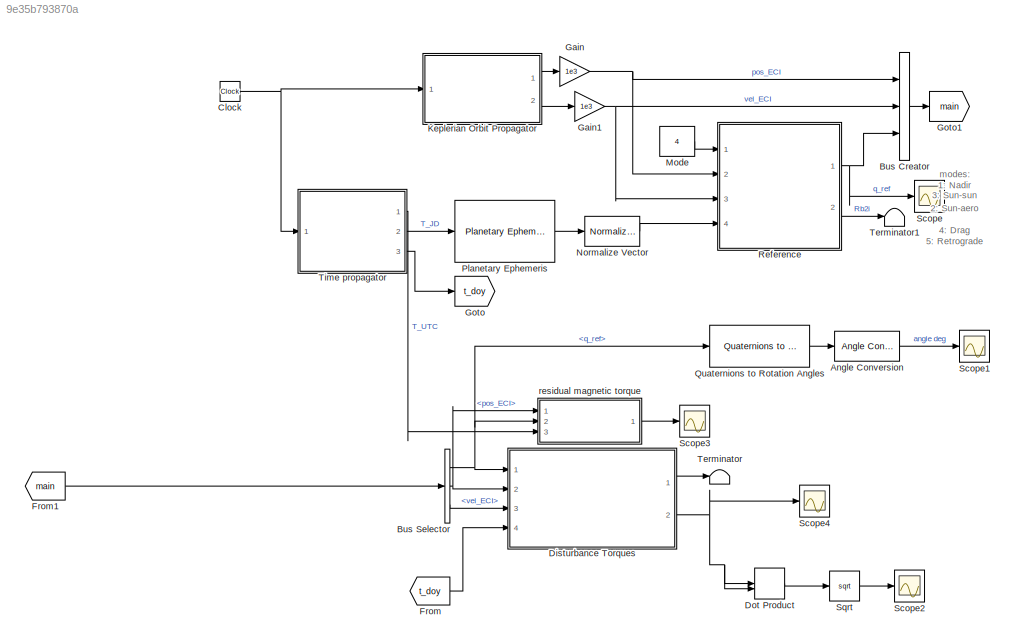
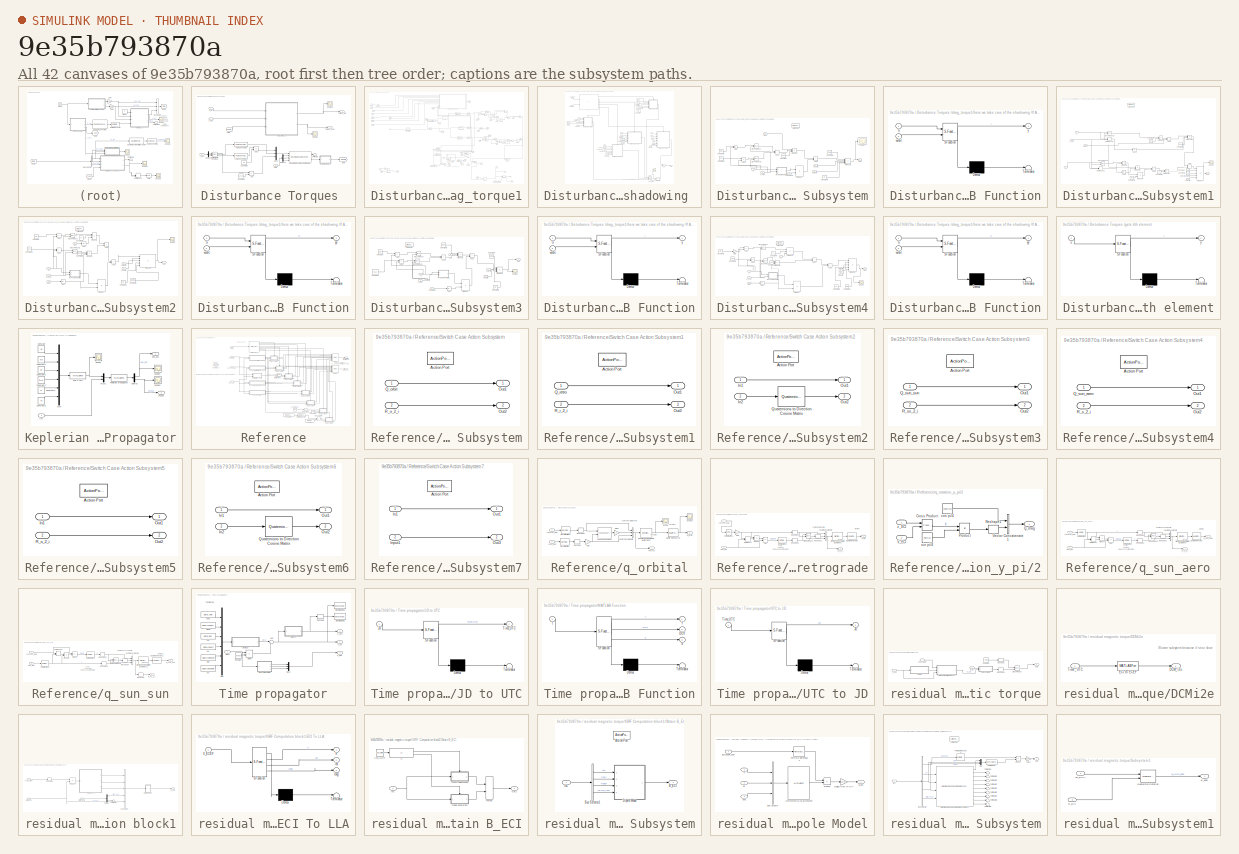
[diagram: thumbnail index - all 42 canvases of the model, root first then tree order]
MODEL slx_9e35b793870a
KIND model
CONFIG AbsTol = auto
CONFIG EnableMultiTasking = off
CONFIG FixedStep = TimeStep
CONFIG MaxStep = auto
CONFIG MinStep = auto
CONFIG RelTol = 1e-3
CONFIG SampleTimeConstraint = Unconstrained
CONFIG SolverName = FixedStepAuto
CONFIG StartTime = 0.0
CONFIG StopTime = t_sim
BLOCK [Reference] Angle Conversion  REF=aerolibconvert2/Angle Conversion
  Ports = [1, 1]
  SourceBlock = aerolibconvert2/Angle Conversion
  SourceProductBaseCode = AE
  SourceType = Angle Conversion
BLOCK [BusCreator] Bus Creator
  DisplayOption = bar
  InheritFromInputs = on
  Inputs = 3
  Ports = [3, 1]
BLOCK [BusSelector] Bus Selector
  OutputSignals = q_ref,pos_ECI,vel_ECI
  Ports = [1, 3]
BLOCK [Clock] Clock
BLOCK [SubSystem] Disturbance Torques 
  Ports = [4, 2]
  RequestExecContextInheritance = off
BLOCK [Sum] Disturbance Torques /Add
  IconShape = rectangular
  Inputs = +-
  Ports = [2, 1]
BLOCK [Sum] Disturbance Torques /Add2
  IconShape = rectangular
  Inputs = -+
  Ports = [2, 1]
BLOCK [Reference] Disturbance Torques /Angle Conversion  REF=aerolibconvert2/Angle Conversion
  Ports = [1, 1]
  SourceBlock = aerolibconvert2/Angle Conversion
  SourceProductBaseCode = AE
  SourceType = Angle Conversion
BLOCK [Reference] Disturbance Torques /Angle Conversion1  REF=aerolibconvert2/Angle Conversion
  Ports = [1, 1]
  SourceBlock = aerolibconvert2/Angle Conversion
  SourceProductBaseCode = AE
  SourceType = Angle Conversion
BLOCK [Reference] Disturbance Torques /Cartesian to Spherical1  REF=simulink_extras/Transformations/Cartesian to
Spherical
  Ports = [3, 3]
  SourceBlock = simulink_extras/Transformations/Cartesian to\nSpherical
  SourceProductBaseCode = SL
  SourceType = Cart2Sph
BLOCK [Constant] Disturbance Torques /Constant2
  Value = 6.371e6
BLOCK [Constant] Disturbance Torques /Constant3
  Value = 90
BLOCK [Inport] Disturbance Torques /DOY
  Port = 4
BLOCK [Demux] Disturbance Torques /Demux1
  Outputs = 3
  Ports = [1, 3]
BLOCK [Demux] Disturbance Torques /Demux2
  Outputs = 3
  Ports = [1, 3]
BLOCK [From] Disturbance Torques /From
  GotoTag = density
BLOCK [Goto] Disturbance Torques /Goto
  GotoTag = density
BLOCK [Mux] Disturbance Torques /Mux2
  DisplayOption = bar
  Inputs = 3
  Ports = [3, 1]
BLOCK [Reference] Disturbance Torques /NRLMSISE-00 Atmosphere Model  REF=aerolibatmos2/NRLMSISE-00
Atmosphere Model
  Ports = [4, 2]
  SourceBlock = aerolibatmos2/NRLMSISE-00\nAtmosphere Model
  SourceProductBaseCode = AE
  SourceType = NRLMSISE-00 Model
BLOCK [Inport] Disturbance Torques /Q_int 
BLOCK [Scope] Disturbance Torques /Scope
  Floating = off
  NumInputPorts = 1
  Ports = [1]
  ScopeSpecificationString = Simulink.scopes.TimeScopeBlockCfg('CurrentConfiguration', extmgr.ConfigurationSet(extmgr.Configuration('Core','General UI',true),extmgr.Configuration('Core','Source UI',true),extmgr.Configuration('Sources','WiredSimulink',true,'DataLoggingVariableName','ScopeData1'),extmgr.Configuration('Visuals','Time Domain',true,'SerializedDisplays',{struct('MinYLimReal','-0.00477','MaxYLimReal','0.00504','YLab...<+1439ch>
BLOCK [Scope] Disturbance Torques /Scope1
  Floating = off
  NumInputPorts = 1
  Ports = [1]
  ScopeSpecificationString = Simulink.scopes.TimeScopeBlockCfg('CurrentConfiguration', extmgr.ConfigurationSet(extmgr.Configuration('Core','General UI',true),extmgr.Configuration('Core','Source UI',true),extmgr.Configuration('Sources','WiredSimulink',true,'DataLoggingVariableName','ScopeData2'),extmgr.Configuration('Visuals','Time Domain',true,'SerializedDisplays',{struct('MinYLimReal','-0.00223','MaxYLimReal','0.00244','YLab...<+1439ch>
BLOCK [Terminator] Disturbance Torques /Terminator
BLOCK [Outport] Disturbance Torques /Torque_EIC 
BLOCK [Outport] Disturbance Torques /Torque_body 
  Port = 2
  VectorParamsAs1DForOutWhenUnconnected = off
BLOCK [Inport] Disturbance Torques /V_ECI
  Port = 3
BLOCK [Inport] Disturbance Torques /X_ECI
  Port = 2
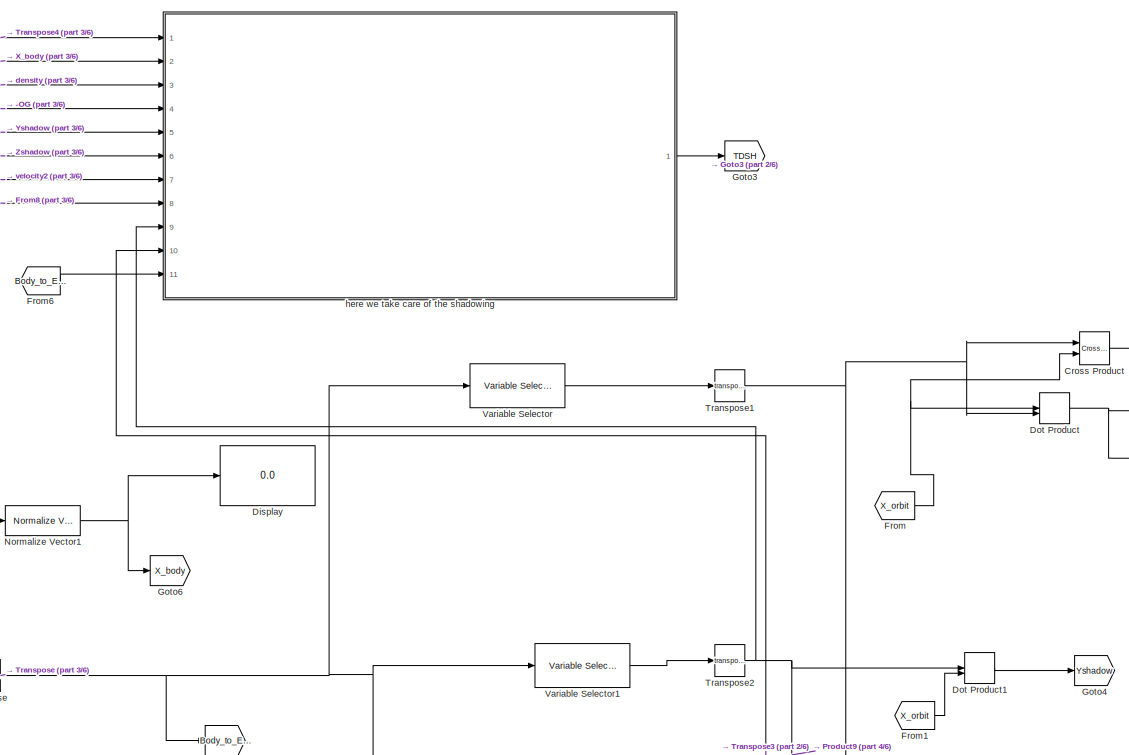
[diagram: Disturbance Torques /drag_torque1 - part 1/6, top center region]
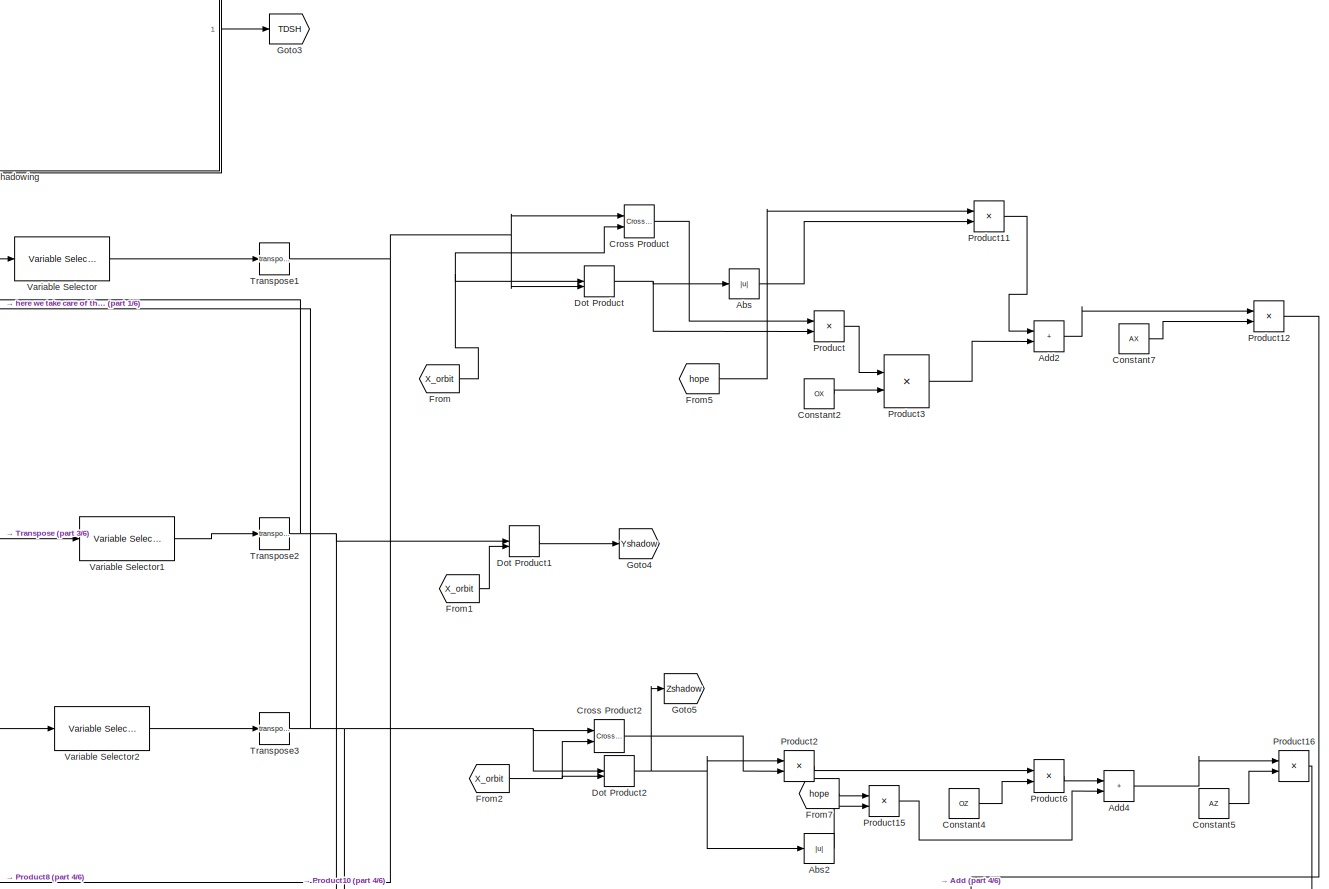
[diagram: Disturbance Torques /drag_torque1 - part 2/6, middle right region]
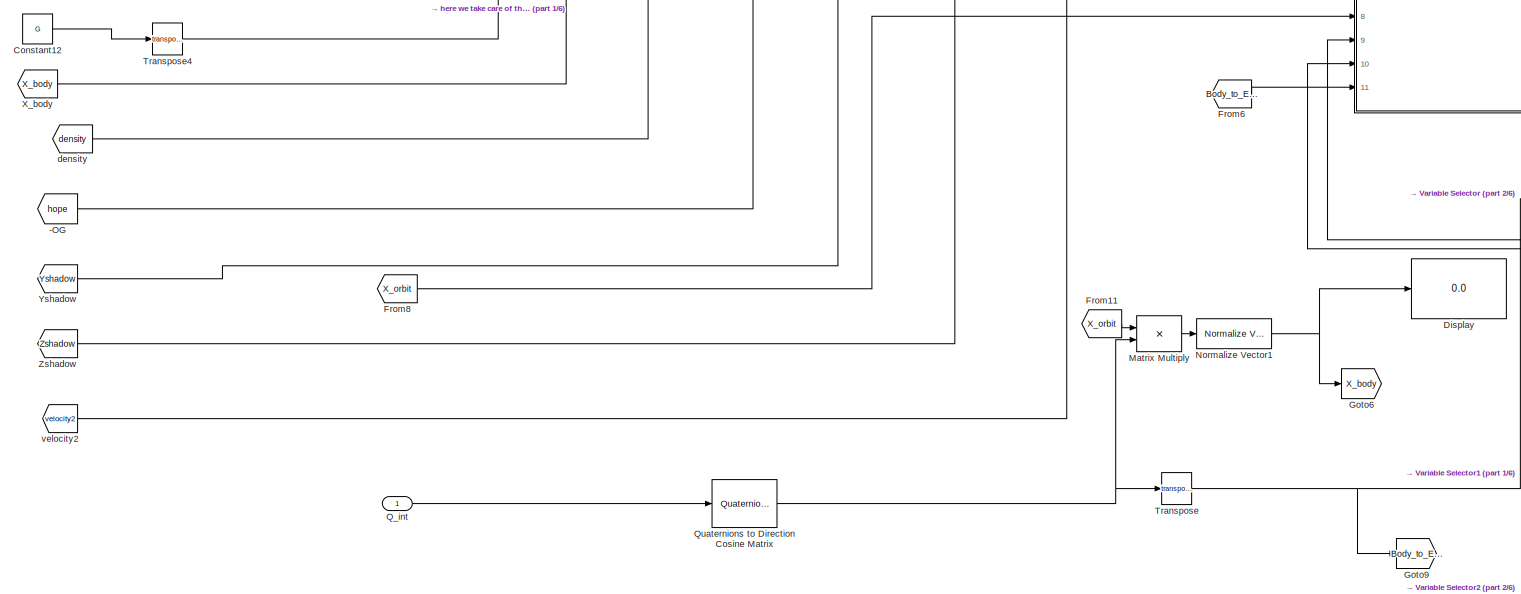
[diagram: Disturbance Torques /drag_torque1 - part 3/6, top left region]
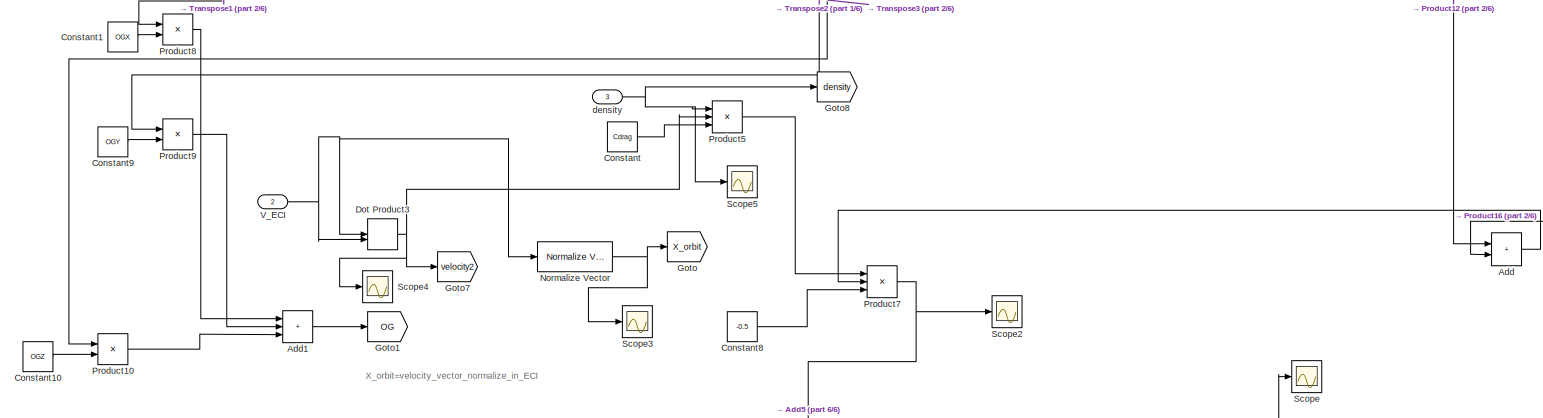
[diagram: Disturbance Torques /drag_torque1 - part 4/6, bottom center region]
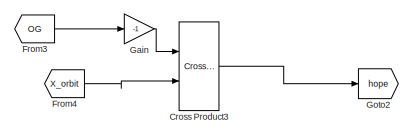
[diagram: Disturbance Torques /drag_torque1 - part 5/6, bottom left region]
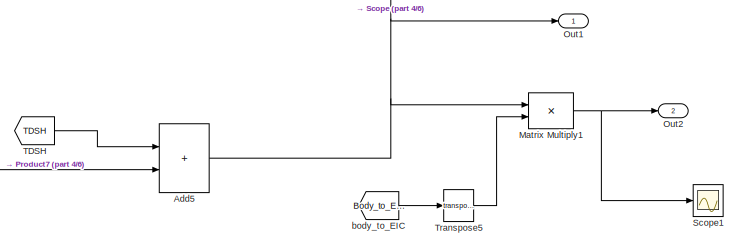
[diagram: Disturbance Torques /drag_torque1 - part 6/6, bottom right region]
BLOCK [SubSystem] Disturbance Torques /drag_torque1
  Ports = [3, 2]
  RequestExecContextInheritance = off
BLOCK [From] Disturbance Torques /drag_torque1/-OG
  GotoTag = hope
BLOCK [Abs] Disturbance Torques /drag_torque1/Abs
  SaturateOnIntegerOverflow = off
BLOCK [Abs] Disturbance Torques /drag_torque1/Abs2
  SaturateOnIntegerOverflow = off
BLOCK [Sum] Disturbance Torques /drag_torque1/Add
  IconShape = rectangular
  Ports = [2, 1]
BLOCK [Sum] Disturbance Torques /drag_torque1/Add1
  IconShape = rectangular
  Inputs = +++
  Ports = [3, 1]
BLOCK [Sum] Disturbance Torques /drag_torque1/Add2
  IconShape = rectangular
  Ports = [2, 1]
BLOCK [Sum] Disturbance Torques /drag_torque1/Add4
  IconShape = rectangular
  Ports = [2, 1]
BLOCK [Sum] Disturbance Torques /drag_torque1/Add5
  IconShape = rectangular
  Ports = [2, 1]
BLOCK [Constant] Disturbance Torques /drag_torque1/Constant
  Value = Cdrag
BLOCK [Constant] Disturbance Torques /drag_torque1/Constant1
  Value = OGX
BLOCK [Constant] Disturbance Torques /drag_torque1/Constant10
  Value = OGZ
BLOCK [Constant] Disturbance Torques /drag_torque1/Constant12
  Value = G
BLOCK [Constant] Disturbance Torques /drag_torque1/Constant2
  Value = OX
BLOCK [Constant] Disturbance Torques /drag_torque1/Constant4
  Value = OZ
BLOCK [Constant] Disturbance Torques /drag_torque1/Constant5
  Value = AZ
BLOCK [Constant] Disturbance Torques /drag_torque1/Constant7
  Value = AX
BLOCK [Constant] Disturbance Torques /drag_torque1/Constant8
  Value = -0.5
BLOCK [Constant] Disturbance Torques /drag_torque1/Constant9
  Value = OGY
BLOCK [Reference] Disturbance Torques /drag_torque1/Cross Product  REF=vrlib/Utilities/Cross Product
  Ports = [2, 1]
  SourceBlock = vrlib/Utilities/Cross Product
  SourceProductBaseCode = SL
  SourceType = Cross Product
BLOCK [Reference] Disturbance Torques /drag_torque1/Cross Product2  REF=vrlib/Utilities/Cross Product
  Ports = [2, 1]
  SourceBlock = vrlib/Utilities/Cross Product
  SourceProductBaseCode = SL
  SourceType = Cross Product
BLOCK [Reference] Disturbance Torques /drag_torque1/Cross Product3  REF=vrlib/Utilities/Cross Product
  Ports = [2, 1]
  SourceBlock = vrlib/Utilities/Cross Product
  SourceProductBaseCode = SL
  SourceType = Cross Product
BLOCK [Display] Disturbance Torques /drag_torque1/Display
  Decimation = 1
  Ports = [1]
BLOCK [DotProduct] Disturbance Torques /drag_torque1/Dot Product
  OutDataTypeStr = Inherit: Inherit via internal rule
BLOCK [DotProduct] Disturbance Torques /drag_torque1/Dot Product1
  OutDataTypeStr = Inherit: Inherit via internal rule
BLOCK [DotProduct] Disturbance Torques /drag_torque1/Dot Product2
  OutDataTypeStr = Inherit: Inherit via internal rule
BLOCK [DotProduct] Disturbance Torques /drag_torque1/Dot Product3
  OutDataTypeStr = Inherit: Inherit via internal rule
BLOCK [From] Disturbance Torques /drag_torque1/From
  GotoTag = X_orbit
BLOCK [From] Disturbance Torques /drag_torque1/From1
  GotoTag = X_orbit
BLOCK [From] Disturbance Torques /drag_torque1/From11
  GotoTag = X_orbit
BLOCK [From] Disturbance Torques /drag_torque1/From2
  GotoTag = X_orbit
BLOCK [From] Disturbance Torques /drag_torque1/From3
  GotoTag = OG
BLOCK [From] Disturbance Torques /drag_torque1/From4
  GotoTag = X_orbit
BLOCK [From] Disturbance Torques /drag_torque1/From5
  GotoTag = hope
BLOCK [From] Disturbance Torques /drag_torque1/From6
  GotoTag = Body_to_EIC
BLOCK [From] Disturbance Torques /drag_torque1/From7
  GotoTag = hope
BLOCK [From] Disturbance Torques /drag_torque1/From8
  GotoTag = X_orbit
BLOCK [Gain] Disturbance Torques /drag_torque1/Gain
  Gain = -1
BLOCK [Goto] Disturbance Torques /drag_torque1/Goto
  GotoTag = X_orbit
BLOCK [Goto] Disturbance Torques /drag_torque1/Goto1
  GotoTag = OG
BLOCK [Goto] Disturbance Torques /drag_torque1/Goto2
  GotoTag = hope
BLOCK [Goto] Disturbance Torques /drag_torque1/Goto3
  GotoTag = TDSH
BLOCK [Goto] Disturbance Torques /drag_torque1/Goto4
  GotoTag = Yshadow
BLOCK [Goto] Disturbance Torques /drag_torque1/Goto5
  GotoTag = Zshadow
BLOCK [Goto] Disturbance Torques /drag_torque1/Goto6
  GotoTag = X_body
BLOCK [Goto] Disturbance Torques /drag_torque1/Goto7
  GotoTag = velocity2
BLOCK [Goto] Disturbance Torques /drag_torque1/Goto8
  GotoTag = density
BLOCK [Goto] Disturbance Torques /drag_torque1/Goto9
  GotoTag = Body_to_EIC
BLOCK [Product] Disturbance Torques /drag_torque1/Matrix Multiply
  Multiplication = Matrix(*)
  Ports = [2, 1]
BLOCK [Product] Disturbance Torques /drag_torque1/Matrix Multiply1
  Multiplication = Matrix(*)
  Ports = [2, 1]
BLOCK [Reference] Disturbance Torques /drag_torque1/Normalize Vector  REF=vrlib/Utilities/Normalize Vector
  Ports = [1, 1]
  SourceBlock = vrlib/Utilities/Normalize Vector
  SourceProductBaseCode = SL
  SourceType = Normalize Vector
BLOCK [Reference] Disturbance Torques /drag_torque1/Normalize Vector1  REF=vrlib/Utilities/Normalize Vector
  Ports = [1, 1]
  SourceBlock = vrlib/Utilities/Normalize Vector
  SourceProductBaseCode = SL
  SourceType = Normalize Vector
BLOCK [Outport] Disturbance Torques /drag_torque1/Out1
  VectorParamsAs1DForOutWhenUnconnected = off
BLOCK [Outport] Disturbance Torques /drag_torque1/Out2
  Port = 2
  VectorParamsAs1DForOutWhenUnconnected = off
BLOCK [Product] Disturbance Torques /drag_torque1/Product
  Ports = [2, 1]
BLOCK [Product] Disturbance Torques /drag_torque1/Product10
  Ports = [2, 1]
BLOCK [Product] Disturbance Torques /drag_torque1/Product11
  Ports = [2, 1]
BLOCK [Product] Disturbance Torques /drag_torque1/Product12
  Ports = [2, 1]
BLOCK [Product] Disturbance Torques /drag_torque1/Product15
  Ports = [2, 1]
BLOCK [Product] Disturbance Torques /drag_torque1/Product16
  Ports = [2, 1]
BLOCK [Product] Disturbance Torques /drag_torque1/Product2
  Ports = [2, 1]
BLOCK [Product] Disturbance Torques /drag_torque1/Product3
  Ports = [2, 1]
BLOCK [Product] Disturbance Torques /drag_torque1/Product5
  Inputs = 3
  Ports = [3, 1]
BLOCK [Product] Disturbance Torques /drag_torque1/Product6
  Ports = [2, 1]
BLOCK [Product] Disturbance Torques /drag_torque1/Product7
  Inputs = 3
  Ports = [3, 1]
BLOCK [Product] Disturbance Torques /drag_torque1/Product8
  Ports = [2, 1]
BLOCK [Product] Disturbance Torques /drag_torque1/Product9
  Ports = [2, 1]
BLOCK [Inport] Disturbance Torques /drag_torque1/Q_int
BLOCK [Reference] Disturbance Torques /drag_torque1/Quaternions to Direction Cosine Matrix  REF=sharedtransform/Quaternions to 
Direction Cosine Matrix
  Ports = [1, 1]
  SourceBlock = sharedtransform/Quaternions to \nDirection Cosine Matrix
  SourceProductBaseCode = AE,PW,MT,UV,VE,VP
  SourceType = Quaternion2DCM
BLOCK [Scope] Disturbance Torques /drag_torque1/Scope
  Floating = off
  NumInputPorts = 1
  Ports = [1]
  ScopeSpecificationString = Simulink.scopes.TimeScopeBlockCfg('CurrentConfiguration', extmgr.ConfigurationSet(extmgr.Configuration('Core','General UI',true),extmgr.Configuration('Core','Source UI',true),extmgr.Configuration('Sources','WiredSimulink',true,'DataLoggingVariableName','ScopeData2'),extmgr.Configuration('Visuals','Time Domain',true,'SerializedDisplays',{struct('MinYLimReal','-0.00000013','MaxYLimReal','0.00000008'...<+1593ch>
BLOCK [Scope] Disturbance Torques /drag_torque1/Scope1
  Floating = off
  NumInputPorts = 1
  Ports = [1]
  ScopeSpecificationString = Simulink.scopes.TimeScopeBlockCfg('CurrentConfiguration', extmgr.ConfigurationSet(extmgr.Configuration('Core','General UI',true),extmgr.Configuration('Core','Source UI',true),extmgr.Configuration('Sources','WiredSimulink',true,'DataLoggingVariableName','ScopeData2'),extmgr.Configuration('Visuals','Time Domain',true,'SerializedDisplays',{struct('MinYLimReal','-0.00000013','MaxYLimReal','0.00000012'...<+1472ch>
BLOCK [Scope] Disturbance Torques /drag_torque1/Scope2
  Floating = off
  NumInputPorts = 1
  Ports = [1]
  ScopeSpecificationString = Simulink.scopes.TimeScopeBlockCfg('CurrentConfiguration', extmgr.ConfigurationSet(extmgr.Configuration('Core','General UI',true),extmgr.Configuration('Core','Source UI',true),extmgr.Configuration('Sources','WiredSimulink',true,'DataLoggingVariableName','ScopeData1'),extmgr.Configuration('Visuals','Time Domain',true,'SerializedDisplays',{struct('MinYLimReal','-0.00000007','MaxYLimReal','0.00000007'...<+1448ch>
BLOCK [Scope] Disturbance Torques /drag_torque1/Scope3
  Floating = off
  NumInputPorts = 1
  Ports = [1]
  ScopeSpecificationString = Simulink.scopes.TimeScopeBlockCfg('CurrentConfiguration', extmgr.ConfigurationSet(extmgr.Configuration('Core','General UI',true),extmgr.Configuration('Core','Source UI',true),extmgr.Configuration('Sources','WiredSimulink',true,'DataLoggingVariableName','ScopeData1'),extmgr.Configuration('Visuals','Time Domain',true,'SerializedDisplays',{struct('MinYLimReal','-1.24483','MaxYLimReal','1.24483','YLab...<+1419ch>
BLOCK [Scope] Disturbance Torques /drag_torque1/Scope4
  Floating = off
  NumInputPorts = 1
  Ports = [1]
  ScopeSpecificationString = Simulink.scopes.TimeScopeBlockCfg('CurrentConfiguration', extmgr.ConfigurationSet(extmgr.Configuration('Core','General UI',true),extmgr.Configuration('Core','Source UI',true),extmgr.Configuration('Sources','WiredSimulink',true,'DataLoggingVariableName','ScopeData1'),extmgr.Configuration('Visuals','Time Domain',true,'SerializedDisplays',{struct('MinYLimReal','59779183.50734','MaxYLimReal','59810309...<+1442ch>
BLOCK [Scope] Disturbance Torques /drag_torque1/Scope5
  Floating = off
  NumInputPorts = 1
  Ports = [1]
  ScopeSpecificationString = Simulink.scopes.TimeScopeBlockCfg('CurrentConfiguration', extmgr.ConfigurationSet(extmgr.Configuration('Core','General UI',true),extmgr.Configuration('Core','Source UI',true),extmgr.Configuration('Sources','WiredSimulink',true,'DataLoggingVariableName','ScopeData1'),extmgr.Configuration('Visuals','Time Domain',true,'SerializedDisplays',{struct('MinYLimReal','0.0000000000283','MaxYLimReal','0.00000...<+1430ch>
BLOCK [From] Disturbance Torques /drag_torque1/TDSH
  GotoTag = TDSH
BLOCK [Math] Disturbance Torques /drag_torque1/Transpose
  Operator = transpose
  Ports = [1, 1]
  SignedPower = on
BLOCK [Math] Disturbance Torques /drag_torque1/Transpose1
  Operator = transpose
  Ports = [1, 1]
  SignedPower = on
BLOCK [Math] Disturbance Torques /drag_torque1/Transpose2
  Operator = transpose
  Ports = [1, 1]
  SignedPower = on
BLOCK [Math] Disturbance Torques /drag_torque1/Transpose3
  Operator = transpose
  Ports = [1, 1]
  SignedPower = on
BLOCK [Math] Disturbance Torques /drag_torque1/Transpose4
  Operator = transpose
  Ports = [1, 1]
  SignedPower = on
BLOCK [Math] Disturbance Torques /drag_torque1/Transpose5
  Operator = transpose
  Ports = [1, 1]
  SignedPower = on
BLOCK [Inport] Disturbance Torques /drag_torque1/V_ECI
  Port = 2
BLOCK [Reference] Disturbance Torques /drag_torque1/Variable Selector  REF=dspindex/Variable
Selector
  Ports = [1, 1]
  SourceBlock = dspindex/Variable\nSelector
  SourceProductBaseCode = DS
  SourceType = Variable Selector
BLOCK [Reference] Disturbance Torques /drag_torque1/Variable Selector1  REF=dspindex/Variable
Selector
  Ports = [1, 1]
  SourceBlock = dspindex/Variable\nSelector
  SourceProductBaseCode = DS
  SourceType = Variable Selector
BLOCK [Reference] Disturbance Torques /drag_torque1/Variable Selector2  REF=dspindex/Variable
Selector
  Ports = [1, 1]
  SourceBlock = dspindex/Variable\nSelector
  SourceProductBaseCode = DS
  SourceType = Variable Selector
BLOCK [From] Disturbance Torques /drag_torque1/X_body
  GotoTag = X_body
BLOCK [From] Disturbance Torques /drag_torque1/Yshadow
  GotoTag = Yshadow
BLOCK [From] Disturbance Torques /drag_torque1/Zshadow
  GotoTag = Zshadow
BLOCK [From] Disturbance Torques /drag_torque1/body_to_EIC 
  GotoTag = Body_to_EIC
BLOCK [From] Disturbance Torques /drag_torque1/density
  GotoTag = density
BLOCK [Inport] Disturbance Torques /drag_torque1/density 
  Port = 3
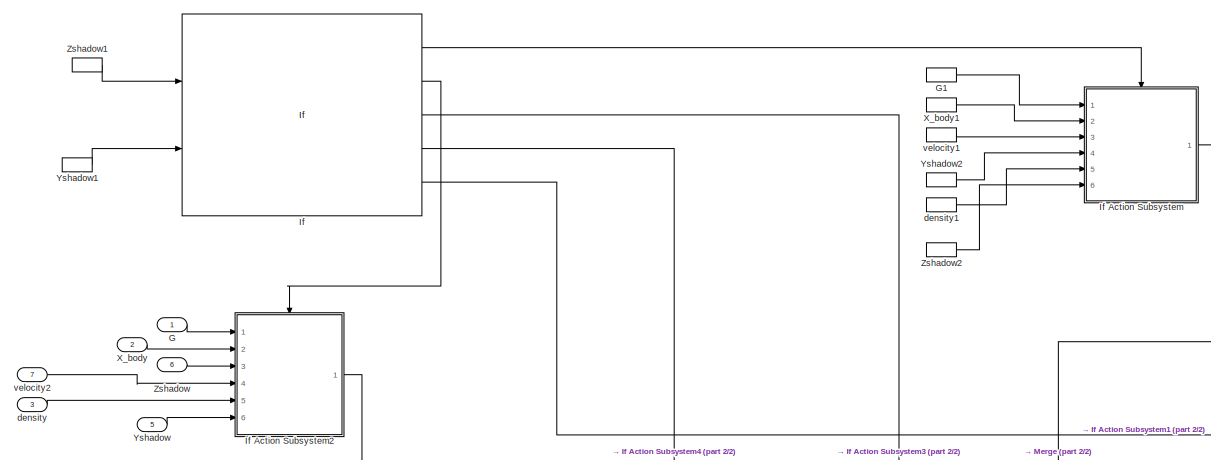
[diagram: Disturbance Torques /drag_torque1/here we take care of the shadowing  - part 1/2, full width, top band]
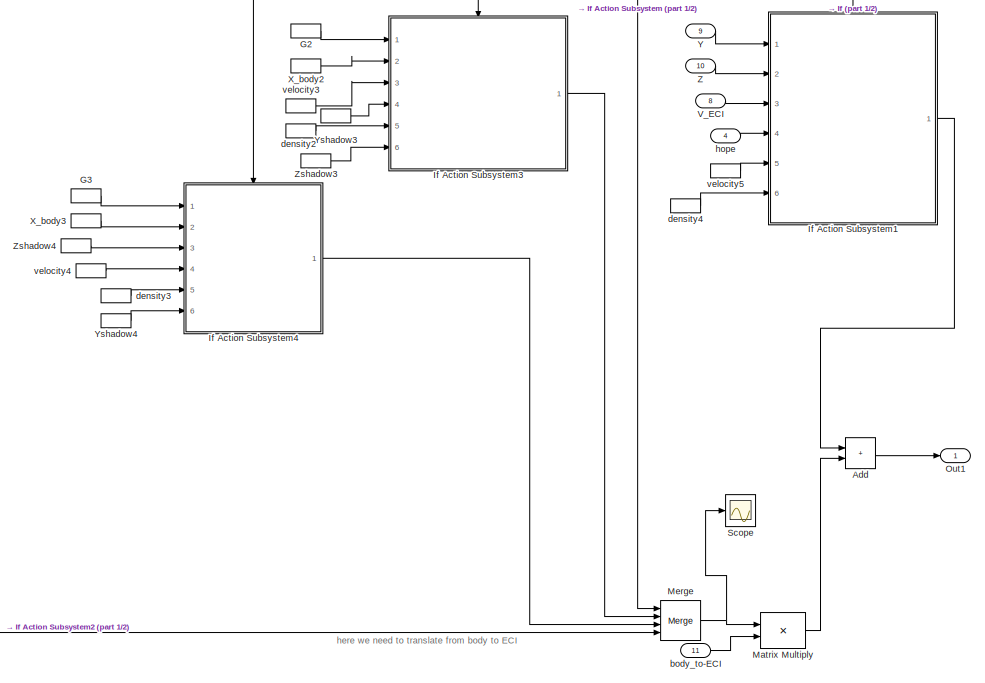
[diagram: Disturbance Torques /drag_torque1/here we take care of the shadowing  - part 2/2, bottom center region]
BLOCK [SubSystem] Disturbance Torques /drag_torque1/here we take care of the shadowing 
  Ports = [11, 1]
  RequestExecContextInheritance = off
BLOCK [Sum] Disturbance Torques /drag_torque1/here we take care of the shadowing /Add
  IconShape = rectangular
  Ports = [2, 1]
BLOCK [Inport] Disturbance Torques /drag_torque1/here we take care of the shadowing /G
BLOCK [InportShadow] Disturbance Torques /drag_torque1/here we take care of the shadowing /G1
BLOCK [InportShadow] Disturbance Torques /drag_torque1/here we take care of the shadowing /G2
BLOCK [InportShadow] Disturbance Torques /drag_torque1/here we take care of the shadowing /G3
BLOCK [If] Disturbance Torques /drag_torque1/here we take care of the shadowing /If
  ElseIfExpressions = u1<-1e-6&u2<-1e-6,u1>1e-6&u2<-1e-6,u1<-1e-6&u2>1e-6
  IfExpression = u1 > 1e-6&u2>1e-6
  NumInputs = 2
  Ports = [2, 5]
BLOCK [SubSystem] Disturbance Torques /drag_torque1/here we take care of the shadowing /If Action Subsystem
  Ports = [6, 1, 0, 0, 0, 0, 0, 1]
  RequestExecContextInheritance = off
  TreatAsAtomicUnit = on
BLOCK [ActionPort] Disturbance Torques /drag_torque1/here we take care of the shadowing /If Action Subsystem/Action Port
  ActionPortLabel = if(u1 > 1e-6&u2>1e-6)
BLOCK [Sum] Disturbance Torques /drag_torque1/here we take care of the shadowing /If Action Subsystem/Add
  IconShape = rectangular
  Inputs = +-
  Ports = [2, 1]
BLOCK [Sum] Disturbance Torques /drag_torque1/here we take care of the shadowing /If Action Subsystem/Add1
  IconShape = rectangular
  Inputs = +-
  Ports = [2, 1]
BLOCK [Sum] Disturbance Torques /drag_torque1/here we take care of the shadowing /If Action Subsystem/Add2
  IconShape = rectangular
  Ports = [2, 1]
BLOCK [Sum] Disturbance Torques /drag_torque1/here we take care of the shadowing /If Action Subsystem/Add3
  IconShape = rectangular
  Ports = [2, 1]
BLOCK [Constant] Disturbance Torques /drag_torque1/here we take care of the shadowing /If Action Subsystem/Constant
  Value = ESS
BLOCK [Constant] Disturbance Torques /drag_torque1/here we take care of the shadowing /If Action Subsystem/Constant1
  Value = CRS
BLOCK [Constant] Disturbance Torques /drag_torque1/here we take care of the shadowing /If Action Subsystem/Constant2
  Value = CLS
BLOCK [Constant] Disturbance Torques /drag_torque1/here we take care of the shadowing /If Action Subsystem/Constant3
  Value = -0.5
BLOCK [Constant] Disturbance Torques /drag_torque1/here we take care of the shadowing /If Action Subsystem/Constant4
  Value = Cdrag
BLOCK [Reference] Disturbance Torques /drag_torque1/here we take care of the shadowing /If Action Subsystem/Cross Product  REF=vrlib/Utilities/Cross Product
  Ports = [2, 1]
  SourceBlock = vrlib/Utilities/Cross Product
  SourceProductBaseCode = SL
  SourceType = Cross Product
BLOCK [Reference] Disturbance Torques /drag_torque1/here we take care of the shadowing /If Action Subsystem/Cross Product1  REF=vrlib/Utilities/Cross Product
  Ports = [2, 1]
  SourceBlock = vrlib/Utilities/Cross Product
  SourceProductBaseCode = SL
  SourceType = Cross Product
BLOCK [Inport] Disturbance Torques /drag_torque1/here we take care of the shadowing /If Action Subsystem/G
BLOCK [SubSystem] Disturbance Torques /drag_torque1/here we take care of the shadowing /If Action Subsystem/MATLAB Function
  ErrorFcn = Stateflow.Translate.translate
  PermitHierarchicalResolution = ExplicitOnly
  Ports = [2, 1]
  RequestExecContextInheritance = off
  SFBlockType = MATLAB Function
  TreatAsAtomicUnit = on
BLOCK [Demux] Disturbance Torques /drag_torque1/here we take care of the shadowing /If Action Subsystem/MATLAB Function/ Demux 
  Outputs = 1
  Ports = [1, 1]
BLOCK [S-Function] Disturbance Torques /drag_torque1/here we take care of the shadowing /If Action Subsystem/MATLAB Function/ SFunction 
  EnableBusSupport = on
  FunctionName = sf_sfun
  PortCounts = [2 2]
  Ports = [2, 2]
  SFcnIsStateOwnerBlock = off
  SFunctionDeploymentMode = off
  Tag = Stateflow S-Function 2
BLOCK [Terminator] Disturbance Torques /drag_torque1/here we take care of the shadowing /If Action Subsystem/MATLAB Function/ Terminator 
BLOCK [Inport] Disturbance Torques /drag_torque1/here we take care of the shadowing /If Action Subsystem/MATLAB Function/G
BLOCK [Inport] Disturbance Torques /drag_torque1/here we take care of the shadowing /If Action Subsystem/MATLAB Function/vorbit
  Port = 2
BLOCK [Outport] Disturbance Torques /drag_torque1/here we take care of the shadowing /If Action Subsystem/MATLAB Function/y
  VectorParamsAs1DForOutWhenUnconnected = off
BLOCK [Outport] Disturbance Torques /drag_torque1/here we take care of the shadowing /If Action Subsystem/Out1
  VectorParamsAs1DForOutWhenUnconnected = off
BLOCK [Product] Disturbance Torques /drag_torque1/here we take care of the shadowing /If Action Subsystem/Product
  Ports = [2, 1]
BLOCK [Product] Disturbance Torques /drag_torque1/here we take care of the shadowing /If Action Subsystem/Product1
  Inputs = 3
  Ports = [3, 1]
BLOCK [Product] Disturbance Torques /drag_torque1/here we take care of the shadowing /If Action Subsystem/Product2
  Inputs = 5
  Ports = [5, 1]
BLOCK [Scope] Disturbance Torques /drag_torque1/here we take care of the shadowing /If Action Subsystem/Scope
  Floating = off
  NumInputPorts = 1
  Ports = [1]
  ScopeSpecificationString = Simulink.scopes.TimeScopeBlockCfg('CurrentConfiguration', extmgr.ConfigurationSet(extmgr.Configuration('Core','General UI',true),extmgr.Configuration('Core','Source UI',true),extmgr.Configuration('Sources','WiredSimulink',true,'DataLoggingVariableName','ScopeData3'),extmgr.Configuration('Visuals','Time Domain',true,'SerializedDisplays',{struct('MinYLimReal','-0.000000000000000008','MaxYLimReal','0...<+1499ch>
BLOCK [Inport] Disturbance Torques /drag_torque1/here we take care of the shadowing /If Action Subsystem/X_orbit
  Port = 2
BLOCK [Inport] Disturbance Torques /drag_torque1/here we take care of the shadowing /If Action Subsystem/Yshadow
  Port = 4
BLOCK [Inport] Disturbance Torques /drag_torque1/here we take care of the shadowing /If Action Subsystem/Zsh 
  Port = 6
BLOCK [Inport] Disturbance Torques /drag_torque1/here we take care of the shadowing /If Action Subsystem/density
  Port = 5
BLOCK [Inport] Disturbance Torques /drag_torque1/here we take care of the shadowing /If Action Subsystem/velocity
  NameLocation = top
  Port = 3
BLOCK [SubSystem] Disturbance Torques /drag_torque1/here we take care of the shadowing /If Action Subsystem1
  Ports = [6, 1, 0, 0, 0, 0, 0, 1]
  RequestExecContextInheritance = off
  TreatAsAtomicUnit = on
BLOCK [Abs] Disturbance Torques /drag_torque1/here we take care of the shadowing /If Action Subsystem1/Abs1
  SaturateOnIntegerOverflow = off
BLOCK [Abs] Disturbance Torques /drag_torque1/here we take care of the shadowing /If Action Subsystem1/Abs2
  SaturateOnIntegerOverflow = off
BLOCK [ActionPort] Disturbance Torques /drag_torque1/here we take care of the shadowing /If Action Subsystem1/Action Port
  ActionPortLabel = else
BLOCK [Sum] Disturbance Torques /drag_torque1/here we take care of the shadowing /If Action Subsystem1/Add
  IconShape = rectangular
  Ports = [2, 1]
BLOCK [Sum] Disturbance Torques /drag_torque1/here we take care of the shadowing /If Action Subsystem1/Add3
  IconShape = rectangular
  Ports = [2, 1]
BLOCK [Sum] Disturbance Torques /drag_torque1/here we take care of the shadowing /If Action Subsystem1/Add4
  IconShape = rectangular
  Ports = [2, 1]
BLOCK [Constant] Disturbance Torques /drag_torque1/here we take care of the shadowing /If Action Subsystem1/Constant
  Value = Cdrag
BLOCK [Constant] Disturbance Torques /drag_torque1/here we take care of the shadowing /If Action Subsystem1/Constant1
  Value = -0.5
BLOCK [Constant] Disturbance Torques /drag_torque1/here we take care of the shadowing /If Action Subsystem1/Constant3
  Value = OY
BLOCK [Constant] Disturbance Torques /drag_torque1/here we take care of the shadowing /If Action Subsystem1/Constant4
  Value = OZ
BLOCK [Constant] Disturbance Torques /drag_torque1/here we take care of the shadowing /If Action Subsystem1/Constant5
  Value = AZES
BLOCK [Constant] Disturbance Torques /drag_torque1/here we take care of the shadowing /If Action Subsystem1/Constant6
  Value = AY
BLOCK [Reference] Disturbance Torques /drag_torque1/here we take care of the shadowing /If Action Subsystem1/Cross Product1  REF=vrlib/Utilities/Cross Product
  Ports = [2, 1]
  SourceBlock = vrlib/Utilities/Cross Product
  SourceProductBaseCode = SL
  SourceType = Cross Product
BLOCK [Reference] Disturbance Torques /drag_torque1/here we take care of the shadowing /If Action Subsystem1/Cross Product2  REF=vrlib/Utilities/Cross Product
  Ports = [2, 1]
  SourceBlock = vrlib/Utilities/Cross Product
  SourceProductBaseCode = SL
  SourceType = Cross Product
BLOCK [DotProduct] Disturbance Torques /drag_torque1/here we take care of the shadowing /If Action Subsystem1/Dot Product1
  OutDataTypeStr = Inherit: Inherit via internal rule
BLOCK [DotProduct] Disturbance Torques /drag_torque1/here we take care of the shadowing /If Action Subsystem1/Dot Product2
  OutDataTypeStr = Inherit: Inherit via internal rule
BLOCK [Outport] Disturbance Torques /drag_torque1/here we take care of the shadowing /If Action Subsystem1/Out1
  VectorParamsAs1DForOutWhenUnconnected = off
BLOCK [Product] Disturbance Torques /drag_torque1/here we take care of the shadowing /If Action Subsystem1/Product
  Inputs = 5
  Ports = [5, 1]
BLOCK [Product] Disturbance Torques /drag_torque1/here we take care of the shadowing /If Action Subsystem1/Product1
  Ports = [2, 1]
BLOCK [Product] Disturbance Torques /drag_torque1/here we take care of the shadowing /If Action Subsystem1/Product13
  Ports = [2, 1]
BLOCK [Product] Disturbance Torques /drag_torque1/here we take care of the shadowing /If Action Subsystem1/Product14
  Ports = [2, 1]
BLOCK [Product] Disturbance Torques /drag_torque1/here we take care of the shadowing /If Action Subsystem1/Product16
  Inputs = 3
  Ports = [3, 1]
BLOCK [Product] Disturbance Torques /drag_torque1/here we take care of the shadowing /If Action Subsystem1/Product4
  Ports = [2, 1]
BLOCK [Product] Disturbance Torques /drag_torque1/here we take care of the shadowing /If Action Subsystem1/Product6
  Ports = [2, 1]
BLOCK [Scope] Disturbance Torques /drag_torque1/here we take care of the shadowing /If Action Subsystem1/Scope
  Floating = off
  NumInputPorts = 1
  Ports = [1]
  ScopeSpecificationString = Simulink.scopes.TimeScopeBlockCfg('CurrentConfiguration', extmgr.ConfigurationSet(extmgr.Configuration('Core','General UI',true),extmgr.Configuration('Core','Source UI',true),extmgr.Configuration('Sources','WiredSimulink',true,'DataLoggingVariableName','ScopeData6'),extmgr.Configuration('Visuals','Time Domain',true),extmgr.Configuration('Tools','Plot Navigation',true),extmgr.Configuration('Tools',...<+40ch>
BLOCK [Inport] Disturbance Torques /drag_torque1/here we take care of the shadowing /If Action Subsystem1/V_ECI
  Port = 3
BLOCK [Inport] Disturbance Torques /drag_torque1/here we take care of the shadowing /If Action Subsystem1/Y
BLOCK [Inport] Disturbance Torques /drag_torque1/here we take care of the shadowing /If Action Subsystem1/Z 
  Port = 2
BLOCK [Inport] Disturbance Torques /drag_torque1/here we take care of the shadowing /If Action Subsystem1/density
  Port = 6
BLOCK [Inport] Disturbance Torques /drag_torque1/here we take care of the shadowing /If Action Subsystem1/hope
  Port = 4
BLOCK [Inport] Disturbance Torques /drag_torque1/here we take care of the shadowing /If Action Subsystem1/velocity
  Port = 5
BLOCK [SubSystem] Disturbance Torques /drag_torque1/here we take care of the shadowing /If Action Subsystem2
  Ports = [6, 1, 0, 0, 0, 0, 0, 1]
  RequestExecContextInheritance = off
  TreatAsAtomicUnit = on
BLOCK [Abs] Disturbance Torques /drag_torque1/here we take care of the shadowing /If Action Subsystem2/Abs
  SaturateOnIntegerOverflow = off
BLOCK [Abs] Disturbance Torques /drag_torque1/here we take care of the shadowing /If Action Subsystem2/Abs1
  SaturateOnIntegerOverflow = off
BLOCK [ActionPort] Disturbance Torques /drag_torque1/here we take care of the shadowing /If Action Subsystem2/Action Port
  ActionPortLabel = elseif(u1<-1e-6&u2<-1e-6)
BLOCK [Sum] Disturbance Torques /drag_torque1/here we take care of the shadowing /If Action Subsystem2/Add
  IconShape = rectangular
  Inputs = +-
  Ports = [2, 1]
BLOCK [Sum] Disturbance Torques /drag_torque1/here we take care of the shadowing /If Action Subsystem2/Add1
  IconShape = rectangular
  Inputs = +-
  Ports = [2, 1]
BLOCK [Sum] Disturbance Torques /drag_torque1/here we take care of the shadowing /If Action Subsystem2/Add2
  IconShape = rectangular
  Ports = [2, 1]
BLOCK [Sum] Disturbance Torques /drag_torque1/here we take care of the shadowing /If Action Subsystem2/Add3
  IconShape = rectangular
  Ports = [2, 1]
BLOCK [Constant] Disturbance Torques /drag_torque1/here we take care of the shadowing /If Action Subsystem2/Constant
  Value = Cmy
BLOCK [Constant] Disturbance Torques /drag_torque1/here we take care of the shadowing /If Action Subsystem2/Constant1
  Value = CLS
BLOCK [Constant] Disturbance Torques /drag_torque1/here we take care of the shadowing /If Action Subsystem2/Constant2
  Value = ESS
BLOCK [Constant] Disturbance Torques /drag_torque1/here we take care of the shadowing /If Action Subsystem2/Constant3
  Value = AY
BLOCK [Constant] Disturbance Torques /drag_torque1/here we take care of the shadowing /If Action Subsystem2/Constant4
  Value = -0.5
BLOCK [Constant] Disturbance Torques /drag_torque1/here we take care of the shadowing /If Action Subsystem2/Constant5
  Value = Cdrag
BLOCK [Reference] Disturbance Torques /drag_torque1/here we take care of the shadowing /If Action Subsystem2/Cross Product  REF=vrlib/Utilities/Cross Product
  Ports = [2, 1]
  SourceBlock = vrlib/Utilities/Cross Product
  SourceProductBaseCode = SL
  SourceType = Cross Product
BLOCK [Reference] Disturbance Torques /drag_torque1/here we take care of the shadowing /If Action Subsystem2/Cross Product1  REF=vrlib/Utilities/Cross Product
  Ports = [2, 1]
  SourceBlock = vrlib/Utilities/Cross Product
  SourceProductBaseCode = SL
  SourceType = Cross Product
BLOCK [Inport] Disturbance Torques /drag_torque1/here we take care of the shadowing /If Action Subsystem2/G
BLOCK [SubSystem] Disturbance Torques /drag_torque1/here we take care of the shadowing /If Action Subsystem2/MATLAB Function
  ErrorFcn = Stateflow.Translate.translate
  PermitHierarchicalResolution = ExplicitOnly
  Ports = [2, 1]
  RequestExecContextInheritance = off
  SFBlockType = MATLAB Function
  TreatAsAtomicUnit = on
BLOCK [Demux] Disturbance Torques /drag_torque1/here we take care of the shadowing /If Action Subsystem2/MATLAB Function/ Demux 
  Outputs = 1
  Ports = [1, 1]
BLOCK [S-Function] Disturbance Torques /drag_torque1/here we take care of the shadowing /If Action Subsystem2/MATLAB Function/ SFunction 
  EnableBusSupport = on
  FunctionName = sf_sfun
  PortCounts = [2 2]
  Ports = [2, 2]
  SFcnIsStateOwnerBlock = off
  SFunctionDeploymentMode = off
  Tag = Stateflow S-Function 3
BLOCK [Terminator] Disturbance Torques /drag_torque1/here we take care of the shadowing /If Action Subsystem2/MATLAB Function/ Terminator 
BLOCK [Inport] Disturbance Torques /drag_torque1/here we take care of the shadowing /If Action Subsystem2/MATLAB Function/G
BLOCK [Inport] Disturbance Torques /drag_torque1/here we take care of the shadowing /If Action Subsystem2/MATLAB Function/vorbit
  Port = 2
BLOCK [Outport] Disturbance Torques /drag_torque1/here we take care of the shadowing /If Action Subsystem2/MATLAB Function/yy
  VectorParamsAs1DForOutWhenUnconnected = off
BLOCK [Outport] Disturbance Torques /drag_torque1/here we take care of the shadowing /If Action Subsystem2/Out1
  VectorParamsAs1DForOutWhenUnconnected = off
BLOCK [Product] Disturbance Torques /drag_torque1/here we take care of the shadowing /If Action Subsystem2/Product
  Ports = [2, 1]
BLOCK [Product] Disturbance Torques /drag_torque1/here we take care of the shadowing /If Action Subsystem2/Product1
  Inputs = 3
  Ports = [3, 1]
BLOCK [Product] Disturbance Torques /drag_torque1/here we take care of the shadowing /If Action Subsystem2/Product2
  Inputs = 3
  Ports = [3, 1]
BLOCK [Product] Disturbance Torques /drag_torque1/here we take care of the shadowing /If Action Subsystem2/Product3
  Inputs = 5
  Ports = [5, 1]
BLOCK [Scope] Disturbance Torques /drag_torque1/here we take care of the shadowing /If Action Subsystem2/Scope
  Floating = off
  NumInputPorts = 1
  Ports = [1]
  ScopeSpecificationString = Simulink.scopes.TimeScopeBlockCfg('CurrentConfiguration', extmgr.ConfigurationSet(extmgr.Configuration('Core','General UI',true),extmgr.Configuration('Core','Source UI',true),extmgr.Configuration('Sources','WiredSimulink',true,'DataLoggingVariableName','ScopeData2','DataLoggingSaveFormat','Array','DataLoggingLimitDataPoints',true,'DataLoggingDecimation','1'),extmgr.Configuration('Visuals','Time Do...<+1798ch>
BLOCK [Inport] Disturbance Torques /drag_torque1/here we take care of the shadowing /If Action Subsystem2/X_body
  Port = 2
BLOCK [Inport] Disturbance Torques /drag_torque1/here we take care of the shadowing /If Action Subsystem2/Ysh
  Port = 6
BLOCK [Inport] Disturbance Torques /drag_torque1/here we take care of the shadowing /If Action Subsystem2/Zsh
  Port = 3
BLOCK [Inport] Disturbance Torques /drag_torque1/here we take care of the shadowing /If Action Subsystem2/density
  Port = 5
BLOCK [Inport] Disturbance Torques /drag_torque1/here we take care of the shadowing /If Action Subsystem2/velocity
  Port = 4
BLOCK [SubSystem] Disturbance Torques /drag_torque1/here we take care of the shadowing /If Action Subsystem3
  Ports = [6, 1, 0, 0, 0, 0, 0, 1]
  RequestExecContextInheritance = off
  TreatAsAtomicUnit = on
BLOCK [Abs] Disturbance Torques /drag_torque1/here we take care of the shadowing /If Action Subsystem3/Abs
  SaturateOnIntegerOverflow = off
BLOCK [ActionPort] Disturbance Torques /drag_torque1/here we take care of the shadowing /If Action Subsystem3/Action Port
  ActionPortLabel = elseif(u1>1e-6&u2<-1e-6)
BLOCK [Sum] Disturbance Torques /drag_torque1/here we take care of the shadowing /If Action Subsystem3/Add
  IconShape = rectangular
  Inputs = +-
  Ports = [2, 1]
BLOCK [Sum] Disturbance Torques /drag_torque1/here we take care of the shadowing /If Action Subsystem3/Add1
  IconShape = rectangular
  Inputs = +-
  Ports = [2, 1]
BLOCK [Sum] Disturbance Torques /drag_torque1/here we take care of the shadowing /If Action Subsystem3/Add2
  IconShape = rectangular
  Ports = [2, 1]
BLOCK [Sum] Disturbance Torques /drag_torque1/here we take care of the shadowing /If Action Subsystem3/Add3
  IconShape = rectangular
  Ports = [2, 1]
BLOCK [Constant] Disturbance Torques /drag_torque1/here we take care of the shadowing /If Action Subsystem3/Constant
  Value = CRS
BLOCK [Constant] Disturbance Torques /drag_torque1/here we take care of the shadowing /If Action Subsystem3/Constant1
  SampleTime = -1
  Value = CLS
  VectorParams1D = off
BLOCK [Constant] Disturbance Torques /drag_torque1/here we take care of the shadowing /If Action Subsystem3/Constant2
  Value = ESS
BLOCK [Constant] Disturbance Torques /drag_torque1/here we take care of the shadowing /If Action Subsystem3/Constant3
  Value = -0.5
BLOCK [Constant] Disturbance Torques /drag_torque1/here we take care of the shadowing /If Action Subsystem3/Constant4
  Value = Cdrag
BLOCK [Reference] Disturbance Torques /drag_torque1/here we take care of the shadowing /If Action Subsystem3/Cross Product  REF=vrlib/Utilities/Cross Product
  Ports = [2, 1]
  SourceBlock = vrlib/Utilities/Cross Product
  SourceProductBaseCode = SL
  SourceType = Cross Product
BLOCK [Reference] Disturbance Torques /drag_torque1/here we take care of the shadowing /If Action Subsystem3/Cross Product1  REF=vrlib/Utilities/Cross Product
  Ports = [2, 1]
  SourceBlock = vrlib/Utilities/Cross Product
  SourceProductBaseCode = SL
  SourceType = Cross Product
BLOCK [Inport] Disturbance Torques /drag_torque1/here we take care of the shadowing /If Action Subsystem3/G
BLOCK [SubSystem] Disturbance Torques /drag_torque1/here we take care of the shadowing /If Action Subsystem3/MATLAB Function
  ErrorFcn = Stateflow.Translate.translate
  PermitHierarchicalResolution = ExplicitOnly
  Ports = [2, 1]
  RequestExecContextInheritance = off
  SFBlockType = MATLAB Function
  TreatAsAtomicUnit = on
BLOCK [Demux] Disturbance Torques /drag_torque1/here we take care of the shadowing /If Action Subsystem3/MATLAB Function/ Demux 
  Outputs = 1
  Ports = [1, 1]
BLOCK [S-Function] Disturbance Torques /drag_torque1/here we take care of the shadowing /If Action Subsystem3/MATLAB Function/ SFunction 
  EnableBusSupport = on
  FunctionName = sf_sfun
  PortCounts = [2 2]
  Ports = [2, 2]
  SFcnIsStateOwnerBlock = off
  SFunctionDeploymentMode = off
  Tag = Stateflow S-Function 5
BLOCK [Terminator] Disturbance Torques /drag_torque1/here we take care of the shadowing /If Action Subsystem3/MATLAB Function/ Terminator 
BLOCK [Inport] Disturbance Torques /drag_torque1/here we take care of the shadowing /If Action Subsystem3/MATLAB Function/G
BLOCK [Inport] Disturbance Torques /drag_torque1/here we take care of the shadowing /If Action Subsystem3/MATLAB Function/vorbit
  Port = 2
BLOCK [Outport] Disturbance Torques /drag_torque1/here we take care of the shadowing /If Action Subsystem3/MATLAB Function/y
  VectorParamsAs1DForOutWhenUnconnected = off
BLOCK [Outport] Disturbance Torques /drag_torque1/here we take care of the shadowing /If Action Subsystem3/Out1
  VectorParamsAs1DForOutWhenUnconnected = off
BLOCK [Product] Disturbance Torques /drag_torque1/here we take care of the shadowing /If Action Subsystem3/Product
  Ports = [2, 1]
BLOCK [Product] Disturbance Torques /drag_torque1/here we take care of the shadowing /If Action Subsystem3/Product1
  Inputs = 3
  Ports = [3, 1]
BLOCK [Product] Disturbance Torques /drag_torque1/here we take care of the shadowing /If Action Subsystem3/Product2
  Inputs = 5
  Ports = [5, 1]
BLOCK [Scope] Disturbance Torques /drag_torque1/here we take care of the shadowing /If Action Subsystem3/Scope
  Floating = off
  NumInputPorts = 1
  Ports = [1]
  ScopeSpecificationString = Simulink.scopes.TimeScopeBlockCfg('CurrentConfiguration', extmgr.ConfigurationSet(extmgr.Configuration('Core','General UI',true),extmgr.Configuration('Core','Source UI',true),extmgr.Configuration('Sources','WiredSimulink',true,'DataLoggingVariableName','ScopeData5'),extmgr.Configuration('Visuals','Time Domain',true,'SerializedDisplays',{struct('MinYLimReal','-0.00000000000000000008','MaxYLimReal',...<+1515ch>
BLOCK [Inport] Disturbance Torques /drag_torque1/here we take care of the shadowing /If Action Subsystem3/X_orbit
  Port = 2
BLOCK [Inport] Disturbance Torques /drag_torque1/here we take care of the shadowing /If Action Subsystem3/Yshadow
  Port = 4
BLOCK [Inport] Disturbance Torques /drag_torque1/here we take care of the shadowing /If Action Subsystem3/Zsh
  Port = 6
BLOCK [Inport] Disturbance Torques /drag_torque1/here we take care of the shadowing /If Action Subsystem3/density
  Port = 5
BLOCK [Inport] Disturbance Torques /drag_torque1/here we take care of the shadowing /If Action Subsystem3/velocity
  Port = 3
BLOCK [SubSystem] Disturbance Torques /drag_torque1/here we take care of the shadowing /If Action Subsystem4
  Ports = [6, 1, 0, 0, 0, 0, 0, 1]
  RequestExecContextInheritance = off
  TreatAsAtomicUnit = on
BLOCK [Abs] Disturbance Torques /drag_torque1/here we take care of the shadowing /If Action Subsystem4/Abs
  SaturateOnIntegerOverflow = off
BLOCK [ActionPort] Disturbance Torques /drag_torque1/here we take care of the shadowing /If Action Subsystem4/Action Port
  ActionPortLabel = elseif(u1<-1e-6&u2>1e-6)
BLOCK [Sum] Disturbance Torques /drag_torque1/here we take care of the shadowing /If Action Subsystem4/Add
  IconShape = rectangular
  Inputs = +-
  Ports = [2, 1]
BLOCK [Sum] Disturbance Torques /drag_torque1/here we take care of the shadowing /If Action Subsystem4/Add1
  IconShape = rectangular
  Inputs = +-
  Ports = [2, 1]
BLOCK [Sum] Disturbance Torques /drag_torque1/here we take care of the shadowing /If Action Subsystem4/Add2
  IconShape = rectangular
  Ports = [2, 1]
BLOCK [Sum] Disturbance Torques /drag_torque1/here we take care of the shadowing /If Action Subsystem4/Add3
  IconShape = rectangular
  Ports = [2, 1]
BLOCK [Constant] Disturbance Torques /drag_torque1/here we take care of the shadowing /If Action Subsystem4/Constant
  Value = ESS
BLOCK [Constant] Disturbance Torques /drag_torque1/here we take care of the shadowing /If Action Subsystem4/Constant1
  Value = Cmy
BLOCK [Constant] Disturbance Torques /drag_torque1/here we take care of the shadowing /If Action Subsystem4/Constant2
  Value = -0.5
BLOCK [Constant] Disturbance Torques /drag_torque1/here we take care of the shadowing /If Action Subsystem4/Constant3
  Value = CRS
BLOCK [Constant] Disturbance Torques /drag_torque1/here we take care of the shadowing /If Action Subsystem4/Constant4
  Value = AY
BLOCK [Constant] Disturbance Torques /drag_torque1/here we take care of the shadowing /If Action Subsystem4/Constant5
  Value = Cdrag
BLOCK [Reference] Disturbance Torques /drag_torque1/here we take care of the shadowing /If Action Subsystem4/Cross Product  REF=vrlib/Utilities/Cross Product
  Ports = [2, 1]
  SourceBlock = vrlib/Utilities/Cross Product
  SourceProductBaseCode = SL
  SourceType = Cross Product
BLOCK [Reference] Disturbance Torques /drag_torque1/here we take care of the shadowing /If Action Subsystem4/Cross Product1  REF=vrlib/Utilities/Cross Product
  Ports = [2, 1]
  SourceBlock = vrlib/Utilities/Cross Product
  SourceProductBaseCode = SL
  SourceType = Cross Product
BLOCK [Inport] Disturbance Torques /drag_torque1/here we take care of the shadowing /If Action Subsystem4/G
BLOCK [Gain] Disturbance Torques /drag_torque1/here we take care of the shadowing /If Action Subsystem4/Gain
  Gain = -1
BLOCK [SubSystem] Disturbance Torques /drag_torque1/here we take care of the shadowing /If Action Subsystem4/MATLAB Function
  ErrorFcn = Stateflow.Translate.translate
  PermitHierarchicalResolution = ExplicitOnly
  Ports = [2, 1]
  RequestExecContextInheritance = off
  SFBlockType = MATLAB Function
  TreatAsAtomicUnit = on
BLOCK [Demux] Disturbance Torques /drag_torque1/here we take care of the shadowing /If Action Subsystem4/MATLAB Function/ Demux 
  Outputs = 1
  Ports = [1, 1]
BLOCK [S-Function] Disturbance Torques /drag_torque1/here we take care of the shadowing /If Action Subsystem4/MATLAB Function/ SFunction 
  EnableBusSupport = on
  FunctionName = sf_sfun
  PortCounts = [2 2]
  Ports = [2, 2]
  SFcnIsStateOwnerBlock = off
  SFunctionDeploymentMode = off
  Tag = Stateflow S-Function 9
BLOCK [Terminator] Disturbance Torques /drag_torque1/here we take care of the shadowing /If Action Subsystem4/MATLAB Function/ Terminator 
BLOCK [Inport] Disturbance Torques /drag_torque1/here we take care of the shadowing /If Action Subsystem4/MATLAB Function/G
BLOCK [Inport] Disturbance Torques /drag_torque1/here we take care of the shadowing /If Action Subsystem4/MATLAB Function/vorbit
  Port = 2
BLOCK [Outport] Disturbance Torques /drag_torque1/here we take care of the shadowing /If Action Subsystem4/MATLAB Function/yy
  VectorParamsAs1DForOutWhenUnconnected = off
BLOCK [Outport] Disturbance Torques /drag_torque1/here we take care of the shadowing /If Action Subsystem4/Out1
  VectorParamsAs1DForOutWhenUnconnected = off
BLOCK [Product] Disturbance Torques /drag_torque1/here we take care of the shadowing /If Action Subsystem4/Product
  Ports = [2, 1]
BLOCK [Product] Disturbance Torques /drag_torque1/here we take care of the shadowing /If Action Subsystem4/Product1
  Inputs = 3
  Ports = [3, 1]
BLOCK [Product] Disturbance Torques /drag_torque1/here we take care of the shadowing /If Action Subsystem4/Product2
  Inputs = 3
  Ports = [3, 1]
BLOCK [Product] Disturbance Torques /drag_torque1/here we take care of the shadowing /If Action Subsystem4/Product3
  Inputs = 5
  Ports = [5, 1]
BLOCK [Scope] Disturbance Torques /drag_torque1/here we take care of the shadowing /If Action Subsystem4/Scope
  Floating = off
  NumInputPorts = 1
  Ports = [1]
  ScopeSpecificationString = Simulink.scopes.TimeScopeBlockCfg('CurrentConfiguration', extmgr.ConfigurationSet(extmgr.Configuration('Core','General UI',true),extmgr.Configuration('Core','Source UI',true),extmgr.Configuration('Sources','WiredSimulink',true,'DataLoggingVariableName','ScopeData7'),extmgr.Configuration('Visuals','Time Domain',true,'SerializedDisplays',{struct('MinYLimReal','-0.0000000000000000004','MaxYLimReal','...<+1507ch>
BLOCK [Inport] Disturbance Torques /drag_torque1/here we take care of the shadowing /If Action Subsystem4/X_body
  Port = 2
BLOCK [Inport] Disturbance Torques /drag_torque1/here we take care of the shadowing /If Action Subsystem4/Ysh
  Port = 6
BLOCK [Inport] Disturbance Torques /drag_torque1/here we take care of the shadowing /If Action Subsystem4/Zsh
  Port = 3
BLOCK [Inport] Disturbance Torques /drag_torque1/here we take care of the shadowing /If Action Subsystem4/density
  Port = 5
BLOCK [Inport] Disturbance Torques /drag_torque1/here we take care of the shadowing /If Action Subsystem4/velocity
  Port = 4
BLOCK [Product] Disturbance Torques /drag_torque1/here we take care of the shadowing /Matrix Multiply
  Multiplication = Matrix(*)
  Ports = [2, 1]
BLOCK [Merge] Disturbance Torques /drag_torque1/here we take care of the shadowing /Merge
  Inputs = 4
  Ports = [4, 1]
BLOCK [Outport] Disturbance Torques /drag_torque1/here we take care of the shadowing /Out1
  VectorParamsAs1DForOutWhenUnconnected = off
BLOCK [Scope] Disturbance Torques /drag_torque1/here we take care of the shadowing /Scope
  Floating = off
  NumInputPorts = 1
  Ports = [1]
  ScopeSpecificationString = Simulink.scopes.TimeScopeBlockCfg('CurrentConfiguration', extmgr.ConfigurationSet(extmgr.Configuration('Core','General UI',true),extmgr.Configuration('Core','Source UI',true),extmgr.Configuration('Sources','WiredSimulink',true,'DataLoggingVariableName','ScopeData1'),extmgr.Configuration('Visuals','Time Domain',true,'SerializedDisplays',{struct('MinYLimReal','-1.00000','MaxYLimReal','1.00000','YLab...<+1415ch>
BLOCK [Inport] Disturbance Torques /drag_torque1/here we take care of the shadowing /V_ECI
  Port = 8
BLOCK [Inport] Disturbance Torques /drag_torque1/here we take care of the shadowing /X_body
  Port = 2
BLOCK [InportShadow] Disturbance Torques /drag_torque1/here we take care of the shadowing /X_body1
  Port = 2
BLOCK [InportShadow] Disturbance Torques /drag_torque1/here we take care of the shadowing /X_body2
  Port = 2
BLOCK [InportShadow] Disturbance Torques /drag_torque1/here we take care of the shadowing /X_body3
  Port = 2
BLOCK [Inport] Disturbance Torques /drag_torque1/here we take care of the shadowing /Y
  Port = 9
BLOCK [Inport] Disturbance Torques /drag_torque1/here we take care of the shadowing /Yshadow
  Port = 5
BLOCK [InportShadow] Disturbance Torques /drag_torque1/here we take care of the shadowing /Yshadow1
  Port = 5
BLOCK [InportShadow] Disturbance Torques /drag_torque1/here we take care of the shadowing /Yshadow2
  NameLocation = top
  Port = 5
BLOCK [InportShadow] Disturbance Torques /drag_torque1/here we take care of the shadowing /Yshadow3
  Port = 5
BLOCK [InportShadow] Disturbance Torques /drag_torque1/here we take care of the shadowing /Yshadow4
  Port = 5
BLOCK [Inport] Disturbance Torques /drag_torque1/here we take care of the shadowing /Z
  Port = 10
BLOCK [Inport] Disturbance Torques /drag_torque1/here we take care of the shadowing /Zshadow
  Port = 6
BLOCK [InportShadow] Disturbance Torques /drag_torque1/here we take care of the shadowing /Zshadow1
  Port = 6
BLOCK [InportShadow] Disturbance Torques /drag_torque1/here we take care of the shadowing /Zshadow2
  Port = 6
BLOCK [InportShadow] Disturbance Torques /drag_torque1/here we take care of the shadowing /Zshadow3
  Port = 6
BLOCK [InportShadow] Disturbance Torques /drag_torque1/here we take care of the shadowing /Zshadow4
  Port = 6
BLOCK [Inport] Disturbance Torques /drag_torque1/here we take care of the shadowing /body_to-ECI
  Port = 11
BLOCK [Inport] Disturbance Torques /drag_torque1/here we take care of the shadowing /density
  Port = 3
BLOCK [InportShadow] Disturbance Torques /drag_torque1/here we take care of the shadowing /density1
  Port = 3
BLOCK [InportShadow] Disturbance Torques /drag_torque1/here we take care of the shadowing /density2
  Port = 3
BLOCK [InportShadow] Disturbance Torques /drag_torque1/here we take care of the shadowing /density3
  Port = 3
BLOCK [InportShadow] Disturbance Torques /drag_torque1/here we take care of the shadowing /density4
  Port = 3
BLOCK [Inport] Disturbance Torques /drag_torque1/here we take care of the shadowing /hope
  Port = 4
BLOCK [InportShadow] Disturbance Torques /drag_torque1/here we take care of the shadowing /velocity1
  Port = 7
BLOCK [Inport] Disturbance Torques /drag_torque1/here we take care of the shadowing /velocity2
  Port = 7
BLOCK [InportShadow] Disturbance Torques /drag_torque1/here we take care of the shadowing /velocity3
  Port = 7
BLOCK [InportShadow] Disturbance Torques /drag_torque1/here we take care of the shadowing /velocity4
  Port = 7
BLOCK [InportShadow] Disturbance Torques /drag_torque1/here we take care of the shadowing /velocity5
  Port = 7
BLOCK [From] Disturbance Torques /drag_torque1/velocity2
  GotoTag = velocity2
BLOCK [SubSystem] Disturbance Torques /gets 6th element
  ErrorFcn = Stateflow.Translate.translate
  PermitHierarchicalResolution = ExplicitOnly
  Ports = [1, 1]
  RequestExecContextInheritance = off
  SFBlockType = MATLAB Function
  TreatAsAtomicUnit = on
BLOCK [Demux] Disturbance Torques /gets 6th element/ Demux 
  Outputs = 1
  Ports = [1, 1]
BLOCK [S-Function] Disturbance Torques /gets 6th element/ SFunction 
  EnableBusSupport = on
  FunctionName = sf_sfun
  PortCounts = [1 2]
  Ports = [1, 2]
  SFcnIsStateOwnerBlock = off
  SFunctionDeploymentMode = off
  Tag = Stateflow S-Function 6
BLOCK [Terminator] Disturbance Torques /gets 6th element/ Terminator 
BLOCK [Inport] Disturbance Torques /gets 6th element/u
BLOCK [Outport] Disturbance Torques /gets 6th element/y
BLOCK [DotProduct] Dot Product
  OutDataTypeStr = Inherit: Inherit via internal rule
BLOCK [From] From
  GotoTag = t_doy
BLOCK [From] From1
  GotoTag = main
BLOCK [Gain] Gain
  Gain = 1e3
BLOCK [Gain] Gain1
  Gain = 1e3
BLOCK [Goto] Goto
  GotoTag = t_doy
BLOCK [Goto] Goto1
  GotoTag = main
BLOCK [SubSystem] Keplerian Orbit Propagator
  Ports = [1, 2]
  RequestExecContextInheritance = off
BLOCK [Constant] Keplerian Orbit Propagator/Constant
  Value = alt
BLOCK [Constant] Keplerian Orbit Propagator/Constant1
  Value = ecc
BLOCK [Constant] Keplerian Orbit Propagator/Constant2
  Value = inc
BLOCK [Constant] Keplerian Orbit Propagator/Constant3
  Value = RAAN
BLOCK [Constant] Keplerian Orbit Propagator/Constant4
  Value = w
BLOCK [Constant] Keplerian Orbit Propagator/Constant5
  Value = nu
BLOCK [Demux] Keplerian Orbit Propagator/Demux
  Outputs = 2
  Ports = [1, 2]
BLOCK [Inport] Keplerian Orbit Propagator/In1
BLOCK [Mux] Keplerian Orbit Propagator/Mux
  DisplayOption = bar
  Inputs = 6
  Ports = [6, 1]
BLOCK [Mux] Keplerian Orbit Propagator/Mux1
  DisplayOption = bar
  Inputs = 2
  Ports = [2, 1]
BLOCK [Scope] Keplerian Orbit Propagator/Scope
  Floating = off
  NumInputPorts = 1
  Ports = [1]
  ScopeSpecificationString = Simulink.scopes.TimeScopeBlockCfg('CurrentConfiguration', extmgr.ConfigurationSet(extmgr.Configuration('Core','General UI',true),extmgr.Configuration('Core','Source UI',true),extmgr.Configuration('Sources','WiredSimulink',true,'DataLoggingVariableName','ScopeData1'),extmgr.Configuration('Visuals','Time Domain',true,'SerializedDisplays',{struct('MinYLimReal','-11.46462','MaxYLimReal','7.36302','YLa...<+1634ch>
BLOCK [Scope] Keplerian Orbit Propagator/Scope1
  Floating = off
  NumInputPorts = 1
  Ports = [1]
  ScopeSpecificationString = Simulink.scopes.TimeScopeBlockCfg('CurrentConfiguration', extmgr.ConfigurationSet(extmgr.Configuration('Core','General UI',true),extmgr.Configuration('Core','Source UI',true),extmgr.Configuration('Sources','WiredSimulink',true,'DataLoggingVariableName','ScopeData2'),extmgr.Configuration('Visuals','Time Domain',true,'SerializedDisplays',{struct('MinYLimReal','-7653.76801','MaxYLimReal','2434.48238'...<+1414ch>
BLOCK [Scope] Keplerian Orbit Propagator/Scope2
  Floating = off
  NumInputPorts = 1
  Ports = [1]
  ScopeSpecificationString = Simulink.scopes.TimeScopeBlockCfg('CurrentConfiguration', extmgr.ConfigurationSet(extmgr.Configuration('Core','General UI',true),extmgr.Configuration('Core','Source UI',true),extmgr.Configuration('Sources','WiredSimulink',true,'DataLoggingVariableName','ScopeData3'),extmgr.Configuration('Visuals','Time Domain',true,'SerializedDisplays',{struct('MinYLimReal','-9.62155','MaxYLimReal','9.61306','YLab...<+1446ch>
BLOCK [MATLABFcn] Keplerian Orbit Propagator/kep 2 cart
  MATLABFcn = Kepler2Carts
  Ports = [1, 1]
BLOCK [MATLABFcn] Keplerian Orbit Propagator/keplerian propagator
  MATLABFcn = kep_propagator
  Ports = [1, 1]
BLOCK [Outport] Keplerian Orbit Propagator/pos_ECI
BLOCK [Outport] Keplerian Orbit Propagator/vel_ECI
  Port = 2
BLOCK [Constant] Mode
  NameLocation = top
  OutDataTypeStr = int8
  Value = 4
BLOCK [Reference] Normalize Vector  REF=vrlib/Utilities/Normalize Vector
  Ports = [1, 1]
  SourceBlock = vrlib/Utilities/Normalize Vector
  SourceProductBaseCode = SL
  SourceType = Normalize Vector
BLOCK [Reference] Planetary Ephemeris  REF=aerolibcelestial/Planetary Ephemeris
  Ports = [1, 1]
  SourceBlock = aerolibcelestial/Planetary Ephemeris
  SourceProductBaseCode = AE
  SourceType = PlanetaryEphemeris
BLOCK [Reference] Quaternions to Rotation Angles  REF=sharedtransform/Quaternions to Rotation Angles
  AttributesFormatString = Rotation Order: %<rotationOrder>
  Ports = [1, 1]
  SourceBlock = sharedtransform/Quaternions to Rotation Angles
  SourceProductBaseCode = AE,PW,MT,UV,VE,VP
  SourceType = Quat2Ang
BLOCK [SubSystem] Reference
  Ports = [4, 2]
  RequestExecContextInheritance = off
  SystemSampleTime = 1
  TreatAsAtomicUnit = on
BLOCK [Constant] Reference/Constant
  Value = [1, 0, 0, 0]
BLOCK [Constant] Reference/Constant1
  Value = [0.8 -0.2 0.1 0.5]'
BLOCK [Constant] Reference/Constant2
  Value = eye(3)
BLOCK [Inport] Reference/MODE
  OutDataTypeStr = int8
  OutMax = 100
  OutMin = 1
BLOCK [ManualSwitch] Reference/Manual Switch
BLOCK [Merge] Reference/Merge
  Inputs = 8
  Ports = [8, 1]
BLOCK [Merge] Reference/Merge1
  Inputs = 8
  Ports = [8, 1]
BLOCK [Reference] Reference/Normalize Vector  REF=vrlib/Utilities/Normalize Vector
  Ports = [1, 1]
  SourceBlock = vrlib/Utilities/Normalize Vector
  SourceProductBaseCode = SL
  SourceType = Normalize Vector
BLOCK [Reference] Reference/Quaternion Multiplication1  REF=aerolibutil/Quaternion
Multiplication
  Ports = [2, 1]
  SourceBlock = aerolibutil/Quaternion\nMultiplication
  SourceProductBaseCode = AE
  SourceType = Quaternion Multiplication
BLOCK [Outport] Reference/Quaternion Reference
  VectorParamsAs1DForOutWhenUnconnected = off
BLOCK [Outport] Reference/R_b_2_i
  Port = 2
BLOCK [Reshape] Reference/Reshape1
  OutputDimensionality = Column vector (2-D)
  Ports = [1, 1]
BLOCK [Inport] Reference/Sun_ECI
  Port = 4
BLOCK [SwitchCase] Reference/Switch Case
  CaseConditions = {1, 2, 3, 4, 5, 6, 7}
  Ports = [1, 8]
BLOCK [SubSystem] Reference/Switch Case Action Subsystem
  Ports = [2, 2, 0, 0, 0, 0, 0, 1]
  RequestExecContextInheritance = off
  TreatAsAtomicUnit = on
BLOCK [ActionPort] Reference/Switch Case Action Subsystem/Action Port
  ActionPortLabel = default:
BLOCK [Outport] Reference/Switch Case Action Subsystem/Out1
  VectorParamsAs1DForOutWhenUnconnected = off
BLOCK [Outport] Reference/Switch Case Action Subsystem/Out2
  Port = 2
  VectorParamsAs1DForOutWhenUnconnected = off
BLOCK [Inport] Reference/Switch Case Action Subsystem/Q_orbit
BLOCK [Inport] Reference/Switch Case Action Subsystem/R_o_2_i
  Port = 2
BLOCK [SubSystem] Reference/Switch Case Action Subsystem1
  Ports = [2, 2, 0, 0, 0, 0, 0, 1]
  RequestExecContextInheritance = off
  TreatAsAtomicUnit = on
BLOCK [ActionPort] Reference/Switch Case Action Subsystem1/Action Port
  ActionPortLabel = case [ 5 ]:
BLOCK [Outport] Reference/Switch Case Action Subsystem1/Out1
  VectorParamsAs1DForOutWhenUnconnected = off
BLOCK [Outport] Reference/Switch Case Action Subsystem1/Out2
  Port = 2
  VectorParamsAs1DForOutWhenUnconnected = off
BLOCK [Inport] Reference/Switch Case Action Subsystem1/Q_retro
BLOCK [Inport] Reference/Switch Case Action Subsystem1/R_r_2_i
  Port = 2
BLOCK [SubSystem] Reference/Switch Case Action Subsystem2
  Ports = [2, 2, 0, 0, 0, 0, 0, 1]
  RequestExecContextInheritance = off
  TreatAsAtomicUnit = on
BLOCK [ActionPort] Reference/Switch Case Action Subsystem2/Action Port
  ActionPortLabel = case [ 4 ]:
BLOCK [Inport] Reference/Switch Case Action Subsystem2/In1
BLOCK [Inport] Reference/Switch Case Action Subsystem2/In2
  Port = 2
BLOCK [Outport] Reference/Switch Case Action Subsystem2/Out1
  VectorParamsAs1DForOutWhenUnconnected = off
BLOCK [Outport] Reference/Switch Case Action Subsystem2/Out2
  Port = 2
  VectorParamsAs1DForOutWhenUnconnected = off
BLOCK [Reference] Reference/Switch Case Action Subsystem2/Quaternions to Direction Cosine Matrix  REF=sharedtransform/Quaternions to 
Direction Cosine Matrix
  Ports = [1, 1]
  SourceBlock = sharedtransform/Quaternions to \nDirection Cosine Matrix
  SourceProductBaseCode = AE,PW,MT,UV,VE,VP
  SourceType = Quaternion2DCM
BLOCK [SubSystem] Reference/Switch Case Action Subsystem3
  Ports = [2, 2, 0, 0, 0, 0, 0, 1]
  RequestExecContextInheritance = off
  TreatAsAtomicUnit = on
BLOCK [ActionPort] Reference/Switch Case Action Subsystem3/Action Port
  ActionPortLabel = case [ 3 ]:
BLOCK [Outport] Reference/Switch Case Action Subsystem3/Out1
  VectorParamsAs1DForOutWhenUnconnected = off
BLOCK [Outport] Reference/Switch Case Action Subsystem3/Out2
  Port = 2
  VectorParamsAs1DForOutWhenUnconnected = off
BLOCK [Inport] Reference/Switch Case Action Subsystem3/Q_sun_sun
BLOCK [Inport] Reference/Switch Case Action Subsystem3/R_ss_2_i
  Port = 2
BLOCK [SubSystem] Reference/Switch Case Action Subsystem4
  Ports = [2, 2, 0, 0, 0, 0, 0, 1]
  RequestExecContextInheritance = off
  TreatAsAtomicUnit = on
BLOCK [ActionPort] Reference/Switch Case Action Subsystem4/Action Port
  ActionPortLabel = case [ 2 ]:
BLOCK [Outport] Reference/Switch Case Action Subsystem4/Out1
  VectorParamsAs1DForOutWhenUnconnected = off
BLOCK [Outport] Reference/Switch Case Action Subsystem4/Out2
  Port = 2
  VectorParamsAs1DForOutWhenUnconnected = off
BLOCK [Inport] Reference/Switch Case Action Subsystem4/Q_sun_aero
BLOCK [Inport] Reference/Switch Case Action Subsystem4/R_s_2_i
  Port = 2
BLOCK [SubSystem] Reference/Switch Case Action Subsystem5
  Ports = [2, 2, 0, 0, 0, 0, 0, 1]
  RequestExecContextInheritance = off
  TreatAsAtomicUnit = on
BLOCK [ActionPort] Reference/Switch Case Action Subsystem5/Action Port
  ActionPortLabel = case [ 1 ]:
BLOCK [Inport] Reference/Switch Case Action Subsystem5/In1
BLOCK [Outport] Reference/Switch Case Action Subsystem5/Out1
  VectorParamsAs1DForOutWhenUnconnected = off
BLOCK [Outport] Reference/Switch Case Action Subsystem5/Out2
  Port = 2
  VectorParamsAs1DForOutWhenUnconnected = off
BLOCK [Inport] Reference/Switch Case Action Subsystem5/R_o_2_i
  Port = 2
BLOCK [SubSystem] Reference/Switch Case Action Subsystem6
  Ports = [2, 2, 0, 0, 0, 0, 0, 1]
  RequestExecContextInheritance = off
  TreatAsAtomicUnit = on
BLOCK [ActionPort] Reference/Switch Case Action Subsystem6/Action Port
  ActionPortLabel = case [ 7 ]:
BLOCK [Inport] Reference/Switch Case Action Subsystem6/In1
BLOCK [Inport] Reference/Switch Case Action Subsystem6/In2
  Port = 2
BLOCK [Outport] Reference/Switch Case Action Subsystem6/Out1
  VectorParamsAs1DForOutWhenUnconnected = off
BLOCK [Outport] Reference/Switch Case Action Subsystem6/Out2
  Port = 2
  VectorParamsAs1DForOutWhenUnconnected = off
BLOCK [Reference] Reference/Switch Case Action Subsystem6/Quaternions to Direction Cosine Matrix  REF=sharedtransform/Quaternions to 
Direction Cosine Matrix
  Ports = [1, 1]
  SourceBlock = sharedtransform/Quaternions to \nDirection Cosine Matrix
  SourceProductBaseCode = AE,PW,MT,UV,VE,VP
  SourceType = Quaternion2DCM
BLOCK [SubSystem] Reference/Switch Case Action Subsystem7
  Ports = [2, 2, 0, 0, 0, 0, 0, 1]
  RequestExecContextInheritance = off
  TreatAsAtomicUnit = on
BLOCK [ActionPort] Reference/Switch Case Action Subsystem7/Action Port
  ActionPortLabel = case [ 6 ]:
BLOCK [Inport] Reference/Switch Case Action Subsystem7/In1
BLOCK [Inport] Reference/Switch Case Action Subsystem7/Input1
  Port = 2
BLOCK [Outport] Reference/Switch Case Action Subsystem7/Out1
  VectorParamsAs1DForOutWhenUnconnected = off
BLOCK [Outport] Reference/Switch Case Action Subsystem7/Out3
  Port = 2
  VectorParamsAs1DForOutWhenUnconnected = off
BLOCK [Inport] Reference/VxVyVz_ECI
  Port = 3
BLOCK [Inport] Reference/XYZ_ECI
  Port = 2
BLOCK [SubSystem] Reference/q_orbital
  Ports = [2, 2]
  RequestExecContextInheritance = off
BLOCK [Reference] Reference/q_orbital/3x3 Cross Product  REF=sharedutil/3x3 Cross Product
  Ports = [2, 1]
  SourceBlock = sharedutil/3x3 Cross Product
  SourceProductBaseCode = AE,PW,MT,UV,VE,VP
  SourceType = CrossProduct
BLOCK [Inport] Reference/q_orbital/<VxVyVz_ECI>
  Port = 2
BLOCK [Inport] Reference/q_orbital/<XYZ_ECI>
BLOCK [Reference] Reference/q_orbital/Direction Cosine Matrix to Quaternions  REF=sharedtransform/Direction Cosine Matrix 
to Quaternions
  Ports = [1, 1]
  SourceBlock = sharedtransform/Direction Cosine Matrix \nto Quaternions
  SourceProductBaseCode = AE,PW,MT,UV,VE,VP
  SourceType = DCM2Quaternion
BLOCK [Gain] Reference/q_orbital/Gain
BLOCK [Gain] Reference/q_orbital/Gain1
  Gain = -1
BLOCK [Reference] Reference/q_orbital/Normalization  REF=dspmathops/Normalization
  Ports = [1, 1]
  SourceBlock = dspmathops/Normalization
  SourceProductBaseCode = DS
  SourceType = Normalization
BLOCK [Reference] Reference/q_orbital/Normalization1  REF=dspmathops/Normalization
  Ports = [1, 1]
  SourceBlock = dspmathops/Normalization
  SourceProductBaseCode = DS
  SourceType = Normalization
BLOCK [Outport] Reference/q_orbital/Q_orbit
  VectorParamsAs1DForOutWhenUnconnected = off
BLOCK [Reference] Reference/q_orbital/Quaternion Inverse  REF=aerolibutil/Quaternion
Inverse
  Ports = [1, 1]
  SourceBlock = aerolibutil/Quaternion\nInverse
  SourceProductBaseCode = AE
  SourceType = Quaternion Inverse
BLOCK [Outport] Reference/q_orbital/R_o_2_i
  Port = 2
  VectorParamsAs1DForOutWhenUnconnected = off
BLOCK [Reshape] Reference/q_orbital/Reshape
  OutputDimensionality = Column vector (2-D)
  Ports = [1, 1]
BLOCK [Reshape] Reference/q_orbital/Reshape1
  OutputDimensionality = Column vector (2-D)
  Ports = [1, 1]
BLOCK [Scope] Reference/q_orbital/Scope
  Floating = off
  NumInputPorts = 1
  Ports = [1]
  ScopeSpecificationString = Simulink.scopes.TimeScopeBlockCfg('CurrentConfiguration', extmgr.ConfigurationSet(extmgr.Configuration('Core','General UI',true),extmgr.Configuration('Core','Source UI',true),extmgr.Configuration('Sources','WiredSimulink',true,'DataLoggingVariableName','ScopeData1'),extmgr.Configuration('Visuals','Time Domain',true,'SerializedDisplays',{struct('MinYLimReal','-0.80746','MaxYLimReal','0.95119','YLab...<+1650ch>
BLOCK [Scope] Reference/q_orbital/Scope1
  Floating = off
  NumInputPorts = 1
  Ports = [1]
  ScopeSpecificationString = Simulink.scopes.TimeScopeBlockCfg('CurrentConfiguration', extmgr.ConfigurationSet(extmgr.Configuration('Core','General UI',true),extmgr.Configuration('Core','Source UI',true),extmgr.Configuration('Sources','WiredSimulink',true,'DataLoggingVariableName','ScopeData2'),extmgr.Configuration('Visuals','Time Domain',true,'SerializedDisplays',{struct('MinYLimReal','-0.95121','MaxYLimReal','0.8075','YLabe...<+1568ch>
BLOCK [Concatenate] Reference/q_orbital/Vector Concatenate
  ConcatenateDimension = 2
  Mode = Multidimensional array
  NumInputs = 3
  Ports = [3, 1]
BLOCK [SubSystem] Reference/q_retrograde
  Ports = [2, 2]
  RequestExecContextInheritance = off
BLOCK [Inport] Reference/q_retrograde/<VxVyVz_ECI>
BLOCK [Reference] Reference/q_retrograde/Cross Product  REF=vrlib/Utilities/Cross Product
  Ports = [2, 1]
  SourceBlock = vrlib/Utilities/Cross Product
  SourceProductBaseCode = SL
  SourceType = Cross Product
BLOCK [Reference] Reference/q_retrograde/Direction Cosine Matrix to Quaternions  REF=sharedtransform/Direction Cosine Matrix 
to Quaternions
  Ports = [1, 1]
  SourceBlock = sharedtransform/Direction Cosine Matrix \nto Quaternions
  SourceProductBaseCode = AE,PW,MT,UV,VE,VP
  SourceType = DCM2Quaternion
BLOCK [DotProduct] Reference/q_retrograde/Dot Product
  OutDataTypeStr = Inherit: Inherit via internal rule
BLOCK [Gain] Reference/q_retrograde/Gain
  Gain = -1
BLOCK [Reference] Reference/q_retrograde/Normalization1  REF=dspmathops/Normalization
  Ports = [1, 1]
  SourceBlock = dspmathops/Normalization
  SourceProductBaseCode = DS
  SourceType = Normalization
BLOCK [Reference] Reference/q_retrograde/Normalization2  REF=dspmathops/Normalization
  Ports = [1, 1]
  SourceBlock = dspmathops/Normalization
  SourceProductBaseCode = DS
  SourceType = Normalization
BLOCK [Sum] Reference/q_retrograde/Plus
  IconShape = rectangular
  Inputs = -+
  Ports = [2, 1]
BLOCK [Product] Reference/q_retrograde/Product
  Ports = [2, 1]
BLOCK [Outport] Reference/q_retrograde/Q_retro
  VectorParamsAs1DForOutWhenUnconnected = off
BLOCK [Reference] Reference/q_retrograde/Quaternion Inverse  REF=aerolibutil/Quaternion
Inverse
  Ports = [1, 1]
  SourceBlock = aerolibutil/Quaternion\nInverse
  SourceProductBaseCode = AE
  SourceType = Quaternion Inverse
BLOCK [Outport] Reference/q_retrograde/R_r_2_i
  Port = 2
  VectorParamsAs1DForOutWhenUnconnected = off
BLOCK [Reshape] Reference/q_retrograde/Reshape1
  OutputDimensionality = Column vector (2-D)
  Ports = [1, 1]
BLOCK [Reshape] Reference/q_retrograde/Reshape2
  OutputDimensionality = Column vector (2-D)
  Ports = [1, 1]
BLOCK [Reshape] Reference/q_retrograde/Reshape3
  OutputDimensionality = Column vector (2-D)
  Ports = [1, 1]
BLOCK [Inport] Reference/q_retrograde/Sun_ECI
  Port = 2
BLOCK [Concatenate] Reference/q_retrograde/Vector Concatenate
  ConcatenateDimension = 2
  Mode = Multidimensional array
  NumInputs = 3
  Ports = [3, 1]
BLOCK [SubSystem] Reference/q_rotation_y_pi//2
  Ports = [2, 1]
  RequestExecContextInheritance = off
BLOCK [Reference] Reference/q_rotation_y_pi//2/Cross Product  REF=vrlib/Utilities/Cross Product
  Ports = [2, 1]
  SourceBlock = vrlib/Utilities/Cross Product
  SourceProductBaseCode = SL
  SourceType = Cross Product
BLOCK [Product] Reference/q_rotation_y_pi//2/Product
  Ports = [2, 1]
BLOCK [Outport] Reference/q_rotation_y_pi//2/Q_drag
  VectorParamsAs1DForOutWhenUnconnected = off
BLOCK [Reshape] Reference/q_rotation_y_pi//2/Reshape1
  OutputDimensionality = Column vector (2-D)
  Ports = [1, 1]
BLOCK [Inport] Reference/q_rotation_y_pi//2/V_ECI
  Port = 2
BLOCK [Concatenate] Reference/q_rotation_y_pi//2/Vector Concatenate1
  Mode = Multidimensional array
  Ports = [2, 1]
BLOCK [Constant] Reference/q_rotation_y_pi//2/cos pi//4
  Value = [sqrt(2)]
BLOCK [Constant] Reference/q_rotation_y_pi//2/sin pi//4
  Value = sqrt(2)
BLOCK [Inport] Reference/q_rotation_y_pi//2/z_ECI
BLOCK [SubSystem] Reference/q_sun_aero
  Ports = [2, 2]
  RequestExecContextInheritance = off
BLOCK [Inport] Reference/q_sun_aero/<VxVyVz_ECI>
  Port = 2
BLOCK [Reference] Reference/q_sun_aero/Cross Product  REF=vrlib/Utilities/Cross Product
  Ports = [2, 1]
  SourceBlock = vrlib/Utilities/Cross Product
  SourceProductBaseCode = SL
  SourceType = Cross Product
BLOCK [Reference] Reference/q_sun_aero/Direction Cosine Matrix to Quaternions  REF=sharedtransform/Direction Cosine Matrix 
to Quaternions
  Ports = [1, 1]
  SourceBlock = sharedtransform/Direction Cosine Matrix \nto Quaternions
  SourceProductBaseCode = AE,PW,MT,UV,VE,VP
  SourceType = DCM2Quaternion
BLOCK [DotProduct] Reference/q_sun_aero/Dot Product
  OutDataTypeStr = Inherit: Inherit via internal rule
BLOCK [Reference] Reference/q_sun_aero/Normalization1  REF=dspmathops/Normalization
  Ports = [1, 1]
  SourceBlock = dspmathops/Normalization
  SourceProductBaseCode = DS
  SourceType = Normalization
BLOCK [Reference] Reference/q_sun_aero/Normalization2  REF=dspmathops/Normalization
  Ports = [1, 1]
  SourceBlock = dspmathops/Normalization
  SourceProductBaseCode = DS
  SourceType = Normalization
BLOCK [Sum] Reference/q_sun_aero/Plus
  IconShape = rectangular
  Inputs = -+
  Ports = [2, 1]
BLOCK [Product] Reference/q_sun_aero/Product
  Ports = [2, 1]
BLOCK [Outport] Reference/q_sun_aero/Q_sun_aero
  VectorParamsAs1DForOutWhenUnconnected = off
BLOCK [Reference] Reference/q_sun_aero/Quaternion Inverse  REF=aerolibutil/Quaternion
Inverse
  Ports = [1, 1]
  SourceBlock = aerolibutil/Quaternion\nInverse
  SourceProductBaseCode = AE
  SourceType = Quaternion Inverse
BLOCK [Outport] Reference/q_sun_aero/R_s_2_i
  Port = 2
  VectorParamsAs1DForOutWhenUnconnected = off
BLOCK [Reshape] Reference/q_sun_aero/Reshape1
  OutputDimensionality = Column vector (2-D)
  Ports = [1, 1]
BLOCK [Reshape] Reference/q_sun_aero/Reshape2
  OutputDimensionality = Column vector (2-D)
  Ports = [1, 1]
BLOCK [Reshape] Reference/q_sun_aero/Reshape3
  OutputDimensionality = Column vector (2-D)
  Ports = [1, 1]
BLOCK [Inport] Reference/q_sun_aero/Sun_ECI
BLOCK [Concatenate] Reference/q_sun_aero/Vector Concatenate
  ConcatenateDimension = 2
  Mode = Multidimensional array
  NumInputs = 3
  Ports = [3, 1]
BLOCK [SubSystem] Reference/q_sun_sun
  Ports = [2, 2]
  RequestExecContextInheritance = off
BLOCK [Inport] Reference/q_sun_sun/<VxVyVz_ECI>
BLOCK [Reference] Reference/q_sun_sun/Cross Product1  REF=vrlib/Utilities/Cross Product
  Ports = [2, 1]
  SourceBlock = vrlib/Utilities/Cross Product
  SourceProductBaseCode = SL
  SourceType = Cross Product
BLOCK [Reference] Reference/q_sun_sun/Direction Cosine Matrix to Quaternions1  REF=sharedtransform/Direction Cosine Matrix 
to Quaternions
  Ports = [1, 1]
  SourceBlock = sharedtransform/Direction Cosine Matrix \nto Quaternions
  SourceProductBaseCode = AE,PW,MT,UV,VE,VP
  SourceType = DCM2Quaternion
BLOCK [DotProduct] Reference/q_sun_sun/Dot Product1
  OutDataTypeStr = Inherit: Inherit via internal rule
BLOCK [Reference] Reference/q_sun_sun/Normalization3  REF=dspmathops/Normalization
  Ports = [1, 1]
  SourceBlock = dspmathops/Normalization
  SourceProductBaseCode = DS
  SourceType = Normalization
BLOCK [Reference] Reference/q_sun_sun/Normalization4  REF=dspmathops/Normalization
  Ports = [1, 1]
  SourceBlock = dspmathops/Normalization
  SourceProductBaseCode = DS
  SourceType = Normalization
BLOCK [Sum] Reference/q_sun_sun/Plus1
  IconShape = rectangular
  Inputs = -+
  Ports = [2, 1]
BLOCK [Product] Reference/q_sun_sun/Product1
  Ports = [2, 1]
BLOCK [Outport] Reference/q_sun_sun/Q_sun_sun
  VectorParamsAs1DForOutWhenUnconnected = off
BLOCK [Reference] Reference/q_sun_sun/Quaternion Inverse1  REF=aerolibutil/Quaternion
Inverse
  Ports = [1, 1]
  SourceBlock = aerolibutil/Quaternion\nInverse
  SourceProductBaseCode = AE
  SourceType = Quaternion Inverse
BLOCK [Outport] Reference/q_sun_sun/R_ss_2_i
  Port = 2
  VectorParamsAs1DForOutWhenUnconnected = off
BLOCK [Reshape] Reference/q_sun_sun/Reshape
  OutputDimensionality = Customize
  OutputDimensions = [3,3]
  Ports = [1, 1]
BLOCK [Reshape] Reference/q_sun_sun/Reshape4
  OutputDimensionality = Column vector (2-D)
  Ports = [1, 1]
BLOCK [Reshape] Reference/q_sun_sun/Reshape5
  OutputDimensionality = Column vector (2-D)
  Ports = [1, 1]
BLOCK [Reshape] Reference/q_sun_sun/Reshape6
  OutputDimensionality = Column vector (2-D)
  Ports = [1, 1]
BLOCK [Inport] Reference/q_sun_sun/Sun_ECI
  Port = 2
BLOCK [Concatenate] Reference/q_sun_sun/Vector Concatenate1
  ConcatenateDimension = 2
  Mode = Multidimensional array
  NumInputs = 3
  Ports = [3, 1]
BLOCK [Constant] Reference/quaternion 0
  Value = [1, 0, 0, 0]
BLOCK [Scope] Scope
  Floating = off
  NumInputPorts = 1
  Ports = [1]
  ScopeSpecificationString = Simulink.scopes.TimeScopeBlockCfg('CurrentConfiguration', extmgr.ConfigurationSet(extmgr.Configuration('Core','General UI',true),extmgr.Configuration('Core','Source UI',true),extmgr.Configuration('Sources','WiredSimulink',true,'DataLoggingVariableName','ScopeData1'),extmgr.Configuration('Visuals','Time Domain',true,'SerializedDisplays',{struct('MinYLimReal','-79352394947.20326','MaxYLimReal','6727...<+1510ch>
BLOCK [Scope] Scope1
  Floating = off
  NumInputPorts = 1
  Ports = [1]
  ScopeSpecificationString = Simulink.scopes.TimeScopeBlockCfg('CurrentConfiguration', extmgr.ConfigurationSet(extmgr.Configuration('Core','General UI',true),extmgr.Configuration('Core','Source UI',true),extmgr.Configuration('Sources','WiredSimulink',true,'DataLoggingVariableName','ScopeData4'),extmgr.Configuration('Visuals','Time Domain',true,'SerializedDisplays',{struct('MinYLimReal','-224.99496','MaxYLimReal','224.99531','...<+1448ch>
BLOCK [Scope] Scope2
  Floating = off
  NumInputPorts = 1
  Ports = [1]
  ScopeSpecificationString = Simulink.scopes.TimeScopeBlockCfg('CurrentConfiguration', extmgr.ConfigurationSet(extmgr.Configuration('Core','General UI',true),extmgr.Configuration('Core','Source UI',true),extmgr.Configuration('Sources','WiredSimulink',true,'DataLoggingVariableName','ScopeData1'),extmgr.Configuration('Visuals','Time Domain',true,'SerializedDisplays',{struct('MinYLimReal','0.0000013','MaxYLimReal','0.0000055','Y...<+1411ch>
BLOCK [Scope] Scope3
  Floating = off
  NumInputPorts = 1
  Ports = [1]
  ScopeSpecificationString = Simulink.scopes.TimeScopeBlockCfg('CurrentConfiguration', extmgr.ConfigurationSet(extmgr.Configuration('Core','General UI',true),extmgr.Configuration('Core','Source UI',true),extmgr.Configuration('Sources','WiredSimulink',true,'DataLoggingVariableName','ScopeData2'),extmgr.Configuration('Visuals','Time Domain',true,'SerializedDisplays',{struct('MinYLimReal','-0.000006','MaxYLimReal','0.000005','YL...<+1575ch>
BLOCK [Scope] Scope4
  Floating = off
  NumInputPorts = 1
  Ports = [1]
  ScopeSpecificationString = Simulink.scopes.TimeScopeBlockCfg('CurrentConfiguration', extmgr.ConfigurationSet(extmgr.Configuration('Core','General UI',true),extmgr.Configuration('Core','Source UI',true),extmgr.Configuration('Sources','WiredSimulink',true,'DataLoggingVariableName','ScopeData1'),extmgr.Configuration('Visuals','Time Domain',true,'SerializedDisplays',{struct('MinYLimReal','-0.0000039','MaxYLimReal','0.000006','Y...<+1478ch>
BLOCK [Sqrt] Sqrt
BLOCK [Terminator] Terminator
BLOCK [Terminator] Terminator1
BLOCK [SubSystem] Time propagator
  Ports = [1, 3]
  RequestExecContextInheritance = off
BLOCK [Sum] Time propagator/Add
  Inputs = |++
  Ports = [2, 1]
BLOCK [Inport] Time propagator/Clock
BLOCK [Constant] Time propagator/Constant
  Value = 86400
BLOCK [Constant] Time propagator/Day
  Value = date.day
BLOCK [Product] Time propagator/Divide
  Inputs = */
  Ports = [2, 1]
BLOCK [Constant] Time propagator/HH
  Value = date.hours
BLOCK [SubSystem] Time propagator/JD to UTC
  ErrorFcn = Stateflow.Translate.translate
  PermitHierarchicalResolution = ExplicitOnly
  Ports = [1, 1]
  RequestExecContextInheritance = off
  SFBlockType = MATLAB Function
  TreatAsAtomicUnit = on
BLOCK [Demux] Time propagator/JD to UTC/ Demux 
  Outputs = 1
  Ports = [1, 1]
BLOCK [S-Function] Time propagator/JD to UTC/ SFunction 
  EnableBusSupport = on
  FunctionName = sf_sfun
  PortCounts = [1 2]
  Ports = [1, 2]
  SFcnIsStateOwnerBlock = off
  SFunctionDeploymentMode = off
  Tag = Stateflow S-Function 8
BLOCK [Terminator] Time propagator/JD to UTC/ Terminator 
BLOCK [Inport] Time propagator/JD to UTC/JD
BLOCK [Outport] Time propagator/JD to UTC/Time_UTC
  VectorParamsAs1DForOutWhenUnconnected = off
BLOCK [SubSystem] Time propagator/MATLAB Function
  ErrorFcn = Stateflow.Translate.translate
  PermitHierarchicalResolution = ExplicitOnly
  Ports = [1, 3]
  RequestExecContextInheritance = off
  SFBlockType = MATLAB Function
  TreatAsAtomicUnit = on
BLOCK [Demux] Time propagator/MATLAB Function/ Demux 
  Outputs = 1
  Ports = [1, 1]
BLOCK [S-Function] Time propagator/MATLAB Function/ SFunction 
  EnableBusSupport = on
  FunctionName = sf_sfun
  PortCounts = [1 4]
  Ports = [1, 4]
  SFcnIsStateOwnerBlock = off
  SFunctionDeploymentMode = off
  Tag = Stateflow S-Function 16
BLOCK [Terminator] Time propagator/MATLAB Function/ Terminator 
BLOCK [Outport] Time propagator/MATLAB Function/DOY
  Port = 2
BLOCK [Outport] Time propagator/MATLAB Function/S
  Port = 3
BLOCK [Outport] Time propagator/MATLAB Function/Y
BLOCK [Inport] Time propagator/MATLAB Function/t
BLOCK [Constant] Time propagator/MM
  Value = date.minutes
BLOCK [Constant] Time propagator/Month
  Value = date.month
BLOCK [Mux] Time propagator/Mux
  DisplayOption = bar
  Inputs = 6
  Ports = [6, 1]
BLOCK [Mux] Time propagator/Mux1
  DisplayOption = bar
  Inputs = 3
  Ports = [3, 1]
BLOCK [Reshape] Time propagator/Reshape
  Ports = [1, 1]
BLOCK [Constant] Time propagator/SS
  Value = date.seconds
BLOCK [ToWorkspace] Time propagator/Signal logging
  FixptAsFi = on
  MaxDataPoints = inf
  Ports = [1]
  SampleTime = 1
  Save2DSignal = 2-D array (concatenate along first dimension)
  SaveFormat = Timeseries
  VariableName = T_UTC
BLOCK [ToWorkspace] Time propagator/Signal logging1
  FixptAsFi = on
  MaxDataPoints = inf
  Ports = [1]
  SampleTime = 1
  Save2DSignal = 2-D array (concatenate along first dimension)
  SaveFormat = Timeseries
  VariableName = T_JD
BLOCK [Outport] Time propagator/T_DOY
  Port = 3
BLOCK [Outport] Time propagator/T_JD
  Port = 2
  VectorParamsAs1DForOutWhenUnconnected = off
BLOCK [Outport] Time propagator/T_UTC
  VectorParamsAs1DForOutWhenUnconnected = off
BLOCK [SubSystem] Time propagator/UTC to JD
  ErrorFcn = Stateflow.Translate.translate
  PermitHierarchicalResolution = ExplicitOnly
  Ports = [1, 1]
  RequestExecContextInheritance = off
  SFBlockType = MATLAB Function
  TreatAsAtomicUnit = on
BLOCK [Demux] Time propagator/UTC to JD/ Demux 
  Outputs = 1
  Ports = [1, 1]
BLOCK [S-Function] Time propagator/UTC to JD/ SFunction 
  EnableBusSupport = on
  FunctionName = sf_sfun
  PortCounts = [1 2]
  Ports = [1, 2]
  SFcnIsStateOwnerBlock = off
  SFunctionDeploymentMode = off
  Tag = Stateflow S-Function 7
BLOCK [Terminator] Time propagator/UTC to JD/ Terminator 
BLOCK [Outport] Time propagator/UTC to JD/JD
  VectorParamsAs1DForOutWhenUnconnected = off
BLOCK [Inport] Time propagator/UTC to JD/Time_UTC
BLOCK [Constant] Time propagator/Year
  Value = date.year
BLOCK [SubSystem] residual magnetic torque
  NameLocation = top
  Ports = [3, 1]
  RequestExecContextInheritance = off
BLOCK [Inport] residual magnetic torque/<pos_ECI>
BLOCK [Constant] residual magnetic torque/Constant
  Value = RSD
BLOCK [Reference] residual magnetic torque/Cross Product  REF=vrlib/Utilities/Cross Product
  Ports = [2, 1]
  SourceBlock = vrlib/Utilities/Cross Product
  SourceProductBaseCode = SL
  SourceType = Cross Product
BLOCK [SubSystem] residual magnetic torque/DCMi2e
  Ports = [1, 1]
  RequestExecContextInheritance = off
  SystemSampleTime = 1
  TreatAsAtomicUnit = on
BLOCK [Outport] residual magnetic torque/DCMi2e/DCM_i2e
BLOCK [MATLABFcn] residual magnetic torque/DCMi2e/ECI to ECEF
  MATLABFcn = eci2ecef
  Output1D = off
  OutputDimensions = [3;3]
  Ports = [1, 1]
BLOCK [Inport] residual magnetic torque/DCMi2e/Time_UTC
BLOCK [SubSystem] residual magnetic torque/IGRF Computation block1
  NameLocation = top
  Ports = [3, 1]
  RequestExecContextInheritance = off
BLOCK [Inport] residual magnetic torque/IGRF Computation block1/<XYZ_ECI>
BLOCK [Outport] residual magnetic torque/IGRF Computation block1/B_ECI
  VectorParamsAs1DForOutWhenUnconnected = off
BLOCK [BusCreator] residual magnetic torque/IGRF Computation block1/Bus Creator
  DisplayOption = bar
  InheritFromInputs = on
  Inputs = 5
  Ports = [5, 1]
BLOCK [Inport] residual magnetic torque/IGRF Computation block1/DCM_i2e 
  Port = 2
BLOCK [Demux] residual magnetic torque/IGRF Computation block1/Demux
  Outputs = 2
  Ports = [1, 2]
BLOCK [SubSystem] residual magnetic torque/IGRF Computation block1/ECI To LLA
  ErrorFcn = Stateflow.Translate.translate
  PermitHierarchicalResolution = ExplicitOnly
  Ports = [1, 3]
  RequestExecContextInheritance = off
  SFBlockType = MATLAB Function
  TreatAsAtomicUnit = on
BLOCK [Demux] residual magnetic torque/IGRF Computation block1/ECI To LLA/ Demux 
  Outputs = 1
  Ports = [1, 1]
BLOCK [S-Function] residual magnetic torque/IGRF Computation block1/ECI To LLA/ SFunction 
  EnableBusSupport = on
  FunctionName = sf_sfun
  PortCounts = [1 4]
  Ports = [1, 4]
  SFcnIsStateOwnerBlock = off
  SFunctionDeploymentMode = off
  Tag = Stateflow S-Function 4
BLOCK [Terminator] residual magnetic torque/IGRF Computation block1/ECI To LLA/ Terminator 
BLOCK [Inport] residual magnetic torque/IGRF Computation block1/ECI To LLA/X_ECEF
BLOCK [Outport] residual magnetic torque/IGRF Computation block1/ECI To LLA/h
  VectorParamsAs1DForOutWhenUnconnected = off
BLOCK [Outport] residual magnetic torque/IGRF Computation block1/ECI To LLA/lat
  Port = 2
  VectorParamsAs1DForOutWhenUnconnected = off
BLOCK [Outport] residual magnetic torque/IGRF Computation block1/ECI To LLA/long
  Port = 3
  VectorParamsAs1DForOutWhenUnconnected = off
BLOCK [SubSystem] residual magnetic torque/IGRF Computation block1/Obtain B_ECI
  Ports = [1, 1]
  RequestExecContextInheritance = off
BLOCK [SubSystem] residual magnetic torque/IGRF Computation block1/Obtain B_ECI/Dipole Subsystem
  Ports = [1, 1, 0, 0, 0, 0, 0, 1]
  RequestExecContextInheritance = off
  TreatAsAtomicUnit = on
BLOCK [ActionPort] residual magnetic torque/IGRF Computation block1/Obtain B_ECI/Dipole Subsystem/Action Port
  ActionPortLabel = else
BLOCK [Outport] residual magnetic torque/IGRF Computation block1/Obtain B_ECI/Dipole Subsystem/B_ECI 
  VectorParamsAs1DForOutWhenUnconnected = off
BLOCK [BusSelector] residual magnetic torque/IGRF Computation block1/Obtain B_ECI/Dipole Subsystem/Bus Selector1
  OutputSignals = h,lat,long,DCM_i2e
  Ports = [1, 4]
BLOCK [SubSystem] residual magnetic torque/IGRF Computation block1/Obtain B_ECI/Dipole Subsystem/Dipole Model
  AncestorBlock = DipoleModel/Dipole Model
  Ports = [4, 1]
  RequestExecContextInheritance = off
BLOCK [Outport] residual magnetic torque/IGRF Computation block1/Obtain B_ECI/Dipole Subsystem/Dipole Model/B_ECI 
  VectorParamsAs1DForOutWhenUnconnected = off
BLOCK [BusCreator] residual magnetic torque/IGRF Computation block1/Obtain B_ECI/Dipole Subsystem/Dipole Model/Bus Creator
  DisplayOption = bar
  InheritFromInputs = on
  Inputs = 3
  Ports = [3, 1]
BLOCK [Inport] residual magnetic torque/IGRF Computation block1/Obtain B_ECI/Dipole Subsystem/Dipole Model/ECI2ECEF_DCM
  Port = 4
BLOCK [MATLABFcn] residual magnetic torque/IGRF Computation block1/Obtain B_ECI/Dipole Subsystem/Dipole Model/Interpreted MATLAB Function
  MATLABFcn = DipoleMod(u(1),u(2),u(3),date_IGRF,nmax)
  Ports = [1, 1]
BLOCK [PermuteDimensions] residual magnetic torque/IGRF Computation block1/Obtain B_ECI/Dipole Subsystem/Dipole Model/Permute Dimensions
BLOCK [Product] residual magnetic torque/IGRF Computation block1/Obtain B_ECI/Dipole Subsystem/Dipole Model/Product
  Multiplication = Matrix(*)
  Ports = [2, 1]
BLOCK [Inport] residual magnetic torque/IGRF Computation block1/Obtain B_ECI/Dipole Subsystem/Dipole Model/h
BLOCK [Inport] residual magnetic torque/IGRF Computation block1/Obtain B_ECI/Dipole Subsystem/Dipole Model/lat 
  Port = 2
BLOCK [Inport] residual magnetic torque/IGRF Computation block1/Obtain B_ECI/Dipole Subsystem/Dipole Model/long
  Port = 3
BLOCK [Gain] residual magnetic torque/IGRF Computation block1/Obtain B_ECI/Dipole Subsystem/Dipole Model/scaling from nT to T
  Gain = 1e-9
BLOCK [Inport] residual magnetic torque/IGRF Computation block1/Obtain B_ECI/Dipole Subsystem/In1
BLOCK [SubSystem] residual magnetic torque/IGRF Computation block1/Obtain B_ECI/IGRF Subsystem
  Ports = [1, 1, 0, 0, 0, 0, 0, 1]
  RequestExecContextInheritance = off
  TreatAsAtomicUnit = on
BLOCK [ActionPort] residual magnetic torque/IGRF Computation block1/Obtain B_ECI/IGRF Subsystem/Action Port
  ActionPortLabel = if(u1 > 0)
BLOCK [BusSelector] residual magnetic torque/IGRF Computation block1/Obtain B_ECI/IGRF Subsystem/Bus Selector
  OutputSignals = DCM_i2e,h,lat,long,time_UTC
  Ports = [1, 5]
BLOCK [Inport] residual magnetic torque/IGRF Computation block1/Obtain B_ECI/IGRF Subsystem/In1
BLOCK [Reference] residual magnetic torque/IGRF Computation block1/Obtain B_ECI/IGRF Subsystem/International Geomagnetic Reference Field 12  REF=aerolibobsolete/International Geomagnetic Reference Field 12
  Ports = [4, 10]
  SourceBlock = aerolibobsolete/International Geomagnetic Reference Field 12
  SourceProductBaseCode = AE
  SourceType = InternationalGeomagneticReferenceField12
BLOCK [Mux] residual magnetic torque/IGRF Computation block1/Obtain B_ECI/IGRF Subsystem/Mux
  DisplayOption = bar
  Inputs = 3
  Ports = [3, 1]
BLOCK [MATLABFcn] residual magnetic torque/IGRF Computation block1/Obtain B_ECI/IGRF Subsystem/NED to ECEF
  MATLABFcn = NED2ecef
  Output1D = off
  OutputDimensions = [3;1]
  Ports = [1, 1]
BLOCK [Outport] residual magnetic torque/IGRF Computation block1/Obtain B_ECI/IGRF Subsystem/Out1
  VectorParamsAs1DForOutWhenUnconnected = off
BLOCK [PermuteDimensions] residual magnetic torque/IGRF Computation block1/Obtain B_ECI/IGRF Subsystem/Permute Dimensions
BLOCK [Product] residual magnetic torque/IGRF Computation block1/Obtain B_ECI/IGRF Subsystem/Product
  Multiplication = Matrix(*)
  Ports = [2, 1]
BLOCK [Gain] residual magnetic torque/IGRF Computation block1/Obtain B_ECI/IGRF Subsystem/T to nT
  Gain = 1E-9
BLOCK [Terminator] residual magnetic torque/IGRF Computation block1/Obtain B_ECI/IGRF Subsystem/Terminator1
BLOCK [Terminator] residual magnetic torque/IGRF Computation block1/Obtain B_ECI/IGRF Subsystem/Terminator2
BLOCK [Terminator] residual magnetic torque/IGRF Computation block1/Obtain B_ECI/IGRF Subsystem/Terminator3
BLOCK [Terminator] residual magnetic torque/IGRF Computation block1/Obtain B_ECI/IGRF Subsystem/Terminator4
BLOCK [Terminator] residual magnetic torque/IGRF Computation block1/Obtain B_ECI/IGRF Subsystem/Terminator5
BLOCK [Terminator] residual magnetic torque/IGRF Computation block1/Obtain B_ECI/IGRF Subsystem/Terminator6
BLOCK [Terminator] residual magnetic torque/IGRF Computation block1/Obtain B_ECI/IGRF Subsystem/Terminator7
BLOCK [Terminator] residual magnetic torque/IGRF Computation block1/Obtain B_ECI/IGRF Subsystem/Terminator8
BLOCK [Terminator] residual magnetic torque/IGRF Computation block1/Obtain B_ECI/IGRF Subsystem/Terminator9
BLOCK [If] residual magnetic torque/IGRF Computation block1/Obtain B_ECI/If
  Ports = [1, 2]
BLOCK [Inport] residual magnetic torque/IGRF Computation block1/Obtain B_ECI/In1
BLOCK [Merge] residual magnetic torque/IGRF Computation block1/Obtain B_ECI/Merge
  Ports = [2, 1]
BLOCK [Outport] residual magnetic torque/IGRF Computation block1/Obtain B_ECI/Out1
  VectorParamsAs1DForOutWhenUnconnected = off
BLOCK [Constant] residual magnetic torque/IGRF Computation block1/Obtain B_ECI/Use_IGRF
  Value = Use_IGRF
BLOCK [Product] residual magnetic torque/IGRF Computation block1/Product
  Multiplication = Matrix(*)
  Ports = [2, 1]
BLOCK [Reshape] residual magnetic torque/IGRF Computation block1/Reshape
  OutputDimensionality = Row vector (2-D)
  Ports = [1, 1]
BLOCK [Terminator] residual magnetic torque/IGRF Computation block1/Terminator
BLOCK [Inport] residual magnetic torque/IGRF Computation block1/Time_UTC 
  Port = 3
BLOCK [Outport] residual magnetic torque/Out1
  VectorParamsAs1DForOutWhenUnconnected = off
BLOCK [Reshape] residual magnetic torque/Reshape
  OutputDimensionality = Column vector (2-D)
  Ports = [1, 1]
BLOCK [Reshape] residual magnetic torque/Reshape1
  OutputDimensionality = Column vector (2-D)
  Ports = [1, 1]
BLOCK [SubSystem] residual magnetic torque/Subsystem1
  Ports = [2, 1]
  RequestExecContextInheritance = off
BLOCK [Inport] residual magnetic torque/Subsystem1/<Q_ECI>
BLOCK [Inport] residual magnetic torque/Subsystem1/B_ECI
  Port = 2
BLOCK [Outport] residual magnetic torque/Subsystem1/B_body
BLOCK [Reference] residual magnetic torque/Subsystem1/Quaternion Rotation  REF=aerolibutil/Quaternion
Rotation
  Ports = [2, 1]
  SourceBlock = aerolibutil/Quaternion\nRotation
  SourceProductBaseCode = AE
  SourceType = Quaternion Rotation
BLOCK [Inport] residual magnetic torque/T_UTC
  Port = 3
BLOCK [Inport] residual magnetic torque/q_ref
  Port = 2
ANNOTATION (root): modes : 1: Nadir 2: Sun-aero 3: Sun-sun 4: Drag 5: Retrograde 6: B-dot 7: Custom Default: nadir
ANNOTATION Disturbance Torques /drag_torque1: X_orbit=velocity_vector_normalize_in_ECI
ANNOTATION Disturbance Torques /drag_torque1/here we take care of the shadowing : here we need to translate from body to ECI
ANNOTATION Reference: caution, in the B-dot mode we return the quaternion 0 and command directly the magnetotorquers
ANNOTATION Reference: modes : 1: Nadir 2: Sun-aero 3: Sun-sun 4: Drag 5: Retrograde 6: B-dot 7: Custom Default: nadir
ANNOTATION Reference: Runs as 1Hz
ANNOTATION Reference: q_ref = q_from i to body assuming perfect attitude control
ANNOTATION Reference/q_orbital: DCM from Orbital to Inertial
ANNOTATION Reference/q_orbital: q from I to O
ANNOTATION Reference/q_orbital: q from O to I
ANNOTATION Reference/q_retrograde: choix : x selon V z tel que z.GS soit maximisé
ANNOTATION Reference/q_retrograde: DCM from Retro to Inertial
ANNOTATION Reference/q_retrograde: q from I to R
ANNOTATION Reference/q_retrograde: q from R to I
ANNOTATION Reference/q_sun_aero: choix : x selon V z tel que z.GS soit maximisé
ANNOTATION Reference/q_sun_aero: DCM from Sun-aero to Inertial
ANNOTATION Reference/q_sun_aero: q from I to S
ANNOTATION Reference/q_sun_aero: q from S to I
ANNOTATION Reference/q_sun_sun: Choix: z selon GS x tel que x.V soit maximisé
ANNOTATION Reference/q_sun_sun: DCM from Sun-sun to Inertial
ANNOTATION Reference/q_sun_sun: q from I to SS
ANNOTATION Reference/q_sun_sun: q from SS to I
ANNOTATION Time propagator: Time initialization
ANNOTATION residual magnetic torque/DCMi2e: Slower subsytem because it's too slow
LINE Angle Conversion:1 -> Scope1:1
LINE Bus Creator:1 -> Goto1:1
NET Bus Selector:1 -> Disturbance Torques :1, Quaternions to Rotation Angles:1, residual magnetic torque:2
NET Bus Selector:2 -> Disturbance Torques :2, residual magnetic torque:1
LINE Bus Selector:3 -> Disturbance Torques :3
NET Clock:1 -> Keplerian Orbit Propagator:1, Time propagator:1
LINE Disturbance Torques /Add2:1 -> Disturbance Torques /Mux2:1
LINE Disturbance Torques /Add:1 -> Disturbance Torques /Mux2:3
LINE Disturbance Torques /Angle Conversion1:1 -> Disturbance Torques /Add2:1
LINE Disturbance Torques /Angle Conversion:1 -> Disturbance Torques /Mux2:2
LINE Disturbance Torques /Cartesian to Spherical1:1 -> Disturbance Torques /Add:1
LINE Disturbance Torques /Cartesian to Spherical1:2 -> Disturbance Torques /Angle Conversion:1
LINE Disturbance Torques /Cartesian to Spherical1:3 -> Disturbance Torques /Angle Conversion1:1
LINE Disturbance Torques /Constant2:1 -> Disturbance Torques /Add:2
LINE Disturbance Torques /Constant3:1 -> Disturbance Torques /Add2:2
LINE Disturbance Torques /DOY:1 -> Disturbance Torques /Demux1:1
LINE Disturbance Torques /Demux1:1 -> Disturbance Torques /NRLMSISE-00 Atmosphere Model:2
LINE Disturbance Torques /Demux1:2 -> Disturbance Torques /NRLMSISE-00 Atmosphere Model:3
LINE Disturbance Torques /Demux1:3 -> Disturbance Torques /NRLMSISE-00 Atmosphere Model:4
LINE Disturbance Torques /Demux2:1 -> Disturbance Torques /Cartesian to Spherical1:1
LINE Disturbance Torques /Demux2:2 -> Disturbance Torques /Cartesian to Spherical1:2
LINE Disturbance Torques /Demux2:3 -> Disturbance Torques /Cartesian to Spherical1:3
LINE Disturbance Torques /From:1 -> Disturbance Torques /drag_torque1:3
LINE Disturbance Torques /Mux2:1 -> Disturbance Torques /NRLMSISE-00 Atmosphere Model:1
LINE Disturbance Torques /NRLMSISE-00 Atmosphere Model:1 -> Disturbance Torques /Terminator:1
LINE Disturbance Torques /NRLMSISE-00 Atmosphere Model:2 -> Disturbance Torques /gets 6th element:1
LINE Disturbance Torques /Q_int :1 -> Disturbance Torques /drag_torque1:1
LINE Disturbance Torques /V_ECI:1 -> Disturbance Torques /drag_torque1:2
LINE Disturbance Torques /X_ECI:1 -> Disturbance Torques /Demux2:1
LINE Disturbance Torques /drag_torque1/-OG:1 -> Disturbance Torques /drag_torque1/here we take care of the shadowing :4
LINE Disturbance Torques /drag_torque1/Abs2:1 -> Disturbance Torques /drag_torque1/Product15:2
LINE Disturbance Torques /drag_torque1/Abs:1 -> Disturbance Torques /drag_torque1/Product11:2
LINE Disturbance Torques /drag_torque1/Add1:1 -> Disturbance Torques /drag_torque1/Goto1:1
LINE Disturbance Torques /drag_torque1/Add2:1 -> Disturbance Torques /drag_torque1/Product12:1
LINE Disturbance Torques /drag_torque1/Add4:1 -> Disturbance Torques /drag_torque1/Product16:1
NET Disturbance Torques /drag_torque1/Add5:1 -> Disturbance Torques /drag_torque1/Matrix Multiply1:1, Disturbance Torques /drag_torque1/Out1:1, Disturbance Torques /drag_torque1/Scope:1
LINE Disturbance Torques /drag_torque1/Add:1 -> Disturbance Torques /drag_torque1/Product7:2
LINE Disturbance Torques /drag_torque1/Constant10:1 -> Disturbance Torques /drag_torque1/Product10:2
LINE Disturbance Torques /drag_torque1/Constant12:1 -> Disturbance Torques /drag_torque1/Transpose4:1
LINE Disturbance Torques /drag_torque1/Constant1:1 -> Disturbance Torques /drag_torque1/Product8:2
LINE Disturbance Torques /drag_torque1/Constant2:1 -> Disturbance Torques /drag_torque1/Product3:2
LINE Disturbance Torques /drag_torque1/Constant4:1 -> Disturbance Torques /drag_torque1/Product6:2
LINE Disturbance Torques /drag_torque1/Constant5:1 -> Disturbance Torques /drag_torque1/Product16:2
LINE Disturbance Torques /drag_torque1/Constant7:1 -> Disturbance Torques /drag_torque1/Product12:2
LINE Disturbance Torques /drag_torque1/Constant8:1 -> Disturbance Torques /drag_torque1/Product7:3
LINE Disturbance Torques /drag_torque1/Constant9:1 -> Disturbance Torques /drag_torque1/Product9:2
LINE Disturbance Torques /drag_torque1/Constant:1 -> Disturbance Torques /drag_torque1/Product5:3
LINE Disturbance Torques /drag_torque1/Cross Product2:1 -> Disturbance Torques /drag_torque1/Product2:2
LINE Disturbance Torques /drag_torque1/Cross Product3:1 -> Disturbance Torques /drag_torque1/Goto2:1
LINE Disturbance Torques /drag_torque1/Cross Product:1 -> Disturbance Torques /drag_torque1/Product:1
LINE Disturbance Torques /drag_torque1/Dot Product1:1 -> Disturbance Torques /drag_torque1/Goto4:1
NET Disturbance Torques /drag_torque1/Dot Product2:1 -> Disturbance Torques /drag_torque1/Abs2:1, Disturbance Torques /drag_torque1/Goto5:1, Disturbance Torques /drag_torque1/Product2:1
NET Disturbance Torques /drag_torque1/Dot Product3:1 -> Disturbance Torques /drag_torque1/Goto7:1, Disturbance Torques /drag_torque1/Product5:2, Disturbance Torques /drag_torque1/Scope4:1
NET Disturbance Torques /drag_torque1/Dot Product:1 -> Disturbance Torques /drag_torque1/Abs:1, Disturbance Torques /drag_torque1/Product:2
LINE Disturbance Torques /drag_torque1/From11:1 -> Disturbance Torques /drag_torque1/Matrix Multiply:1
LINE Disturbance Torques /drag_torque1/From1:1 -> Disturbance Torques /drag_torque1/Dot Product1:2
NET Disturbance Torques /drag_torque1/From2:1 -> Disturbance Torques /drag_torque1/Cross Product2:2, Disturbance Torques /drag_torque1/Dot Product2:2
LINE Disturbance Torques /drag_torque1/From3:1 -> Disturbance Torques /drag_torque1/Gain:1
LINE Disturbance Torques /drag_torque1/From4:1 -> Disturbance Torques /drag_torque1/Cross Product3:2
LINE Disturbance Torques /drag_torque1/From5:1 -> Disturbance Torques /drag_torque1/Product11:1
LINE Disturbance Torques /drag_torque1/From6:1 -> Disturbance Torques /drag_torque1/here we take care of the shadowing :11
LINE Disturbance Torques /drag_torque1/From7:1 -> Disturbance Torques /drag_torque1/Product15:1
LINE Disturbance Torques /drag_torque1/From8:1 -> Disturbance Torques /drag_torque1/here we take care of the shadowing :8
NET Disturbance Torques /drag_torque1/From:1 -> Disturbance Torques /drag_torque1/Cross Product:2, Disturbance Torques /drag_torque1/Dot Product:1
LINE Disturbance Torques /drag_torque1/Gain:1 -> Disturbance Torques /drag_torque1/Cross Product3:1
NET Disturbance Torques /drag_torque1/Matrix Multiply1:1 -> Disturbance Torques /drag_torque1/Out2:1, Disturbance Torques /drag_torque1/Scope1:1
LINE Disturbance Torques /drag_torque1/Matrix Multiply:1 -> Disturbance Torques /drag_torque1/Normalize Vector1:1
NET Disturbance Torques /drag_torque1/Normalize Vector1:1 -> Disturbance Torques /drag_torque1/Display:1, Disturbance Torques /drag_torque1/Goto6:1
NET Disturbance Torques /drag_torque1/Normalize Vector:1 -> Disturbance Torques /drag_torque1/Goto:1, Disturbance Torques /drag_torque1/Scope3:1
LINE Disturbance Torques /drag_torque1/Product10:1 -> Disturbance Torques /drag_torque1/Add1:3
LINE Disturbance Torques /drag_torque1/Product11:1 -> Disturbance Torques /drag_torque1/Add2:1
LINE Disturbance Torques /drag_torque1/Product12:1 -> Disturbance Torques /drag_torque1/Add:1
LINE Disturbance Torques /drag_torque1/Product15:1 -> Disturbance Torques /drag_torque1/Add4:2
LINE Disturbance Torques /drag_torque1/Product16:1 -> Disturbance Torques /drag_torque1/Add:2
LINE Disturbance Torques /drag_torque1/Product2:1 -> Disturbance Torques /drag_torque1/Product6:1
LINE Disturbance Torques /drag_torque1/Product3:1 -> Disturbance Torques /drag_torque1/Add2:2
LINE Disturbance Torques /drag_torque1/Product5:1 -> Disturbance Torques /drag_torque1/Product7:1
LINE Disturbance Torques /drag_torque1/Product6:1 -> Disturbance Torques /drag_torque1/Add4:1
NET Disturbance Torques /drag_torque1/Product7:1 -> Disturbance Torques /drag_torque1/Add5:2, Disturbance Torques /drag_torque1/Scope2:1
LINE Disturbance Torques /drag_torque1/Product8:1 -> Disturbance Torques /drag_torque1/Add1:1
LINE Disturbance Torques /drag_torque1/Product9:1 -> Disturbance Torques /drag_torque1/Add1:2
LINE Disturbance Torques /drag_torque1/Product:1 -> Disturbance Torques /drag_torque1/Product3:1
LINE Disturbance Torques /drag_torque1/Q_int:1 -> Disturbance Torques /drag_torque1/Quaternions to Direction Cosine Matrix:1
NET Disturbance Torques /drag_torque1/Quaternions to Direction Cosine Matrix:1 -> Disturbance Torques /drag_torque1/Matrix Multiply:2, Disturbance Torques /drag_torque1/Transpose:1
LINE Disturbance Torques /drag_torque1/TDSH:1 -> Disturbance Torques /drag_torque1/Add5:1
NET Disturbance Torques /drag_torque1/Transpose1:1 -> Disturbance Torques /drag_torque1/Cross Product:1, Disturbance Torques /drag_torque1/Dot Product:2, Disturbance Torques /drag_torque1/Product8:1
NET Disturbance Torques /drag_torque1/Transpose2:1 -> Disturbance Torques /drag_torque1/Dot Product1:1, Disturbance Torques /drag_torque1/Product9:1, Disturbance Torques /drag_torque1/here we take care of the shadowing :9
NET Disturbance Torques /drag_torque1/Transpose3:1 -> Disturbance Torques /drag_torque1/Cross Product2:1, Disturbance Torques /drag_torque1/Dot Product2:1, Disturbance Torques /drag_torque1/Product10:1, Disturbance Torques /drag_torque1/here we take care of the shadowing :10
LINE Disturbance Torques /drag_torque1/Transpose4:1 -> Disturbance Torques /drag_torque1/here we take care of the shadowing :1
LINE Disturbance Torques /drag_torque1/Transpose5:1 -> Disturbance Torques /drag_torque1/Matrix Multiply1:2
NET Disturbance Torques /drag_torque1/Transpose:1 -> Disturbance Torques /drag_torque1/Goto9:1, Disturbance Torques /drag_torque1/Variable Selector1:1, Disturbance Torques /drag_torque1/Variable Selector2:1, Disturbance Torques /drag_torque1/Variable Selector:1
NET Disturbance Torques /drag_torque1/V_ECI:1 -> Disturbance Torques /drag_torque1/Dot Product3:1, Disturbance Torques /drag_torque1/Dot Product3:2, Disturbance Torques /drag_torque1/Normalize Vector:1
LINE Disturbance Torques /drag_torque1/Variable Selector1:1 -> Disturbance Torques /drag_torque1/Transpose2:1
LINE Disturbance Torques /drag_torque1/Variable Selector2:1 -> Disturbance Torques /drag_torque1/Transpose3:1
LINE Disturbance Torques /drag_torque1/Variable Selector:1 -> Disturbance Torques /drag_torque1/Transpose1:1
LINE Disturbance Torques /drag_torque1/X_body:1 -> Disturbance Torques /drag_torque1/here we take care of the shadowing :2
LINE Disturbance Torques /drag_torque1/Yshadow:1 -> Disturbance Torques /drag_torque1/here we take care of the shadowing :5
LINE Disturbance Torques /drag_torque1/Zshadow:1 -> Disturbance Torques /drag_torque1/here we take care of the shadowing :6
LINE Disturbance Torques /drag_torque1/body_to_EIC :1 -> Disturbance Torques /drag_torque1/Transpose5:1
NET Disturbance Torques /drag_torque1/density :1 -> Disturbance Torques /drag_torque1/Goto8:1, Disturbance Torques /drag_torque1/Product5:1, Disturbance Torques /drag_torque1/Scope5:1
LINE Disturbance Torques /drag_torque1/density:1 -> Disturbance Torques /drag_torque1/here we take care of the shadowing :3
LINE Disturbance Torques /drag_torque1/here we take care of the shadowing /Add:1 -> Disturbance Torques /drag_torque1/here we take care of the shadowing /Out1:1
LINE Disturbance Torques /drag_torque1/here we take care of the shadowing /G1:1 -> Disturbance Torques /drag_torque1/here we take care of the shadowing /If Action Subsystem:1
LINE Disturbance Torques /drag_torque1/here we take care of the shadowing /G2:1 -> Disturbance Torques /drag_torque1/here we take care of the shadowing /If Action Subsystem3:1
LINE Disturbance Torques /drag_torque1/here we take care of the shadowing /G3:1 -> Disturbance Torques /drag_torque1/here we take care of the shadowing /If Action Subsystem4:1
LINE Disturbance Torques /drag_torque1/here we take care of the shadowing /G:1 -> Disturbance Torques /drag_torque1/here we take care of the shadowing /If Action Subsystem2:1
LINE Disturbance Torques /drag_torque1/here we take care of the shadowing /If Action Subsystem/Add1:1 -> Disturbance Torques /drag_torque1/here we take care of the shadowing /If Action Subsystem/Cross Product1:1
LINE Disturbance Torques /drag_torque1/here we take care of the shadowing /If Action Subsystem/Add2:1 -> Disturbance Torques /drag_torque1/here we take care of the shadowing /If Action Subsystem/Product1:2
LINE Disturbance Torques /drag_torque1/here we take care of the shadowing /If Action Subsystem/Add3:1 -> Disturbance Torques /drag_torque1/here we take care of the shadowing /If Action Subsystem/Product2:2
LINE Disturbance Torques /drag_torque1/here we take care of the shadowing /If Action Subsystem/Add:1 -> Disturbance Torques /drag_torque1/here we take care of the shadowing /If Action Subsystem/Cross Product:1
LINE Disturbance Torques /drag_torque1/here we take care of the shadowing /If Action Subsystem/Constant1:1 -> Disturbance Torques /drag_torque1/here we take care of the shadowing /If Action Subsystem/Add:1
LINE Disturbance Torques /drag_torque1/here we take care of the shadowing /If Action Subsystem/Constant2:1 -> Disturbance Torques /drag_torque1/here we take care of the shadowing /If Action Subsystem/Add1:1
LINE Disturbance Torques /drag_torque1/here we take care of the shadowing /If Action Subsystem/Constant3:1 -> Disturbance Torques /drag_torque1/here we take care of the shadowing /If Action Subsystem/Product2:5
LINE Disturbance Torques /drag_torque1/here we take care of the shadowing /If Action Subsystem/Constant4:1 -> Disturbance Torques /drag_torque1/here we take care of the shadowing /If Action Subsystem/Product2:1
LINE Disturbance Torques /drag_torque1/here we take care of the shadowing /If Action Subsystem/Constant:1 -> Disturbance Torques /drag_torque1/here we take care of the shadowing /If Action Subsystem/Product1:3
LINE Disturbance Torques /drag_torque1/here we take care of the shadowing /If Action Subsystem/Cross Product1:1 -> Disturbance Torques /drag_torque1/here we take care of the shadowing /If Action Subsystem/Add2:2
LINE Disturbance Torques /drag_torque1/here we take care of the shadowing /If Action Subsystem/Cross Product:1 -> Disturbance Torques /drag_torque1/here we take care of the shadowing /If Action Subsystem/Add2:1
NET Disturbance Torques /drag_torque1/here we take care of the shadowing /If Action Subsystem/G:1 -> Disturbance Torques /drag_torque1/here we take care of the shadowing /If Action Subsystem/Add1:2, Disturbance Torques /drag_torque1/here we take care of the shadowing /If Action Subsystem/Add:2, Disturbance Torques /drag_torque1/here we take care of the shadowing /If Action Subsystem/MATLAB Function:1
LINE Disturbance Torques /drag_torque1/here we take care of the shadowing /If Action Subsystem/MATLAB Function:1 -> Disturbance Torques /drag_torque1/here we take care of the shadowing /If Action Subsystem/Product:1
LINE Disturbance Torques /drag_torque1/here we take care of the shadowing /If Action Subsystem/Product1:1 -> Disturbance Torques /drag_torque1/here we take care of the shadowing /If Action Subsystem/Add3:1
NET Disturbance Torques /drag_torque1/here we take care of the shadowing /If Action Subsystem/Product2:1 -> Disturbance Torques /drag_torque1/here we take care of the shadowing /If Action Subsystem/Out1:1, Disturbance Torques /drag_torque1/here we take care of the shadowing /If Action Subsystem/Scope:1
LINE Disturbance Torques /drag_torque1/here we take care of the shadowing /If Action Subsystem/Product:1 -> Disturbance Torques /drag_torque1/here we take care of the shadowing /If Action Subsystem/Add3:2
NET Disturbance Torques /drag_torque1/here we take care of the shadowing /If Action Subsystem/X_orbit:1 -> Disturbance Torques /drag_torque1/here we take care of the shadowing /If Action Subsystem/Cross Product1:2, Disturbance Torques /drag_torque1/here we take care of the shadowing /If Action Subsystem/Cross Product:2, Disturbance Torques /drag_torque1/here we take care of the shadowing /If Action Subsystem/MATLAB Function:2
LINE Disturbance Torques /drag_torque1/here we take care of the shadowing /If Action Subsystem/Yshadow:1 -> Disturbance Torques /drag_torque1/here we take care of the shadowing /If Action Subsystem/Product:2
LINE Disturbance Torques /drag_torque1/here we take care of the shadowing /If Action Subsystem/Zsh :1 -> Disturbance Torques /drag_torque1/here we take care of the shadowing /If Action Subsystem/Product1:1
LINE Disturbance Torques /drag_torque1/here we take care of the shadowing /If Action Subsystem/density:1 -> Disturbance Torques /drag_torque1/here we take care of the shadowing /If Action Subsystem/Product2:3
LINE Disturbance Torques /drag_torque1/here we take care of the shadowing /If Action Subsystem/velocity:1 -> Disturbance Torques /drag_torque1/here we take care of the shadowing /If Action Subsystem/Product2:4
LINE Disturbance Torques /drag_torque1/here we take care of the shadowing /If Action Subsystem1/Abs1:1 -> Disturbance Torques /drag_torque1/here we take care of the shadowing /If Action Subsystem1/Product13:2
LINE Disturbance Torques /drag_torque1/here we take care of the shadowing /If Action Subsystem1/Abs2:1 -> Disturbance Torques /drag_torque1/here we take care of the shadowing /If Action Subsystem1/Product16:3
LINE Disturbance Torques /drag_torque1/here we take care of the shadowing /If Action Subsystem1/Add3:1 -> Disturbance Torques /drag_torque1/here we take care of the shadowing /If Action Subsystem1/Product14:1
LINE Disturbance Torques /drag_torque1/here we take care of the shadowing /If Action Subsystem1/Add4:1 -> Disturbance Torques /drag_torque1/here we take care of the shadowing /If Action Subsystem1/Product16:1
LINE Disturbance Torques /drag_torque1/here we take care of the shadowing /If Action Subsystem1/Add:1 -> Disturbance Torques /drag_torque1/here we take care of the shadowing /If Action Subsystem1/Product:1
LINE Disturbance Torques /drag_torque1/here we take care of the shadowing /If Action Subsystem1/Constant1:1 -> Disturbance Torques /drag_torque1/here we take care of the shadowing /If Action Subsystem1/Product:3
LINE Disturbance Torques /drag_torque1/here we take care of the shadowing /If Action Subsystem1/Constant3:1 -> Disturbance Torques /drag_torque1/here we take care of the shadowing /If Action Subsystem1/Product4:2
LINE Disturbance Torques /drag_torque1/here we take care of the shadowing /If Action Subsystem1/Constant4:1 -> Disturbance Torques /drag_torque1/here we take care of the shadowing /If Action Subsystem1/Product6:2
LINE Disturbance Torques /drag_torque1/here we take care of the shadowing /If Action Subsystem1/Constant5:1 -> Disturbance Torques /drag_torque1/here we take care of the shadowing /If Action Subsystem1/Product16:2
LINE Disturbance Torques /drag_torque1/here we take care of the shadowing /If Action Subsystem1/Constant6:1 -> Disturbance Torques /drag_torque1/here we take care of the shadowing /If Action Subsystem1/Product14:2
LINE Disturbance Torques /drag_torque1/here we take care of the shadowing /If Action Subsystem1/Constant:1 -> Disturbance Torques /drag_torque1/here we take care of the shadowing /If Action Subsystem1/Product:2
LINE Disturbance Torques /drag_torque1/here we take care of the shadowing /If Action Subsystem1/Cross Product1:1 -> Disturbance Torques /drag_torque1/here we take care of the shadowing /If Action Subsystem1/Product1:1
LINE Disturbance Torques /drag_torque1/here we take care of the shadowing /If Action Subsystem1/Cross Product2:1 -> Disturbance Torques /drag_torque1/here we take care of the shadowing /If Action Subsystem1/Product6:1
NET Disturbance Torques /drag_torque1/here we take care of the shadowing /If Action Subsystem1/Dot Product1:1 -> Disturbance Torques /drag_torque1/here we take care of the shadowing /If Action Subsystem1/Abs1:1, Disturbance Torques /drag_torque1/here we take care of the shadowing /If Action Subsystem1/Product1:2
LINE Disturbance Torques /drag_torque1/here we take care of the shadowing /If Action Subsystem1/Dot Product2:1 -> Disturbance Torques /drag_torque1/here we take care of the shadowing /If Action Subsystem1/Abs2:1
LINE Disturbance Torques /drag_torque1/here we take care of the shadowing /If Action Subsystem1/Product13:1 -> Disturbance Torques /drag_torque1/here we take care of the shadowing /If Action Subsystem1/Add3:1
LINE Disturbance Torques /drag_torque1/here we take care of the shadowing /If Action Subsystem1/Product14:1 -> Disturbance Torques /drag_torque1/here we take care of the shadowing /If Action Subsystem1/Add:2
LINE Disturbance Torques /drag_torque1/here we take care of the shadowing /If Action Subsystem1/Product16:1 -> Disturbance Torques /drag_torque1/here we take care of the shadowing /If Action Subsystem1/Add:1
LINE Disturbance Torques /drag_torque1/here we take care of the shadowing /If Action Subsystem1/Product1:1 -> Disturbance Torques /drag_torque1/here we take care of the shadowing /If Action Subsystem1/Product4:1
LINE Disturbance Torques /drag_torque1/here we take care of the shadowing /If Action Subsystem1/Product4:1 -> Disturbance Torques /drag_torque1/here we take care of the shadowing /If Action Subsystem1/Add3:2
LINE Disturbance Torques /drag_torque1/here we take care of the shadowing /If Action Subsystem1/Product6:1 -> Disturbance Torques /drag_torque1/here we take care of the shadowing /If Action Subsystem1/Add4:1
NET Disturbance Torques /drag_torque1/here we take care of the shadowing /If Action Subsystem1/Product:1 -> Disturbance Torques /drag_torque1/here we take care of the shadowing /If Action Subsystem1/Out1:1, Disturbance Torques /drag_torque1/here we take care of the shadowing /If Action Subsystem1/Scope:1
NET Disturbance Torques /drag_torque1/here we take care of the shadowing /If Action Subsystem1/V_ECI:1 -> Disturbance Torques /drag_torque1/here we take care of the shadowing /If Action Subsystem1/Cross Product1:2, Disturbance Torques /drag_torque1/here we take care of the shadowing /If Action Subsystem1/Cross Product2:2, Disturbance Torques /drag_torque1/here we take care of the shadowing /If Action Subsystem1/Dot Product1:2, Disturbance Torques /drag_torque1/here we take care of the shadowing /If Action Subsystem1/Dot Product2:2
NET Disturbance Torques /drag_torque1/here we take care of the shadowing /If Action Subsystem1/Y:1 -> Disturbance Torques /drag_torque1/here we take care of the shadowing /If Action Subsystem1/Cross Product1:1, Disturbance Torques /drag_torque1/here we take care of the shadowing /If Action Subsystem1/Dot Product1:1
NET Disturbance Torques /drag_torque1/here we take care of the shadowing /If Action Subsystem1/Z :1 -> Disturbance Torques /drag_torque1/here we take care of the shadowing /If Action Subsystem1/Cross Product2:1, Disturbance Torques /drag_torque1/here we take care of the shadowing /If Action Subsystem1/Dot Product2:1
LINE Disturbance Torques /drag_torque1/here we take care of the shadowing /If Action Subsystem1/density:1 -> Disturbance Torques /drag_torque1/here we take care of the shadowing /If Action Subsystem1/Product:5
NET Disturbance Torques /drag_torque1/here we take care of the shadowing /If Action Subsystem1/hope:1 -> Disturbance Torques /drag_torque1/here we take care of the shadowing /If Action Subsystem1/Add4:2, Disturbance Torques /drag_torque1/here we take care of the shadowing /If Action Subsystem1/Product13:1
LINE Disturbance Torques /drag_torque1/here we take care of the shadowing /If Action Subsystem1/velocity:1 -> Disturbance Torques /drag_torque1/here we take care of the shadowing /If Action Subsystem1/Product:4
LINE Disturbance Torques /drag_torque1/here we take care of the shadowing /If Action Subsystem1:1 -> Disturbance Torques /drag_torque1/here we take care of the shadowing /Add:1
LINE Disturbance Torques /drag_torque1/here we take care of the shadowing /If Action Subsystem2/Abs1:1 -> Disturbance Torques /drag_torque1/here we take care of the shadowing /If Action Subsystem2/Product1:3
NET Disturbance Torques /drag_torque1/here we take care of the shadowing /If Action Subsystem2/Abs:1 -> Disturbance Torques /drag_torque1/here we take care of the shadowing /If Action Subsystem2/Product2:3, Disturbance Torques /drag_torque1/here we take care of the shadowing /If Action Subsystem2/Product:2
LINE Disturbance Torques /drag_torque1/here we take care of the shadowing /If Action Subsystem2/Add1:1 -> Disturbance Torques /drag_torque1/here we take care of the shadowing /If Action Subsystem2/Cross Product1:1
LINE Disturbance Torques /drag_torque1/here we take care of the shadowing /If Action Subsystem2/Add2:1 -> Disturbance Torques /drag_torque1/here we take care of the shadowing /If Action Subsystem2/Add3:1
LINE Disturbance Torques /drag_torque1/here we take care of the shadowing /If Action Subsystem2/Add3:1 -> Disturbance Torques /drag_torque1/here we take care of the shadowing /If Action Subsystem2/Product3:1
LINE Disturbance Torques /drag_torque1/here we take care of the shadowing /If Action Subsystem2/Add:1 -> Disturbance Torques /drag_torque1/here we take care of the shadowing /If Action Subsystem2/Cross Product:1
LINE Disturbance Torques /drag_torque1/here we take care of the shadowing /If Action Subsystem2/Constant1:1 -> Disturbance Torques /drag_torque1/here we take care of the shadowing /If Action Subsystem2/Add1:1
LINE Disturbance Torques /drag_torque1/here we take care of the shadowing /If Action Subsystem2/Constant2:1 -> Disturbance Torques /drag_torque1/here we take care of the shadowing /If Action Subsystem2/Product2:2
LINE Disturbance Torques /drag_torque1/here we take care of the shadowing /If Action Subsystem2/Constant3:1 -> Disturbance Torques /drag_torque1/here we take care of the shadowing /If Action Subsystem2/Product1:2
LINE Disturbance Torques /drag_torque1/here we take care of the shadowing /If Action Subsystem2/Constant4:1 -> Disturbance Torques /drag_torque1/here we take care of the shadowing /If Action Subsystem2/Product3:4
LINE Disturbance Torques /drag_torque1/here we take care of the shadowing /If Action Subsystem2/Constant5:1 -> Disturbance Torques /drag_torque1/here we take care of the shadowing /If Action Subsystem2/Product3:5
LINE Disturbance Torques /drag_torque1/here we take care of the shadowing /If Action Subsystem2/Constant:1 -> Disturbance Torques /drag_torque1/here we take care of the shadowing /If Action Subsystem2/Add:1
LINE Disturbance Torques /drag_torque1/here we take care of the shadowing /If Action Subsystem2/Cross Product1:1 -> Disturbance Torques /drag_torque1/here we take care of the shadowing /If Action Subsystem2/Product2:1
LINE Disturbance Torques /drag_torque1/here we take care of the shadowing /If Action Subsystem2/Cross Product:1 -> Disturbance Torques /drag_torque1/here we take care of the shadowing /If Action Subsystem2/Product1:1
NET Disturbance Torques /drag_torque1/here we take care of the shadowing /If Action Subsystem2/G:1 -> Disturbance Torques /drag_torque1/here we take care of the shadowing /If Action Subsystem2/Add1:2, Disturbance Torques /drag_torque1/here we take care of the shadowing /If Action Subsystem2/Add:2, Disturbance Torques /drag_torque1/here we take care of the shadowing /If Action Subsystem2/MATLAB Function:1
LINE Disturbance Torques /drag_torque1/here we take care of the shadowing /If Action Subsystem2/MATLAB Function:1 -> Disturbance Torques /drag_torque1/here we take care of the shadowing /If Action Subsystem2/Product:1
LINE Disturbance Torques /drag_torque1/here we take care of the shadowing /If Action Subsystem2/Product1:1 -> Disturbance Torques /drag_torque1/here we take care of the shadowing /If Action Subsystem2/Add2:1
LINE Disturbance Torques /drag_torque1/here we take care of the shadowing /If Action Subsystem2/Product2:1 -> Disturbance Torques /drag_torque1/here we take care of the shadowing /If Action Subsystem2/Add2:2
NET Disturbance Torques /drag_torque1/here we take care of the shadowing /If Action Subsystem2/Product3:1 -> Disturbance Torques /drag_torque1/here we take care of the shadowing /If Action Subsystem2/Out1:1, Disturbance Torques /drag_torque1/here we take care of the shadowing /If Action Subsystem2/Scope:1
LINE Disturbance Torques /drag_torque1/here we take care of the shadowing /If Action Subsystem2/Product:1 -> Disturbance Torques /drag_torque1/here we take care of the shadowing /If Action Subsystem2/Add3:2
NET Disturbance Torques /drag_torque1/here we take care of the shadowing /If Action Subsystem2/X_body:1 -> Disturbance Torques /drag_torque1/here we take care of the shadowing /If Action Subsystem2/Cross Product1:2, Disturbance Torques /drag_torque1/here we take care of the shadowing /If Action Subsystem2/Cross Product:2, Disturbance Torques /drag_torque1/here we take care of the shadowing /If Action Subsystem2/MATLAB Function:2
LINE Disturbance Torques /drag_torque1/here we take care of the shadowing /If Action Subsystem2/Ysh:1 -> Disturbance Torques /drag_torque1/here we take care of the shadowing /If Action Subsystem2/Abs1:1
LINE Disturbance Torques /drag_torque1/here we take care of the shadowing /If Action Subsystem2/Zsh:1 -> Disturbance Torques /drag_torque1/here we take care of the shadowing /If Action Subsystem2/Abs:1
LINE Disturbance Torques /drag_torque1/here we take care of the shadowing /If Action Subsystem2/density:1 -> Disturbance Torques /drag_torque1/here we take care of the shadowing /If Action Subsystem2/Product3:3
LINE Disturbance Torques /drag_torque1/here we take care of the shadowing /If Action Subsystem2/velocity:1 -> Disturbance Torques /drag_torque1/here we take care of the shadowing /If Action Subsystem2/Product3:2
LINE Disturbance Torques /drag_torque1/here we take care of the shadowing /If Action Subsystem2:1 -> Disturbance Torques /drag_torque1/here we take care of the shadowing /Merge:4
LINE Disturbance Torques /drag_torque1/here we take care of the shadowing /If Action Subsystem3/Abs:1 -> Disturbance Torques /drag_torque1/here we take care of the shadowing /If Action Subsystem3/Product:2
LINE Disturbance Torques /drag_torque1/here we take care of the shadowing /If Action Subsystem3/Add1:1 -> Disturbance Torques /drag_torque1/here we take care of the shadowing /If Action Subsystem3/Cross Product1:1
LINE Disturbance Torques /drag_torque1/here we take care of the shadowing /If Action Subsystem3/Add2:1 -> Disturbance Torques /drag_torque1/here we take care of the shadowing /If Action Subsystem3/Product1:3
LINE Disturbance Torques /drag_torque1/here we take care of the shadowing /If Action Subsystem3/Add3:1 -> Disturbance Torques /drag_torque1/here we take care of the shadowing /If Action Subsystem3/Product2:2
LINE Disturbance Torques /drag_torque1/here we take care of the shadowing /If Action Subsystem3/Add:1 -> Disturbance Torques /drag_torque1/here we take care of the shadowing /If Action Subsystem3/Cross Product:1
LINE Disturbance Torques /drag_torque1/here we take care of the shadowing /If Action Subsystem3/Constant1:1 -> Disturbance Torques /drag_torque1/here we take care of the shadowing /If Action Subsystem3/Add1:1
LINE Disturbance Torques /drag_torque1/here we take care of the shadowing /If Action Subsystem3/Constant2:1 -> Disturbance Torques /drag_torque1/here we take care of the shadowing /If Action Subsystem3/Product1:1
LINE Disturbance Torques /drag_torque1/here we take care of the shadowing /If Action Subsystem3/Constant3:1 -> Disturbance Torques /drag_torque1/here we take care of the shadowing /If Action Subsystem3/Product2:5
LINE Disturbance Torques /drag_torque1/here we take care of the shadowing /If Action Subsystem3/Constant4:1 -> Disturbance Torques /drag_torque1/here we take care of the shadowing /If Action Subsystem3/Product2:1
LINE Disturbance Torques /drag_torque1/here we take care of the shadowing /If Action Subsystem3/Constant:1 -> Disturbance Torques /drag_torque1/here we take care of the shadowing /If Action Subsystem3/Add:1
LINE Disturbance Torques /drag_torque1/here we take care of the shadowing /If Action Subsystem3/Cross Product1:1 -> Disturbance Torques /drag_torque1/here we take care of the shadowing /If Action Subsystem3/Add2:2
LINE Disturbance Torques /drag_torque1/here we take care of the shadowing /If Action Subsystem3/Cross Product:1 -> Disturbance Torques /drag_torque1/here we take care of the shadowing /If Action Subsystem3/Add2:1
NET Disturbance Torques /drag_torque1/here we take care of the shadowing /If Action Subsystem3/G:1 -> Disturbance Torques /drag_torque1/here we take care of the shadowing /If Action Subsystem3/Add1:2, Disturbance Torques /drag_torque1/here we take care of the shadowing /If Action Subsystem3/Add:2, Disturbance Torques /drag_torque1/here we take care of the shadowing /If Action Subsystem3/MATLAB Function:1
LINE Disturbance Torques /drag_torque1/here we take care of the shadowing /If Action Subsystem3/MATLAB Function:1 -> Disturbance Torques /drag_torque1/here we take care of the shadowing /If Action Subsystem3/Product:1
LINE Disturbance Torques /drag_torque1/here we take care of the shadowing /If Action Subsystem3/Product1:1 -> Disturbance Torques /drag_torque1/here we take care of the shadowing /If Action Subsystem3/Add3:1
NET Disturbance Torques /drag_torque1/here we take care of the shadowing /If Action Subsystem3/Product2:1 -> Disturbance Torques /drag_torque1/here we take care of the shadowing /If Action Subsystem3/Out1:1, Disturbance Torques /drag_torque1/here we take care of the shadowing /If Action Subsystem3/Scope:1
LINE Disturbance Torques /drag_torque1/here we take care of the shadowing /If Action Subsystem3/Product:1 -> Disturbance Torques /drag_torque1/here we take care of the shadowing /If Action Subsystem3/Add3:2
NET Disturbance Torques /drag_torque1/here we take care of the shadowing /If Action Subsystem3/X_orbit:1 -> Disturbance Torques /drag_torque1/here we take care of the shadowing /If Action Subsystem3/Cross Product1:2, Disturbance Torques /drag_torque1/here we take care of the shadowing /If Action Subsystem3/Cross Product:2, Disturbance Torques /drag_torque1/here we take care of the shadowing /If Action Subsystem3/MATLAB Function:2
LINE Disturbance Torques /drag_torque1/here we take care of the shadowing /If Action Subsystem3/Yshadow:1 -> Disturbance Torques /drag_torque1/here we take care of the shadowing /If Action Subsystem3/Abs:1
LINE Disturbance Torques /drag_torque1/here we take care of the shadowing /If Action Subsystem3/Zsh:1 -> Disturbance Torques /drag_torque1/here we take care of the shadowing /If Action Subsystem3/Product1:2
LINE Disturbance Torques /drag_torque1/here we take care of the shadowing /If Action Subsystem3/density:1 -> Disturbance Torques /drag_torque1/here we take care of the shadowing /If Action Subsystem3/Product2:3
LINE Disturbance Torques /drag_torque1/here we take care of the shadowing /If Action Subsystem3/velocity:1 -> Disturbance Torques /drag_torque1/here we take care of the shadowing /If Action Subsystem3/Product2:4
LINE Disturbance Torques /drag_torque1/here we take care of the shadowing /If Action Subsystem3:1 -> Disturbance Torques /drag_torque1/here we take care of the shadowing /Merge:2
NET Disturbance Torques /drag_torque1/here we take care of the shadowing /If Action Subsystem4/Abs:1 -> Disturbance Torques /drag_torque1/here we take care of the shadowing /If Action Subsystem4/Product2:3, Disturbance Torques /drag_torque1/here we take care of the shadowing /If Action Subsystem4/Product:2
LINE Disturbance Torques /drag_torque1/here we take care of the shadowing /If Action Subsystem4/Add1:1 -> Disturbance Torques /drag_torque1/here we take care of the shadowing /If Action Subsystem4/Cross Product1:1
LINE Disturbance Torques /drag_torque1/here we take care of the shadowing /If Action Subsystem4/Add2:1 -> Disturbance Torques /drag_torque1/here we take care of the shadowing /If Action Subsystem4/Add3:1
LINE Disturbance Torques /drag_torque1/here we take care of the shadowing /If Action Subsystem4/Add3:1 -> Disturbance Torques /drag_torque1/here we take care of the shadowing /If Action Subsystem4/Product3:1
LINE Disturbance Torques /drag_torque1/here we take care of the shadowing /If Action Subsystem4/Add:1 -> Disturbance Torques /drag_torque1/here we take care of the shadowing /If Action Subsystem4/Cross Product:1
LINE Disturbance Torques /drag_torque1/here we take care of the shadowing /If Action Subsystem4/Constant1:1 -> Disturbance Torques /drag_torque1/here we take care of the shadowing /If Action Subsystem4/Gain:1
LINE Disturbance Torques /drag_torque1/here we take care of the shadowing /If Action Subsystem4/Constant2:1 -> Disturbance Torques /drag_torque1/here we take care of the shadowing /If Action Subsystem4/Product3:4
LINE Disturbance Torques /drag_torque1/here we take care of the shadowing /If Action Subsystem4/Constant3:1 -> Disturbance Torques /drag_torque1/here we take care of the shadowing /If Action Subsystem4/Add1:1
LINE Disturbance Torques /drag_torque1/here we take care of the shadowing /If Action Subsystem4/Constant4:1 -> Disturbance Torques /drag_torque1/here we take care of the shadowing /If Action Subsystem4/Product1:2
LINE Disturbance Torques /drag_torque1/here we take care of the shadowing /If Action Subsystem4/Constant5:1 -> Disturbance Torques /drag_torque1/here we take care of the shadowing /If Action Subsystem4/Product3:5
LINE Disturbance Torques /drag_torque1/here we take care of the shadowing /If Action Subsystem4/Constant:1 -> Disturbance Torques /drag_torque1/here we take care of the shadowing /If Action Subsystem4/Product2:2
LINE Disturbance Torques /drag_torque1/here we take care of the shadowing /If Action Subsystem4/Cross Product1:1 -> Disturbance Torques /drag_torque1/here we take care of the shadowing /If Action Subsystem4/Product2:1
LINE Disturbance Torques /drag_torque1/here we take care of the shadowing /If Action Subsystem4/Cross Product:1 -> Disturbance Torques /drag_torque1/here we take care of the shadowing /If Action Subsystem4/Product1:1
NET Disturbance Torques /drag_torque1/here we take care of the shadowing /If Action Subsystem4/G:1 -> Disturbance Torques /drag_torque1/here we take care of the shadowing /If Action Subsystem4/Add1:2, Disturbance Torques /drag_torque1/here we take care of the shadowing /If Action Subsystem4/Add:2, Disturbance Torques /drag_torque1/here we take care of the shadowing /If Action Subsystem4/MATLAB Function:1
LINE Disturbance Torques /drag_torque1/here we take care of the shadowing /If Action Subsystem4/Gain:1 -> Disturbance Torques /drag_torque1/here we take care of the shadowing /If Action Subsystem4/Add:1
LINE Disturbance Torques /drag_torque1/here we take care of the shadowing /If Action Subsystem4/MATLAB Function:1 -> Disturbance Torques /drag_torque1/here we take care of the shadowing /If Action Subsystem4/Product:1
LINE Disturbance Torques /drag_torque1/here we take care of the shadowing /If Action Subsystem4/Product1:1 -> Disturbance Torques /drag_torque1/here we take care of the shadowing /If Action Subsystem4/Add2:1
LINE Disturbance Torques /drag_torque1/here we take care of the shadowing /If Action Subsystem4/Product2:1 -> Disturbance Torques /drag_torque1/here we take care of the shadowing /If Action Subsystem4/Add2:2
NET Disturbance Torques /drag_torque1/here we take care of the shadowing /If Action Subsystem4/Product3:1 -> Disturbance Torques /drag_torque1/here we take care of the shadowing /If Action Subsystem4/Out1:1, Disturbance Torques /drag_torque1/here we take care of the shadowing /If Action Subsystem4/Scope:1
LINE Disturbance Torques /drag_torque1/here we take care of the shadowing /If Action Subsystem4/Product:1 -> Disturbance Torques /drag_torque1/here we take care of the shadowing /If Action Subsystem4/Add3:2
NET Disturbance Torques /drag_torque1/here we take care of the shadowing /If Action Subsystem4/X_body:1 -> Disturbance Torques /drag_torque1/here we take care of the shadowing /If Action Subsystem4/Cross Product1:2, Disturbance Torques /drag_torque1/here we take care of the shadowing /If Action Subsystem4/Cross Product:2, Disturbance Torques /drag_torque1/here we take care of the shadowing /If Action Subsystem4/MATLAB Function:2
LINE Disturbance Torques /drag_torque1/here we take care of the shadowing /If Action Subsystem4/Ysh:1 -> Disturbance Torques /drag_torque1/here we take care of the shadowing /If Action Subsystem4/Product1:3
LINE Disturbance Torques /drag_torque1/here we take care of the shadowing /If Action Subsystem4/Zsh:1 -> Disturbance Torques /drag_torque1/here we take care of the shadowing /If Action Subsystem4/Abs:1
LINE Disturbance Torques /drag_torque1/here we take care of the shadowing /If Action Subsystem4/density:1 -> Disturbance Torques /drag_torque1/here we take care of the shadowing /If Action Subsystem4/Product3:3
LINE Disturbance Torques /drag_torque1/here we take care of the shadowing /If Action Subsystem4/velocity:1 -> Disturbance Torques /drag_torque1/here we take care of the shadowing /If Action Subsystem4/Product3:2
LINE Disturbance Torques /drag_torque1/here we take care of the shadowing /If Action Subsystem4:1 -> Disturbance Torques /drag_torque1/here we take care of the shadowing /Merge:3
LINE Disturbance Torques /drag_torque1/here we take care of the shadowing /If Action Subsystem:1 -> Disturbance Torques /drag_torque1/here we take care of the shadowing /Merge:1
LINE Disturbance Torques /drag_torque1/here we take care of the shadowing /If:1 -> Disturbance Torques /drag_torque1/here we take care of the shadowing /If Action Subsystem:ifaction
LINE Disturbance Torques /drag_torque1/here we take care of the shadowing /If:2 -> Disturbance Torques /drag_torque1/here we take care of the shadowing /If Action Subsystem2:ifaction
LINE Disturbance Torques /drag_torque1/here we take care of the shadowing /If:3 -> Disturbance Torques /drag_torque1/here we take care of the shadowing /If Action Subsystem3:ifaction
LINE Disturbance Torques /drag_torque1/here we take care of the shadowing /If:4 -> Disturbance Torques /drag_torque1/here we take care of the shadowing /If Action Subsystem4:ifaction
LINE Disturbance Torques /drag_torque1/here we take care of the shadowing /If:5 -> Disturbance Torques /drag_torque1/here we take care of the shadowing /If Action Subsystem1:ifaction
LINE Disturbance Torques /drag_torque1/here we take care of the shadowing /Matrix Multiply:1 -> Disturbance Torques /drag_torque1/here we take care of the shadowing /Add:2
NET Disturbance Torques /drag_torque1/here we take care of the shadowing /Merge:1 -> Disturbance Torques /drag_torque1/here we take care of the shadowing /Matrix Multiply:1, Disturbance Torques /drag_torque1/here we take care of the shadowing /Scope:1
LINE Disturbance Torques /drag_torque1/here we take care of the shadowing /V_ECI:1 -> Disturbance Torques /drag_torque1/here we take care of the shadowing /If Action Subsystem1:3
LINE Disturbance Torques /drag_torque1/here we take care of the shadowing /X_body1:1 -> Disturbance Torques /drag_torque1/here we take care of the shadowing /If Action Subsystem:2
LINE Disturbance Torques /drag_torque1/here we take care of the shadowing /X_body2:1 -> Disturbance Torques /drag_torque1/here we take care of the shadowing /If Action Subsystem3:2
LINE Disturbance Torques /drag_torque1/here we take care of the shadowing /X_body3:1 -> Disturbance Torques /drag_torque1/here we take care of the shadowing /If Action Subsystem4:2
LINE Disturbance Torques /drag_torque1/here we take care of the shadowing /X_body:1 -> Disturbance Torques /drag_torque1/here we take care of the shadowing /If Action Subsystem2:2
LINE Disturbance Torques /drag_torque1/here we take care of the shadowing /Y:1 -> Disturbance Torques /drag_torque1/here we take care of the shadowing /If Action Subsystem1:1
LINE Disturbance Torques /drag_torque1/here we take care of the shadowing /Yshadow1:1 -> Disturbance Torques /drag_torque1/here we take care of the shadowing /If:2
LINE Disturbance Torques /drag_torque1/here we take care of the shadowing /Yshadow2:1 -> Disturbance Torques /drag_torque1/here we take care of the shadowing /If Action Subsystem:4
LINE Disturbance Torques /drag_torque1/here we take care of the shadowing /Yshadow3:1 -> Disturbance Torques /drag_torque1/here we take care of the shadowing /If Action Subsystem3:4
LINE Disturbance Torques /drag_torque1/here we take care of the shadowing /Yshadow4:1 -> Disturbance Torques /drag_torque1/here we take care of the shadowing /If Action Subsystem4:6
LINE Disturbance Torques /drag_torque1/here we take care of the shadowing /Yshadow:1 -> Disturbance Torques /drag_torque1/here we take care of the shadowing /If Action Subsystem2:6
LINE Disturbance Torques /drag_torque1/here we take care of the shadowing /Z:1 -> Disturbance Torques /drag_torque1/here we take care of the shadowing /If Action Subsystem1:2
LINE Disturbance Torques /drag_torque1/here we take care of the shadowing /Zshadow1:1 -> Disturbance Torques /drag_torque1/here we take care of the shadowing /If:1
LINE Disturbance Torques /drag_torque1/here we take care of the shadowing /Zshadow2:1 -> Disturbance Torques /drag_torque1/here we take care of the shadowing /If Action Subsystem:6
LINE Disturbance Torques /drag_torque1/here we take care of the shadowing /Zshadow3:1 -> Disturbance Torques /drag_torque1/here we take care of the shadowing /If Action Subsystem3:6
LINE Disturbance Torques /drag_torque1/here we take care of the shadowing /Zshadow4:1 -> Disturbance Torques /drag_torque1/here we take care of the shadowing /If Action Subsystem4:3
LINE Disturbance Torques /drag_torque1/here we take care of the shadowing /Zshadow:1 -> Disturbance Torques /drag_torque1/here we take care of the shadowing /If Action Subsystem2:3
LINE Disturbance Torques /drag_torque1/here we take care of the shadowing /body_to-ECI:1 -> Disturbance Torques /drag_torque1/here we take care of the shadowing /Matrix Multiply:2
LINE Disturbance Torques /drag_torque1/here we take care of the shadowing /density1:1 -> Disturbance Torques /drag_torque1/here we take care of the shadowing /If Action Subsystem:5
LINE Disturbance Torques /drag_torque1/here we take care of the shadowing /density2:1 -> Disturbance Torques /drag_torque1/here we take care of the shadowing /If Action Subsystem3:5
LINE Disturbance Torques /drag_torque1/here we take care of the shadowing /density3:1 -> Disturbance Torques /drag_torque1/here we take care of the shadowing /If Action Subsystem4:5
LINE Disturbance Torques /drag_torque1/here we take care of the shadowing /density4:1 -> Disturbance Torques /drag_torque1/here we take care of the shadowing /If Action Subsystem1:6
LINE Disturbance Torques /drag_torque1/here we take care of the shadowing /density:1 -> Disturbance Torques /drag_torque1/here we take care of the shadowing /If Action Subsystem2:5
LINE Disturbance Torques /drag_torque1/here we take care of the shadowing /hope:1 -> Disturbance Torques /drag_torque1/here we take care of the shadowing /If Action Subsystem1:4
LINE Disturbance Torques /drag_torque1/here we take care of the shadowing /velocity1:1 -> Disturbance Torques /drag_torque1/here we take care of the shadowing /If Action Subsystem:3
LINE Disturbance Torques /drag_torque1/here we take care of the shadowing /velocity2:1 -> Disturbance Torques /drag_torque1/here we take care of the shadowing /If Action Subsystem2:4
LINE Disturbance Torques /drag_torque1/here we take care of the shadowing /velocity3:1 -> Disturbance Torques /drag_torque1/here we take care of the shadowing /If Action Subsystem3:3
LINE Disturbance Torques /drag_torque1/here we take care of the shadowing /velocity4:1 -> Disturbance Torques /drag_torque1/here we take care of the shadowing /If Action Subsystem4:4
LINE Disturbance Torques /drag_torque1/here we take care of the shadowing /velocity5:1 -> Disturbance Torques /drag_torque1/here we take care of the shadowing /If Action Subsystem1:5
LINE Disturbance Torques /drag_torque1/here we take care of the shadowing :1 -> Disturbance Torques /drag_torque1/Goto3:1
LINE Disturbance Torques /drag_torque1/velocity2:1 -> Disturbance Torques /drag_torque1/here we take care of the shadowing :7
NET Disturbance Torques /drag_torque1:1 -> Disturbance Torques /Scope1:1, Disturbance Torques /Torque_EIC :1
NET Disturbance Torques /drag_torque1:2 -> Disturbance Torques /Scope:1, Disturbance Torques /Torque_body :1
LINE Disturbance Torques /gets 6th element:1 -> Disturbance Torques /Goto:1
LINE Disturbance Torques :1 -> Terminator:1
NET Disturbance Torques :2 -> Dot Product:1, Dot Product:2, Scope4:1
LINE Dot Product:1 -> Sqrt:1
LINE From1:1 -> Bus Selector:1
LINE From:1 -> Disturbance Torques :4
NET Gain1:1 -> Bus Creator:2, Reference:3
NET Gain:1 -> Bus Creator:1, Reference:2
LINE Keplerian Orbit Propagator/Constant1:1 -> Keplerian Orbit Propagator/Mux:2
LINE Keplerian Orbit Propagator/Constant2:1 -> Keplerian Orbit Propagator/Mux:3
LINE Keplerian Orbit Propagator/Constant3:1 -> Keplerian Orbit Propagator/Mux:4
LINE Keplerian Orbit Propagator/Constant4:1 -> Keplerian Orbit Propagator/Mux:5
LINE Keplerian Orbit Propagator/Constant5:1 -> Keplerian Orbit Propagator/Mux:6
LINE Keplerian Orbit Propagator/Constant:1 -> Keplerian Orbit Propagator/Mux:1
NET Keplerian Orbit Propagator/Demux:1 -> Keplerian Orbit Propagator/Scope1:1, Keplerian Orbit Propagator/pos_ECI:1
NET Keplerian Orbit Propagator/Demux:2 -> Keplerian Orbit Propagator/Scope2:1, Keplerian Orbit Propagator/vel_ECI:1
LINE Keplerian Orbit Propagator/In1:1 -> Keplerian Orbit Propagator/Mux1:2
LINE Keplerian Orbit Propagator/Mux1:1 -> Keplerian Orbit Propagator/keplerian propagator:1
LINE Keplerian Orbit Propagator/Mux:1 -> Keplerian Orbit Propagator/kep 2 cart:1
NET Keplerian Orbit Propagator/kep 2 cart:1 -> Keplerian Orbit Propagator/Mux1:1, Keplerian Orbit Propagator/Scope:1
LINE Keplerian Orbit Propagator/keplerian propagator:1 -> Keplerian Orbit Propagator/Demux:1
LINE Keplerian Orbit Propagator:1 -> Gain:1
LINE Keplerian Orbit Propagator:2 -> Gain1:1
LINE Mode:1 -> Reference:1
LINE Normalize Vector:1 -> Reference:4
LINE Planetary Ephemeris:1 -> Normalize Vector:1
LINE Quaternions to Rotation Angles:1 -> Angle Conversion:1
LINE Reference/Constant1:1 -> Reference/Normalize Vector:1
LINE Reference/Constant2:1 -> Reference/Switch Case Action Subsystem7:2
LINE Reference/Constant:1 -> Reference/Manual Switch:2
LINE Reference/MODE:1 -> Reference/Switch Case:1
NET Reference/Manual Switch:1 -> Reference/Switch Case Action Subsystem6:1, Reference/Switch Case Action Subsystem6:2
LINE Reference/Merge1:1 -> Reference/R_b_2_i:1
LINE Reference/Merge:1 -> Reference/Quaternion Reference:1
LINE Reference/Normalize Vector:1 -> Reference/Manual Switch:1
NET Reference/Quaternion Multiplication1:1 -> Reference/Switch Case Action Subsystem2:1, Reference/Switch Case Action Subsystem2:2
LINE Reference/Reshape1:1 -> Reference/Switch Case Action Subsystem7:1
NET Reference/Sun_ECI:1 -> Reference/q_retrograde:2, Reference/q_sun_aero:1, Reference/q_sun_sun:2
LINE Reference/Switch Case Action Subsystem/Q_orbit:1 -> Reference/Switch Case Action Subsystem/Out1:1
LINE Reference/Switch Case Action Subsystem/R_o_2_i:1 -> Reference/Switch Case Action Subsystem/Out2:1
LINE Reference/Switch Case Action Subsystem1/Q_retro:1 -> Reference/Switch Case Action Subsystem1/Out1:1
LINE Reference/Switch Case Action Subsystem1/R_r_2_i:1 -> Reference/Switch Case Action Subsystem1/Out2:1
LINE Reference/Switch Case Action Subsystem1:1 -> Reference/Merge:2
LINE Reference/Switch Case Action Subsystem1:2 -> Reference/Merge1:2
LINE Reference/Switch Case Action Subsystem2/In1:1 -> Reference/Switch Case Action Subsystem2/Out1:1
LINE Reference/Switch Case Action Subsystem2/In2:1 -> Reference/Switch Case Action Subsystem2/Quaternions to Direction Cosine Matrix:1
LINE Reference/Switch Case Action Subsystem2/Quaternions to Direction Cosine Matrix:1 -> Reference/Switch Case Action Subsystem2/Out2:1
LINE Reference/Switch Case Action Subsystem2:1 -> Reference/Merge:3
LINE Reference/Switch Case Action Subsystem2:2 -> Reference/Merge1:3
LINE Reference/Switch Case Action Subsystem3/Q_sun_sun:1 -> Reference/Switch Case Action Subsystem3/Out1:1
LINE Reference/Switch Case Action Subsystem3/R_ss_2_i:1 -> Reference/Switch Case Action Subsystem3/Out2:1
LINE Reference/Switch Case Action Subsystem3:1 -> Reference/Merge:4
LINE Reference/Switch Case Action Subsystem3:2 -> Reference/Merge1:4
LINE Reference/Switch Case Action Subsystem4/Q_sun_aero:1 -> Reference/Switch Case Action Subsystem4/Out1:1
LINE Reference/Switch Case Action Subsystem4/R_s_2_i:1 -> Reference/Switch Case Action Subsystem4/Out2:1
LINE Reference/Switch Case Action Subsystem4:1 -> Reference/Merge:5
LINE Reference/Switch Case Action Subsystem4:2 -> Reference/Merge1:5
LINE Reference/Switch Case Action Subsystem5/In1:1 -> Reference/Switch Case Action Subsystem5/Out1:1
LINE Reference/Switch Case Action Subsystem5/R_o_2_i:1 -> Reference/Switch Case Action Subsystem5/Out2:1
LINE Reference/Switch Case Action Subsystem5:1 -> Reference/Merge:1
LINE Reference/Switch Case Action Subsystem5:2 -> Reference/Merge1:1
LINE Reference/Switch Case Action Subsystem6/In1:1 -> Reference/Switch Case Action Subsystem6/Out1:1
LINE Reference/Switch Case Action Subsystem6/In2:1 -> Reference/Switch Case Action Subsystem6/Quaternions to Direction Cosine Matrix:1
LINE Reference/Switch Case Action Subsystem6/Quaternions to Direction Cosine Matrix:1 -> Reference/Switch Case Action Subsystem6/Out2:1
LINE Reference/Switch Case Action Subsystem6:1 -> Reference/Merge:8
LINE Reference/Switch Case Action Subsystem6:2 -> Reference/Merge1:8
LINE Reference/Switch Case Action Subsystem7/In1:1 -> Reference/Switch Case Action Subsystem7/Out1:1
LINE Reference/Switch Case Action Subsystem7/Input1:1 -> Reference/Switch Case Action Subsystem7/Out3:1
LINE Reference/Switch Case Action Subsystem7:1 -> Reference/Merge:6
LINE Reference/Switch Case Action Subsystem7:2 -> Reference/Merge1:6
LINE Reference/Switch Case Action Subsystem:1 -> Reference/Merge:7
LINE Reference/Switch Case Action Subsystem:2 -> Reference/Merge1:7
LINE Reference/Switch Case:1 -> Reference/Switch Case Action Subsystem5:ifaction
LINE Reference/Switch Case:2 -> Reference/Switch Case Action Subsystem4:ifaction
LINE Reference/Switch Case:3 -> Reference/Switch Case Action Subsystem3:ifaction
LINE Reference/Switch Case:4 -> Reference/Switch Case Action Subsystem2:ifaction
LINE Reference/Switch Case:5 -> Reference/Switch Case Action Subsystem1:ifaction
LINE Reference/Switch Case:6 -> Reference/Switch Case Action Subsystem7:ifaction
LINE Reference/Switch Case:7 -> Reference/Switch Case Action Subsystem6:ifaction
LINE Reference/Switch Case:8 -> Reference/Switch Case Action Subsystem:ifaction
NET Reference/VxVyVz_ECI:1 -> Reference/q_orbital:2, Reference/q_retrograde:1, Reference/q_rotation_y_pi//2:2, Reference/q_sun_aero:2, Reference/q_sun_sun:1
NET Reference/XYZ_ECI:1 -> Reference/q_orbital:1, Reference/q_rotation_y_pi//2:1
LINE Reference/q_orbital/3x3 Cross Product:1 -> Reference/q_orbital/Gain1:1
LINE Reference/q_orbital/<VxVyVz_ECI>:1 -> Reference/q_orbital/Normalization1:1
LINE Reference/q_orbital/<XYZ_ECI>:1 -> Reference/q_orbital/Normalization:1
NET Reference/q_orbital/Direction Cosine Matrix to Quaternions:1 -> Reference/q_orbital/Quaternion Inverse:1, Reference/q_orbital/Scope:1
LINE Reference/q_orbital/Gain1:1 -> Reference/q_orbital/Vector Concatenate:2
NET Reference/q_orbital/Gain:1 -> Reference/q_orbital/3x3 Cross Product:2, Reference/q_orbital/Vector Concatenate:3
LINE Reference/q_orbital/Normalization1:1 -> Reference/q_orbital/Reshape1:1
LINE Reference/q_orbital/Normalization:1 -> Reference/q_orbital/Reshape:1
NET Reference/q_orbital/Quaternion Inverse:1 -> Reference/q_orbital/Q_orbit:1, Reference/q_orbital/Scope1:1
NET Reference/q_orbital/Reshape1:1 -> Reference/q_orbital/3x3 Cross Product:1, Reference/q_orbital/Vector Concatenate:1
LINE Reference/q_orbital/Reshape:1 -> Reference/q_orbital/Gain:1
NET Reference/q_orbital/Vector Concatenate:1 -> Reference/q_orbital/Direction Cosine Matrix to Quaternions:1, Reference/q_orbital/R_o_2_i:1
NET Reference/q_orbital:1 -> Reference/Quaternion Multiplication1:1, Reference/Switch Case Action Subsystem5:1, Reference/Switch Case Action Subsystem:1
NET Reference/q_orbital:2 -> Reference/Switch Case Action Subsystem5:2, Reference/Switch Case Action Subsystem:2
LINE Reference/q_retrograde/<VxVyVz_ECI>:1 -> Reference/q_retrograde/Normalization1:1
LINE Reference/q_retrograde/Cross Product:1 -> Reference/q_retrograde/Reshape1:1
LINE Reference/q_retrograde/Direction Cosine Matrix to Quaternions:1 -> Reference/q_retrograde/Quaternion Inverse:1
LINE Reference/q_retrograde/Dot Product:1 -> Reference/q_retrograde/Product:2
NET Reference/q_retrograde/Gain:1 -> Reference/q_retrograde/Dot Product:1, Reference/q_retrograde/Product:1, Reference/q_retrograde/Reshape3:1
LINE Reference/q_retrograde/Normalization1:1 -> Reference/q_retrograde/Gain:1
LINE Reference/q_retrograde/Normalization2:1 -> Reference/q_retrograde/Reshape2:1
LINE Reference/q_retrograde/Plus:1 -> Reference/q_retrograde/Normalization2:1
LINE Reference/q_retrograde/Product:1 -> Reference/q_retrograde/Plus:1
LINE Reference/q_retrograde/Quaternion Inverse:1 -> Reference/q_retrograde/Q_retro:1
LINE Reference/q_retrograde/Reshape1:1 -> Reference/q_retrograde/Vector Concatenate:2
NET Reference/q_retrograde/Reshape2:1 -> Reference/q_retrograde/Cross Product:1, Reference/q_retrograde/Vector Concatenate:3
NET Reference/q_retrograde/Reshape3:1 -> Reference/q_retrograde/Cross Product:2, Reference/q_retrograde/Vector Concatenate:1
NET Reference/q_retrograde/Sun_ECI:1 -> Reference/q_retrograde/Dot Product:2, Reference/q_retrograde/Plus:2
NET Reference/q_retrograde/Vector Concatenate:1 -> Reference/q_retrograde/Direction Cosine Matrix to Quaternions:1, Reference/q_retrograde/R_r_2_i:1
LINE Reference/q_retrograde:1 -> Reference/Switch Case Action Subsystem1:1
LINE Reference/q_retrograde:2 -> Reference/Switch Case Action Subsystem1:2
LINE Reference/q_rotation_y_pi//2/Cross Product:1 -> Reference/q_rotation_y_pi//2/Product:1
LINE Reference/q_rotation_y_pi//2/Product:1 -> Reference/q_rotation_y_pi//2/Reshape1:1
LINE Reference/q_rotation_y_pi//2/Reshape1:1 -> Reference/q_rotation_y_pi//2/Vector Concatenate1:2
LINE Reference/q_rotation_y_pi//2/V_ECI:1 -> Reference/q_rotation_y_pi//2/Cross Product:2
LINE Reference/q_rotation_y_pi//2/Vector Concatenate1:1 -> Reference/q_rotation_y_pi//2/Q_drag:1
LINE Reference/q_rotation_y_pi//2/cos pi//4:1 -> Reference/q_rotation_y_pi//2/Vector Concatenate1:1
LINE Reference/q_rotation_y_pi//2/sin pi//4:1 -> Reference/q_rotation_y_pi//2/Product:2
LINE Reference/q_rotation_y_pi//2/z_ECI:1 -> Reference/q_rotation_y_pi//2/Cross Product:1
LINE Reference/q_rotation_y_pi//2:1 -> Reference/Quaternion Multiplication1:2
LINE Reference/q_sun_aero/<VxVyVz_ECI>:1 -> Reference/q_sun_aero/Normalization1:1
LINE Reference/q_sun_aero/Cross Product:1 -> Reference/q_sun_aero/Reshape1:1
LINE Reference/q_sun_aero/Direction Cosine Matrix to Quaternions:1 -> Reference/q_sun_aero/Quaternion Inverse:1
LINE Reference/q_sun_aero/Dot Product:1 -> Reference/q_sun_aero/Product:2
NET Reference/q_sun_aero/Normalization1:1 -> Reference/q_sun_aero/Dot Product:1, Reference/q_sun_aero/Product:1, Reference/q_sun_aero/Reshape3:1
LINE Reference/q_sun_aero/Normalization2:1 -> Reference/q_sun_aero/Reshape2:1
LINE Reference/q_sun_aero/Plus:1 -> Reference/q_sun_aero/Normalization2:1
LINE Reference/q_sun_aero/Product:1 -> Reference/q_sun_aero/Plus:1
LINE Reference/q_sun_aero/Quaternion Inverse:1 -> Reference/q_sun_aero/Q_sun_aero:1
LINE Reference/q_sun_aero/Reshape1:1 -> Reference/q_sun_aero/Vector Concatenate:2
NET Reference/q_sun_aero/Reshape2:1 -> Reference/q_sun_aero/Cross Product:1, Reference/q_sun_aero/Vector Concatenate:3
NET Reference/q_sun_aero/Reshape3:1 -> Reference/q_sun_aero/Cross Product:2, Reference/q_sun_aero/Vector Concatenate:1
NET Reference/q_sun_aero/Sun_ECI:1 -> Reference/q_sun_aero/Dot Product:2, Reference/q_sun_aero/Plus:2
NET Reference/q_sun_aero/Vector Concatenate:1 -> Reference/q_sun_aero/Direction Cosine Matrix to Quaternions:1, Reference/q_sun_aero/R_s_2_i:1
LINE Reference/q_sun_aero:1 -> Reference/Switch Case Action Subsystem4:1
LINE Reference/q_sun_aero:2 -> Reference/Switch Case Action Subsystem4:2
NET Reference/q_sun_sun/<VxVyVz_ECI>:1 -> Reference/q_sun_sun/Dot Product1:1, Reference/q_sun_sun/Plus1:1
LINE Reference/q_sun_sun/Cross Product1:1 -> Reference/q_sun_sun/Reshape4:1
LINE Reference/q_sun_sun/Direction Cosine Matrix to Quaternions1:1 -> Reference/q_sun_sun/Quaternion Inverse1:1
LINE Reference/q_sun_sun/Dot Product1:1 -> Reference/q_sun_sun/Product1:1
NET Reference/q_sun_sun/Normalization3:1 -> Reference/q_sun_sun/Dot Product1:2, Reference/q_sun_sun/Product1:2, Reference/q_sun_sun/Reshape6:1
LINE Reference/q_sun_sun/Normalization4:1 -> Reference/q_sun_sun/Reshape5:1
LINE Reference/q_sun_sun/Plus1:1 -> Reference/q_sun_sun/Normalization4:1
LINE Reference/q_sun_sun/Product1:1 -> Reference/q_sun_sun/Plus1:2
LINE Reference/q_sun_sun/Quaternion Inverse1:1 -> Reference/q_sun_sun/Q_sun_sun:1
LINE Reference/q_sun_sun/Reshape4:1 -> Reference/q_sun_sun/Vector Concatenate1:2
NET Reference/q_sun_sun/Reshape5:1 -> Reference/q_sun_sun/Cross Product1:2, Reference/q_sun_sun/Vector Concatenate1:1
NET Reference/q_sun_sun/Reshape6:1 -> Reference/q_sun_sun/Cross Product1:1, Reference/q_sun_sun/Vector Concatenate1:3
LINE Reference/q_sun_sun/Reshape:1 -> Reference/q_sun_sun/R_ss_2_i:1
LINE Reference/q_sun_sun/Sun_ECI:1 -> Reference/q_sun_sun/Normalization3:1
NET Reference/q_sun_sun/Vector Concatenate1:1 -> Reference/q_sun_sun/Direction Cosine Matrix to Quaternions1:1, Reference/q_sun_sun/Reshape:1
LINE Reference/q_sun_sun:1 -> Reference/Switch Case Action Subsystem3:1
LINE Reference/q_sun_sun:2 -> Reference/Switch Case Action Subsystem3:2
LINE Reference/quaternion 0:1 -> Reference/Reshape1:1
NET Reference:1 -> Bus Creator:3, Scope:1
LINE Reference:2 -> Terminator1:1
LINE Sqrt:1 -> Scope2:1
NET Time propagator/Add:1 -> Time propagator/JD to UTC:1, Time propagator/Signal logging1:1, Time propagator/T_JD:1
NET Time propagator/Clock:1 -> Time propagator/Divide:1, Time propagator/MATLAB Function:1
LINE Time propagator/Constant:1 -> Time propagator/Divide:2
LINE Time propagator/Day:1 -> Time propagator/Mux:3
LINE Time propagator/Divide:1 -> Time propagator/Add:2
LINE Time propagator/HH:1 -> Time propagator/Mux:4
NET Time propagator/JD to UTC:1 -> Time propagator/Reshape:1, Time propagator/T_UTC:1
LINE Time propagator/MATLAB Function:1 -> Time propagator/Mux1:1
LINE Time propagator/MATLAB Function:2 -> Time propagator/Mux1:2
LINE Time propagator/MATLAB Function:3 -> Time propagator/Mux1:3
LINE Time propagator/MM:1 -> Time propagator/Mux:5
LINE Time propagator/Month:1 -> Time propagator/Mux:2
LINE Time propagator/Mux1:1 -> Time propagator/T_DOY:1
LINE Time propagator/Mux:1 -> Time propagator/UTC to JD:1
LINE Time propagator/Reshape:1 -> Time propagator/Signal logging:1
LINE Time propagator/SS:1 -> Time propagator/Mux:6
LINE Time propagator/UTC to JD:1 -> Time propagator/Add:1
LINE Time propagator/Year:1 -> Time propagator/Mux:1
LINE Time propagator:1 -> residual magnetic torque:3
LINE Time propagator:2 -> Planetary Ephemeris:1
LINE Time propagator:3 -> Goto:1
LINE residual magnetic torque/<pos_ECI>:1 -> residual magnetic torque/IGRF Computation block1:1
LINE residual magnetic torque/Constant:1 -> residual magnetic torque/Reshape:1
LINE residual magnetic torque/Cross Product:1 -> residual magnetic torque/Out1:1
LINE residual magnetic torque/DCMi2e/ECI to ECEF:1 -> residual magnetic torque/DCMi2e/DCM_i2e:1
LINE residual magnetic torque/DCMi2e/Time_UTC:1 -> residual magnetic torque/DCMi2e/ECI to ECEF:1
LINE residual magnetic torque/DCMi2e:1 -> residual magnetic torque/IGRF Computation block1:2
LINE residual magnetic torque/IGRF Computation block1/<XYZ_ECI>:1 -> residual magnetic torque/IGRF Computation block1/Reshape:1
LINE residual magnetic torque/IGRF Computation block1/Bus Creator:1 -> residual magnetic torque/IGRF Computation block1/Obtain B_ECI:1
NET residual magnetic torque/IGRF Computation block1/DCM_i2e :1 -> residual magnetic torque/IGRF Computation block1/Bus Creator:5, residual magnetic torque/IGRF Computation block1/Product:2
LINE residual magnetic torque/IGRF Computation block1/Demux:1 -> residual magnetic torque/IGRF Computation block1/Bus Creator:4
LINE residual magnetic torque/IGRF Computation block1/Demux:2 -> residual magnetic torque/IGRF Computation block1/Terminator:1
LINE residual magnetic torque/IGRF Computation block1/ECI To LLA:1 -> residual magnetic torque/IGRF Computation block1/Bus Creator:1
LINE residual magnetic torque/IGRF Computation block1/ECI To LLA:2 -> residual magnetic torque/IGRF Computation block1/Bus Creator:2
LINE residual magnetic torque/IGRF Computation block1/ECI To LLA:3 -> residual magnetic torque/IGRF Computation block1/Bus Creator:3
LINE residual magnetic torque/IGRF Computation block1/Obtain B_ECI/Dipole Subsystem/Bus Selector1:1 -> residual magnetic torque/IGRF Computation block1/Obtain B_ECI/Dipole Subsystem/Dipole Model:1
LINE residual magnetic torque/IGRF Computation block1/Obtain B_ECI/Dipole Subsystem/Bus Selector1:2 -> residual magnetic torque/IGRF Computation block1/Obtain B_ECI/Dipole Subsystem/Dipole Model:2
LINE residual magnetic torque/IGRF Computation block1/Obtain B_ECI/Dipole Subsystem/Bus Selector1:3 -> residual magnetic torque/IGRF Computation block1/Obtain B_ECI/Dipole Subsystem/Dipole Model:3
LINE residual magnetic torque/IGRF Computation block1/Obtain B_ECI/Dipole Subsystem/Bus Selector1:4 -> residual magnetic torque/IGRF Computation block1/Obtain B_ECI/Dipole Subsystem/Dipole Model:4
LINE residual magnetic torque/IGRF Computation block1/Obtain B_ECI/Dipole Subsystem/Dipole Model:1 -> residual magnetic torque/IGRF Computation block1/Obtain B_ECI/Dipole Subsystem/B_ECI :1
LINE residual magnetic torque/IGRF Computation block1/Obtain B_ECI/Dipole Subsystem/In1:1 -> residual magnetic torque/IGRF Computation block1/Obtain B_ECI/Dipole Subsystem/Bus Selector1:1
LINE residual magnetic torque/IGRF Computation block1/Obtain B_ECI/Dipole Subsystem:1 -> residual magnetic torque/IGRF Computation block1/Obtain B_ECI/Merge:2
LINE residual magnetic torque/IGRF Computation block1/Obtain B_ECI/IGRF Subsystem/Bus Selector:1 -> residual magnetic torque/IGRF Computation block1/Obtain B_ECI/IGRF Subsystem/Permute Dimensions:1
LINE residual magnetic torque/IGRF Computation block1/Obtain B_ECI/IGRF Subsystem/Bus Selector:2 -> residual magnetic torque/IGRF Computation block1/Obtain B_ECI/IGRF Subsystem/International Geomagnetic Reference Field 12:1
NET residual magnetic torque/IGRF Computation block1/Obtain B_ECI/IGRF Subsystem/Bus Selector:3 -> residual magnetic torque/IGRF Computation block1/Obtain B_ECI/IGRF Subsystem/International Geomagnetic Reference Field 12:2, residual magnetic torque/IGRF Computation block1/Obtain B_ECI/IGRF Subsystem/Mux:2
NET residual magnetic torque/IGRF Computation block1/Obtain B_ECI/IGRF Subsystem/Bus Selector:4 -> residual magnetic torque/IGRF Computation block1/Obtain B_ECI/IGRF Subsystem/International Geomagnetic Reference Field 12:3, residual magnetic torque/IGRF Computation block1/Obtain B_ECI/IGRF Subsystem/Mux:3
LINE residual magnetic torque/IGRF Computation block1/Obtain B_ECI/IGRF Subsystem/Bus Selector:5 -> residual magnetic torque/IGRF Computation block1/Obtain B_ECI/IGRF Subsystem/International Geomagnetic Reference Field 12:4
LINE residual magnetic torque/IGRF Computation block1/Obtain B_ECI/IGRF Subsystem/In1:1 -> residual magnetic torque/IGRF Computation block1/Obtain B_ECI/IGRF Subsystem/Bus Selector:1
LINE residual magnetic torque/IGRF Computation block1/Obtain B_ECI/IGRF Subsystem/International Geomagnetic Reference Field 12:1 -> residual magnetic torque/IGRF Computation block1/Obtain B_ECI/IGRF Subsystem/Mux:1
LINE residual magnetic torque/IGRF Computation block1/Obtain B_ECI/IGRF Subsystem/International Geomagnetic Reference Field 12:10 -> residual magnetic torque/IGRF Computation block1/Obtain B_ECI/IGRF Subsystem/Terminator9:1
LINE residual magnetic torque/IGRF Computation block1/Obtain B_ECI/IGRF Subsystem/International Geomagnetic Reference Field 12:2 -> residual magnetic torque/IGRF Computation block1/Obtain B_ECI/IGRF Subsystem/Terminator1:1
LINE residual magnetic torque/IGRF Computation block1/Obtain B_ECI/IGRF Subsystem/International Geomagnetic Reference Field 12:3 -> residual magnetic torque/IGRF Computation block1/Obtain B_ECI/IGRF Subsystem/Terminator2:1
LINE residual magnetic torque/IGRF Computation block1/Obtain B_ECI/IGRF Subsystem/International Geomagnetic Reference Field 12:4 -> residual magnetic torque/IGRF Computation block1/Obtain B_ECI/IGRF Subsystem/Terminator3:1
LINE residual magnetic torque/IGRF Computation block1/Obtain B_ECI/IGRF Subsystem/International Geomagnetic Reference Field 12:5 -> residual magnetic torque/IGRF Computation block1/Obtain B_ECI/IGRF Subsystem/Terminator4:1
LINE residual magnetic torque/IGRF Computation block1/Obtain B_ECI/IGRF Subsystem/International Geomagnetic Reference Field 12:6 -> residual magnetic torque/IGRF Computation block1/Obtain B_ECI/IGRF Subsystem/Terminator5:1
LINE residual magnetic torque/IGRF Computation block1/Obtain B_ECI/IGRF Subsystem/International Geomagnetic Reference Field 12:7 -> residual magnetic torque/IGRF Computation block1/Obtain B_ECI/IGRF Subsystem/Terminator6:1
LINE residual magnetic torque/IGRF Computation block1/Obtain B_ECI/IGRF Subsystem/International Geomagnetic Reference Field 12:8 -> residual magnetic torque/IGRF Computation block1/Obtain B_ECI/IGRF Subsystem/Terminator7:1
LINE residual magnetic torque/IGRF Computation block1/Obtain B_ECI/IGRF Subsystem/International Geomagnetic Reference Field 12:9 -> residual magnetic torque/IGRF Computation block1/Obtain B_ECI/IGRF Subsystem/Terminator8:1
LINE residual magnetic torque/IGRF Computation block1/Obtain B_ECI/IGRF Subsystem/Mux:1 -> residual magnetic torque/IGRF Computation block1/Obtain B_ECI/IGRF Subsystem/NED to ECEF:1
LINE residual magnetic torque/IGRF Computation block1/Obtain B_ECI/IGRF Subsystem/NED to ECEF:1 -> residual magnetic torque/IGRF Computation block1/Obtain B_ECI/IGRF Subsystem/Product:2
LINE residual magnetic torque/IGRF Computation block1/Obtain B_ECI/IGRF Subsystem/Permute Dimensions:1 -> residual magnetic torque/IGRF Computation block1/Obtain B_ECI/IGRF Subsystem/Product:1
LINE residual magnetic torque/IGRF Computation block1/Obtain B_ECI/IGRF Subsystem/Product:1 -> residual magnetic torque/IGRF Computation block1/Obtain B_ECI/IGRF Subsystem/T to nT:1
LINE residual magnetic torque/IGRF Computation block1/Obtain B_ECI/IGRF Subsystem/T to nT:1 -> residual magnetic torque/IGRF Computation block1/Obtain B_ECI/IGRF Subsystem/Out1:1
LINE residual magnetic torque/IGRF Computation block1/Obtain B_ECI/IGRF Subsystem:1 -> residual magnetic torque/IGRF Computation block1/Obtain B_ECI/Merge:1
LINE residual magnetic torque/IGRF Computation block1/Obtain B_ECI/If:1 -> residual magnetic torque/IGRF Computation block1/Obtain B_ECI/IGRF Subsystem:ifaction
LINE residual magnetic torque/IGRF Computation block1/Obtain B_ECI/If:2 -> residual magnetic torque/IGRF Computation block1/Obtain B_ECI/Dipole Subsystem:ifaction
NET residual magnetic torque/IGRF Computation block1/Obtain B_ECI/In1:1 -> residual magnetic torque/IGRF Computation block1/Obtain B_ECI/Dipole Subsystem:1, residual magnetic torque/IGRF Computation block1/Obtain B_ECI/IGRF Subsystem:1
LINE residual magnetic torque/IGRF Computation block1/Obtain B_ECI/Merge:1 -> residual magnetic torque/IGRF Computation block1/Obtain B_ECI/Out1:1
LINE residual magnetic torque/IGRF Computation block1/Obtain B_ECI/Use_IGRF:1 -> residual magnetic torque/IGRF Computation block1/Obtain B_ECI/If:1
LINE residual magnetic torque/IGRF Computation block1/Obtain B_ECI:1 -> residual magnetic torque/IGRF Computation block1/B_ECI:1
LINE residual magnetic torque/IGRF Computation block1/Product:1 -> residual magnetic torque/IGRF Computation block1/ECI To LLA:1
LINE residual magnetic torque/IGRF Computation block1/Reshape:1 -> residual magnetic torque/IGRF Computation block1/Product:1
LINE residual magnetic torque/IGRF Computation block1/Time_UTC :1 -> residual magnetic torque/IGRF Computation block1/Demux:1
LINE residual magnetic torque/IGRF Computation block1:1 -> residual magnetic torque/Subsystem1:2
LINE residual magnetic torque/Reshape1:1 -> residual magnetic torque/Cross Product:2
LINE residual magnetic torque/Reshape:1 -> residual magnetic torque/Cross Product:1
LINE residual magnetic torque/Subsystem1/<Q_ECI>:1 -> residual magnetic torque/Subsystem1/Quaternion Rotation:1
LINE residual magnetic torque/Subsystem1/B_ECI:1 -> residual magnetic torque/Subsystem1/Quaternion Rotation:2
LINE residual magnetic torque/Subsystem1/Quaternion Rotation:1 -> residual magnetic torque/Subsystem1/B_body:1
LINE residual magnetic torque/Subsystem1:1 -> residual magnetic torque/Reshape1:1
NET residual magnetic torque/T_UTC:1 -> residual magnetic torque/DCMi2e:1, residual magnetic torque/IGRF Computation block1:3
LINE residual magnetic torque/q_ref:1 -> residual magnetic torque/Subsystem1:1
LINE residual magnetic torque:1 -> Scope3:1
note: NET lines group one-source signal fan-out (src -> all destinations, sorted); 1:1 wires keep LINE
CHART Disturbance Torques
/drag_torque1/here we take care of the shadowing /If Action
Subsystem/MATLAB Function states=1 transitions=1
  STATE_LABEL 'eML_blk_kernel()'
  STATE_LABEL 'SCRIPT:\nfunction y = fcn(G, vorbit)\n% les 4 points qui delimitent le cadre 1\nA=[0.17,0.11,0.05];%ok\nB=[0.17,0.28,0.05];\nC=[-0.17,0.28,0.05];\nD=[-0.17,0.11,0.05];%ok\n\n\ntorque=[0,0,0];\n\n\n%projection of B\npBy=0.11;\nt=(pBy-B(2))/vorbit(2);\npBx=B(1)+t*vorbit(1);\npBz=B(3)+t*vorbit(3);\n\n%projection of c\npCy=pBy;\npCx=C(1)+t*vorbit(1);%% because they have the same y\npCz=pBz;%%because of //\n%vecteur directe...<+3608ch>'
CHART Disturbance Torques
/drag_torque1/here we take care of the shadowing /If Action
Subsystem2/MATLAB Function states=1 transitions=1
  STATE_LABEL 'eML_blk_kernel()'
  STATE_LABEL 'SCRIPT:\nfunction yy = fcn(G, vorbit)\n% les 4 points qui delimite le cadre 2\nA=[0.17,0.11,0.05];%ok\nB=[0.17,0.11,-0.05];\nC=[-0.17,0.11,-0.05];\nD=[-0.17,0.11,0.05];%ok\n\n\ntorque=[0,0,0];\n%projection of B\npBz=0.05;\nt=(pBz-B(3))/vorbit(3);\npBx=B(1)+t*vorbit(1);\npBy=B(2)+t*vorbit(2);\n\n%projection of c\npCz=pBz;\npCx=C(1)+t*vorbit(1);%% \npCy=pBy;%% because the projection is in this case //\n%vecteur directe...<+3608ch>'
CHART residual magnetic torque/IGRF Computation block1/ECI To LLA states=1 transitions=1
  STATE_LABEL 'eML_blk_kernel()'
  STATE_LABEL 'SCRIPT:\nfunction [h, lat, long] = fcn(X_ECEF)\n    h = 0;\n    lat = 0;\n    long = 0;\n[lat, long, h] = ecef2geod(X_ECEF(1),X_ECEF(2),X_ECEF(3));\n\n'
CHART Disturbance Torques
/drag_torque1/here we take care of the shadowing /If Action
Subsystem3/MATLAB Function states=1 transitions=1
  STATE_LABEL 'eML_blk_kernel()'
  STATE_LABEL 'SCRIPT:\nfunction y = fcn(G, vorbit)\n% les 4 points qui delimite le cadre 1\nA=[0.17,-0.11,0.05];%ok\nB=[0.17,-0.28,0.05];\nC=[-0.17,-0.28,0.05];\nD=[-0.17,-0.11,0.05];%ok\n\n\ntorque=[0,0,0];\n\n\n%projection of B\npBy=-0.11;\nt=(pBy-B(2))/vorbit(2);\npBx=B(1)+t*vorbit(1);\npBz=B(3)+t*vorbit(3);\n\n%projection of c\npCy=pBy;\npCx=C(1)+t*vorbit(1);%% because they have the same y\npCz=pBz;\n%vecteur directeur de notre ...<+3608ch>'
CHART Disturbance Torques
/gets 6th element states=1 transitions=1
  STATE_LABEL 'eML_blk_kernel()'
  STATE_LABEL 'SCRIPT:\nfunction y = fcn(u)\ny = u(6);\n'
CHART Time propagator/UTC to JD states=1 transitions=1
  STATE_LABEL 'eML_blk_kernel()'
  STATE_LABEL 'SCRIPT:\nfunction JD = fcn(Time_UTC)\n\n% JD = juliandate(Time_UTC);\nJD = Dt2jD(Time_UTC);\n'
CHART Time propagator/JD to UTC states=1 transitions=1
  STATE_LABEL 'eML_blk_kernel()'
  STATE_LABEL "SCRIPT:\nfunction Time_UTC = fcn(JD)\n    coder.extrinsic('datetime','datevec');\n    Time_UTC = [0,0,0,0,0,0];\nTime_UTC =  datevec(datetime(JD,'convertfrom','juliandate'));\n"
CHART Disturbance Torques
/drag_torque1/here we take care of the shadowing /If Action
Subsystem4/MATLAB Function states=1 transitions=1
  STATE_LABEL 'eML_blk_kernel()'
  STATE_LABEL 'SCRIPT:\nfunction yy = fcn(G, vorbit)\n% les 4 points qui delimite le cadre 2\nA=[0.17,-0.11,0.05];%ok\nB=[0.17,-0.11,-0.05];\nC=[-0.17,-0.11,-0.05];\nD=[-0.17,-0.11,0.05];%ok\n\n\ntorque=[0,0,0];\n%projection of B\npBz=0.05;\nt=(pBz-B(3))/vorbit(3);\npBx=B(1)+t*vorbit(1);\npBy=B(2)+t*vorbit(2);\n\n%projection of c\npCz=pBz;\npCx=C(1)+t*vorbit(1);%% \npCy=pBy;%% because the projection is in this case //\n%vecteur dir...<+3608ch>'
CHART Time propagator/MATLAB Function states=1 transitions=1
  STATE_LABEL 'eML_blk_kernel()'
  STATE_LABEL 'SCRIPT:\nfunction [Y, DOY, S] = DOY(t)\nY = 2022 + fix(t/31557600);\nDOY = 1+fix((t-floor(t/31557600)*31557600)/86400);\nS = t - fix(t/31557600)*31557600 - (DOY-1)*86400;\n'
CHART  states=0 transitions=0
CHART  states=0 transitions=0
CHART  states=0 transitions=0
CHART  states=0 transitions=0
CHART  states=0 transitions=0
CHART  states=0 transitions=0
CHART  states=0 transitions=0
CHART  states=0 transitions=0
CHART  states=0 transitions=0
